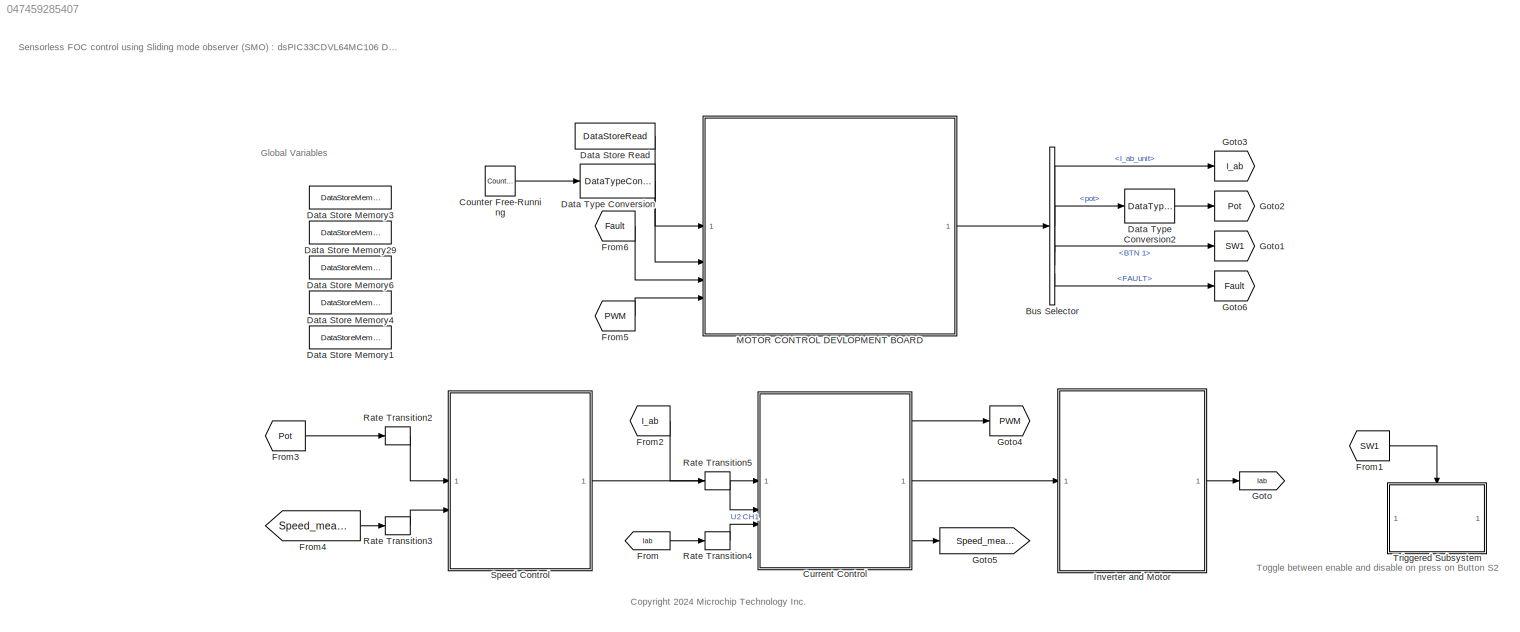
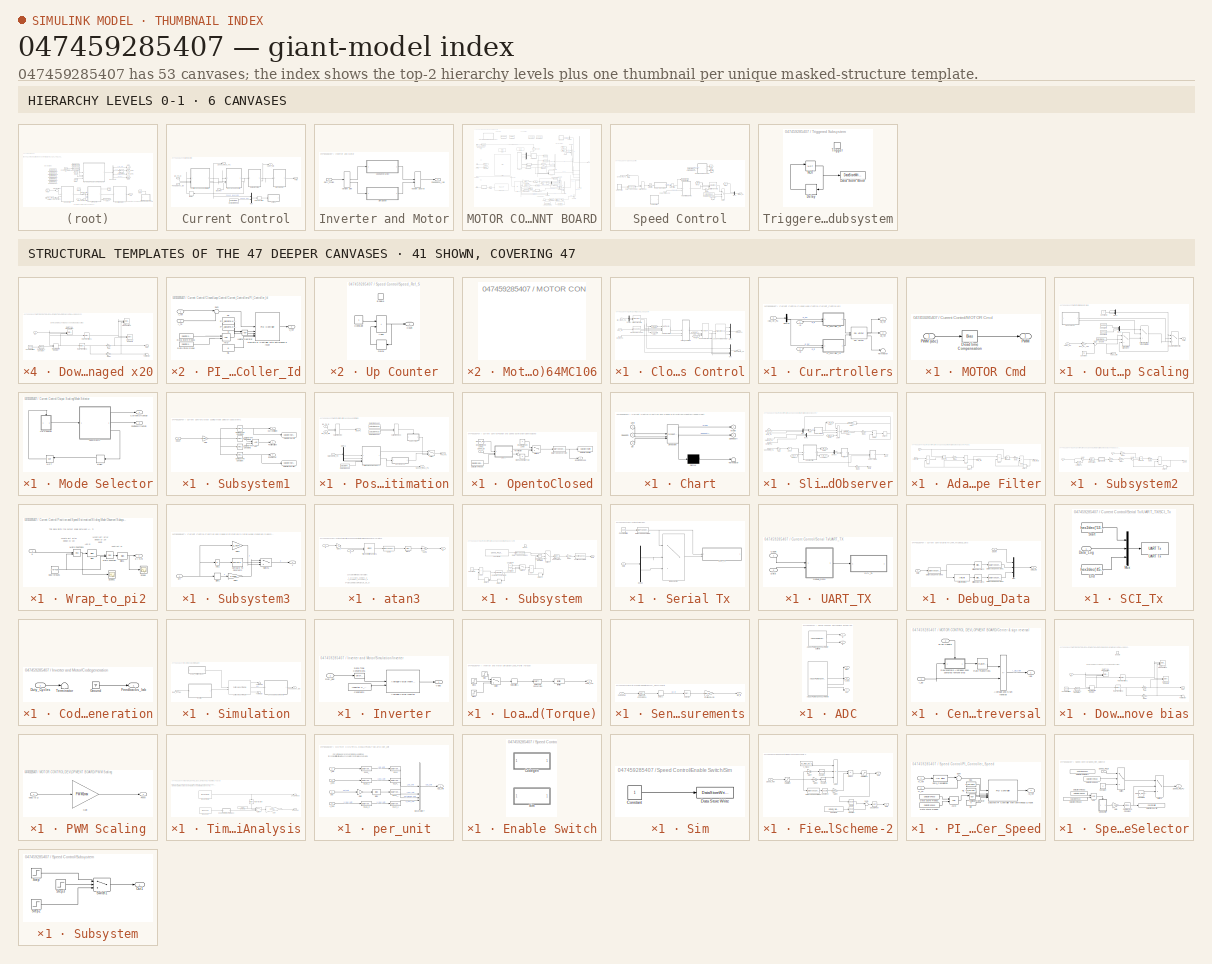
[diagram: thumbnail index - top-2 hierarchy levels (6 canvases) + 41 structural-template representatives of the remaining 47 canvases]
MODEL slx_047459285407
KIND model
CONFIG AbsTol = auto
CONFIG EnableMultiTasking = off
CONFIG FixedStep = .00005
CONFIG InitFcn = dsPIC33CDVL64MC106_SMO_data;
CONFIG MaxStep = auto
CONFIG MinStep = auto
CONFIG PostLoadFcn = dsPIC33CDVL64MC106_SMO_data;
CONFIG RelTol = 1e-3
CONFIG SampleTimeConstraint = Unconstrained
CONFIG SolverName = FixedStepDiscrete
CONFIG StartTime = 0.0
CONFIG StopTime = 15
BLOCK [BusSelector] Bus Selector
  OutputSignals = ADC_unit.I_ab_unit,ADC.pot,BTN.BTN 1,Board specific.FAULT
BLOCK [Reference] Counter Free-Running  REF=simulink/Sources/Counter
Free-Running
  SourceBlock = simulink/Sources/Counter\nFree-Running
  SourceType = Counter Free-Running
BLOCK [SubSystem] Current Control
BLOCK [SubSystem] Current Control/Closed Loop Control
BLOCK [Reference] Current Control/Closed Loop Control/Clarke Transform  REF=mcbcontrolslib/Clarke Transform
  SourceBlock = mcbcontrolslib/Clarke Transform
  SourceType = Clarke Transform
BLOCK [SubSystem] Current Control/Closed Loop Control/Current_Controllers
BLOCK [Reference] Current Control/Closed Loop Control/Current_Controllers/DQ Limiter  REF=mcbcontrolslib/DQ Limiter
  SourceBlock = mcbcontrolslib/DQ Limiter
  SourceType = DQ Limiter
BLOCK [Demux] Current Control/Closed Loop Control/Current_Controllers/Demux
  Outputs = 2
BLOCK [Inport] Current Control/Closed Loop Control/Current_Controllers/Id
BLOCK [Inport] Current Control/Closed Loop Control/Current_Controllers/Idq_ref_PU
  Port = 3
BLOCK [Inport] Current Control/Closed Loop Control/Current_Controllers/Iq
  Port = 2
BLOCK [SubSystem] Current Control/Closed Loop Control/Current_Controllers/PI_Controller_Id
  NameLocation = top
BLOCK [Logic] Current Control/Closed Loop Control/Current_Controllers/PI_Controller_Id/AND
  AllPortsSameDT = off
  IconShape = distinctive
  OutDataTypeStr = boolean
BLOCK [DataStoreRead] Current Control/Closed Loop Control/Current_Controllers/PI_Controller_Id/Data Store Read
  DataStoreName = Enable
  IndexOptions = Index vector (dialog)
  Indices = 1
  OutputSizes = 1
BLOCK [DataStoreRead] Current Control/Closed Loop Control/Current_Controllers/PI_Controller_Id/Data Store Read1
  DataStoreName = EnableFOC
  IndexOptions = Index vector (dialog)
  Indices = 1
  OutputSizes = 1
BLOCK [Reference] Current Control/Closed Loop Control/Current_Controllers/PI_Controller_Id/Discrete PI Controller with anti-windup & reset  REF=slpidlib/PID Controller
  SourceBlock = slpidlib/PID Controller
  SourceType = PID 1dof
BLOCK [Inport] Current Control/Closed Loop Control/Current_Controllers/PI_Controller_Id/I_fb
  Port = 2
BLOCK [Inport] Current Control/Closed Loop Control/Current_Controllers/PI_Controller_Id/I_ref
BLOCK [Constant] Current Control/Closed Loop Control/Current_Controllers/PI_Controller_Id/Ki
  OutDataTypeStr = dataType
  SampleTime = -1
  Value = PI_params.Ki_i*Ts/2
BLOCK [Constant] Current Control/Closed Loop Control/Current_Controllers/PI_Controller_Id/Ki1
  NameLocation = top
  OutDataTypeStr = dataType
  SampleTime = -1
  Value = 0
BLOCK [Constant] Current Control/Closed Loop Control/Current_Controllers/PI_Controller_Id/Kp
  NameLocation = top
  OutDataTypeStr = dataType2
  SampleTime = -1
  Value = PI_params.Kp_i/2
BLOCK [Logic] Current Control/Closed Loop Control/Current_Controllers/PI_Controller_Id/Logical Operator
  AllPortsSameDT = off
  IconShape = distinctive
  Operator = NOT
  OutDataTypeStr = boolean
BLOCK [Sum] Current Control/Closed Loop Control/Current_Controllers/PI_Controller_Id/Sum
  AccumDataTypeStr = Inherit: Same as first input
  Inputs = |+-
  OutDataTypeStr = Inherit: Same as first input
BLOCK [Outport] Current Control/Closed Loop Control/Current_Controllers/PI_Controller_Id/V_ref
  VectorParamsAs1DForOutWhenUnconnected = off
BLOCK [SubSystem] Current Control/Closed Loop Control/Current_Controllers/PI_Controller_Iq
  NameLocation = top
BLOCK [Logic] Current Control/Closed Loop Control/Current_Controllers/PI_Controller_Iq/AND
  AllPortsSameDT = off
  IconShape = distinctive
  OutDataTypeStr = boolean
BLOCK [DataStoreRead] Current Control/Closed Loop Control/Current_Controllers/PI_Controller_Iq/Data Store Read
  DataStoreName = Enable
  IndexOptions = Index vector (dialog)
  Indices = 1
  OutputSizes = 1
BLOCK [DataStoreRead] Current Control/Closed Loop Control/Current_Controllers/PI_Controller_Iq/Data Store Read1
  DataStoreName = EnableFOC
  IndexOptions = Index vector (dialog)
  Indices = 1
  OutputSizes = 1
BLOCK [Reference] Current Control/Closed Loop Control/Current_Controllers/PI_Controller_Iq/Discrete PI Controller with anti-windup & reset  REF=slpidlib/PID Controller
  SourceBlock = slpidlib/PID Controller
  SourceType = PID 1dof
BLOCK [Inport] Current Control/Closed Loop Control/Current_Controllers/PI_Controller_Iq/I_fb
  Port = 2
BLOCK [Inport] Current Control/Closed Loop Control/Current_Controllers/PI_Controller_Iq/I_ref
BLOCK [Constant] Current Control/Closed Loop Control/Current_Controllers/PI_Controller_Iq/Ki
  OutDataTypeStr = dataType
  SampleTime = -1
  Value = PI_params.Ki_i*Ts/2
BLOCK [Constant] Current Control/Closed Loop Control/Current_Controllers/PI_Controller_Iq/Kp
  NameLocation = top
  OutDataTypeStr = dataType2
  SampleTime = -1
  Value = PI_params.Kp_i/2
BLOCK [Constant] Current Control/Closed Loop Control/Current_Controllers/PI_Controller_Iq/Kp1
  NameLocation = top
  OutDataTypeStr = dataType
  SampleTime = -1
  Value = 0
BLOCK [Logic] Current Control/Closed Loop Control/Current_Controllers/PI_Controller_Iq/Logical Operator
  AllPortsSameDT = off
  IconShape = distinctive
  Operator = NOT
  OutDataTypeStr = boolean
BLOCK [Sum] Current Control/Closed Loop Control/Current_Controllers/PI_Controller_Iq/Sum
  AccumDataTypeStr = Inherit: Same as first input
  Inputs = |+-
  OutDataTypeStr = Inherit: Same as first input
BLOCK [Outport] Current Control/Closed Loop Control/Current_Controllers/PI_Controller_Iq/V_ref
  VectorParamsAs1DForOutWhenUnconnected = off
BLOCK [Terminator] Current Control/Closed Loop Control/Current_Controllers/Terminator
BLOCK [Outport] Current Control/Closed Loop Control/Current_Controllers/Vd_ref
  VectorParamsAs1DForOutWhenUnconnected = off
BLOCK [Outport] Current Control/Closed Loop Control/Current_Controllers/Vq_ref
  Port = 2
  VectorParamsAs1DForOutWhenUnconnected = off
BLOCK [Demux] Current Control/Closed Loop Control/Demux
  Outputs = 2
BLOCK [From] Current Control/Closed Loop Control/From
  GotoTag = sinTheta
BLOCK [From] Current Control/Closed Loop Control/From1
  GotoTag = cosTheta
BLOCK [Goto] Current Control/Closed Loop Control/Goto
  GotoTag = sinTheta
BLOCK [Goto] Current Control/Closed Loop Control/Goto1
  GotoTag = cosTheta
BLOCK [Inport] Current Control/Closed Loop Control/Iab_meas_PU
BLOCK [Inport] Current Control/Closed Loop Control/Idq_ref_PU
  Port = 3
BLOCK [Reference] Current Control/Closed Loop Control/Inverse Park Transform  REF=mcbcontrolslib/Inverse Park Transform
  SourceBlock = mcbcontrolslib/Inverse Park Transform
  SourceType = Inverse Park Transform
BLOCK [Mux] Current Control/Closed Loop Control/Mux
  DisplayOption = bar
BLOCK [Mux] Current Control/Closed Loop Control/Mux1
  DisplayOption = bar
  Inputs = 3
BLOCK [Reference] Current Control/Closed Loop Control/Park Transform  REF=mcbcontrolslib/Park Transform
  SourceBlock = mcbcontrolslib/Park Transform
  SourceType = Park Transform
BLOCK [Inport] Current Control/Closed Loop Control/Pos_PU
  Port = 2
BLOCK [Reference] Current Control/Closed Loop Control/Sine-Cosine Lookup  REF=mcbcontrolslib/Sine-Cosine Lookup
  SourceBlock = mcbcontrolslib/Sine-Cosine Lookup
  SourceType = Sine-Cosine Lookup
BLOCK [Reference] Current Control/Closed Loop Control/Space Vector Generator  REF=mcbcontrolslib/PWM Reference Generator
  SourceBlock = mcbcontrolslib/PWM Reference Generator
  SourceType = PWM Modulation
BLOCK [Outport] Current Control/Closed Loop Control/VIalphabeta_Fb
  Port = 2
BLOCK [Outport] Current Control/Closed Loop Control/Vabc in PU
  VectorParamsAs1DForOutWhenUnconnected = off
BLOCK [DataStoreRead] Current Control/Data Store Read
  DataStoreName = SpeedRef
  IndexOptions = Index vector (dialog)
  Indices = 1
  OutputSizes = 1
BLOCK [Delay] Current Control/Delay
  DelayLength = 1
  InputPortMap = u0
  NameLocation = top
BLOCK [Inport] Current Control/Feedbacks_Iab
  Port = 3
BLOCK [Inport] Current Control/Iab_PU_In
BLOCK [Inport] Current Control/Idq_Ref
  Port = 2
BLOCK [SubSystem] Current Control/MOTOR Cmd
BLOCK [Bias] Current Control/MOTOR Cmd/Dead time Compensation
  Bias = round( (inverter.deadtime/5e-5) )
  SaturateOnIntegerOverflow = off
BLOCK [Outport] Current Control/MOTOR Cmd/PWM
BLOCK [Inport] Current Control/MOTOR Cmd/PWM (abc)
BLOCK [Mux] Current Control/Mux
  DisplayOption = bar
  Inputs = 2
BLOCK [SubSystem] Current Control/Output Scaling
BLOCK [Constant] Current Control/Output Scaling/Constant
  OutDataTypeStr = dataType
  SampleTime = -1
  Value = 0.5
BLOCK [Constant] Current Control/Output Scaling/Constant2
  OutDataTypeStr = Inherit: Inherit via back propagation
  Value = 0
BLOCK [Constant] Current Control/Output Scaling/Constant3
  OutDataTypeStr = Inherit: Inherit via back propagation
  Value = 0.27415
BLOCK [Constant] Current Control/Output Scaling/Constant4
  OutDataTypeStr = Inherit: Inherit via back propagation
  Value = 0.42551
BLOCK [DataStoreRead] Current Control/Output Scaling/Enable
  DataStoreName = Enable
  IndexOptions = Index vector (dialog)
  Indices = 1
  OutputSizes = 1
BLOCK [Switch] Current Control/Output Scaling/Enable motor control
  Criteria = u2 ~= 0
  InputSameDT = off
  SaturateOnIntegerOverflow = off
  Threshold = 250
BLOCK [SubSystem] Current Control/Output Scaling/Mode Selector
BLOCK [Outport] Current Control/Output Scaling/Mode Selector/CurrentOffsetEn
BLOCK [Delay] Current Control/Output Scaling/Mode Selector/Delay
  DelayLength = 1
  InputPortMap = u0
BLOCK [Logic] Current Control/Output Scaling/Mode Selector/NOT
  AllPortsSameDT = off
  IconShape = distinctive
  Operator = NOT
  OutDataTypeStr = boolean
BLOCK [Outport] Current Control/Output Scaling/Mode Selector/PositionOffsetEn
  Port = 2
BLOCK [SubSystem] Current Control/Output Scaling/Mode Selector/Subsystem1
BLOCK [Logic] Current Control/Output Scaling/Mode Selector/Subsystem1/AND
  AllPortsSameDT = off
  IconShape = distinctive
  OutDataTypeStr = boolean
BLOCK [Reference] Current Control/Output Scaling/Mode Selector/Subsystem1/Compare To Constant  REF=simulink/Logic and Bit
Operations/Compare
To Constant
  SourceBlock = simulink/Logic and Bit\nOperations/Compare\nTo Constant
  SourceType = Compare To Constant
BLOCK [Reference] Current Control/Output Scaling/Mode Selector/Subsystem1/Compare To Constant1  REF=simulink/Logic and Bit
Operations/Compare
To Constant
  SourceBlock = simulink/Logic and Bit\nOperations/Compare\nTo Constant
  SourceType = Compare To Constant
BLOCK [Reference] Current Control/Output Scaling/Mode Selector/Subsystem1/Compare To Constant2  REF=simulink/Logic and Bit
Operations/Compare
To Constant
  SourceBlock = simulink/Logic and Bit\nOperations/Compare\nTo Constant
  SourceType = Compare To Constant
BLOCK [Reference] Current Control/Output Scaling/Mode Selector/Subsystem1/Compare To Constant3  REF=simulink/Logic and Bit
Operations/Compare
To Constant
  SourceBlock = simulink/Logic and Bit\nOperations/Compare\nTo Constant
  SourceType = Compare To Constant
BLOCK [Inport] Current Control/Output Scaling/Mode Selector/Subsystem1/Count
BLOCK [Outport] Current Control/Output Scaling/Mode Selector/Subsystem1/Current Offset
BLOCK [DataStoreWrite] Current Control/Output Scaling/Mode Selector/Subsystem1/Data Store Write
  DataStoreName = EnCurOffset
  IndexOptions = Index vector (dialog)
  Indices = 1
  OutputSizes = 1
BLOCK [DataStoreWrite] Current Control/Output Scaling/Mode Selector/Subsystem1/Data Store Write1
  DataStoreName = EnableFOC
  IndexOptions = Index vector (dialog)
  Indices = 1
  OutputSizes = 1
BLOCK [Outport] Current Control/Output Scaling/Mode Selector/Subsystem1/EnableFOC
  Port = 3
BLOCK [Gain] Current Control/Output Scaling/Mode Selector/Subsystem1/Gain
  Gain = 1/PWM_frequency
  OutDataTypeStr = dataType2
  RndMeth = Simplest
BLOCK [Outport] Current Control/Output Scaling/Mode Selector/Subsystem1/PositionOffset
  Port = 2
BLOCK [SubSystem] Current Control/Output Scaling/Mode Selector/Up Counter
BLOCK [Sum] Current Control/Output Scaling/Mode Selector/Up Counter/Add1
  IconShape = rectangular
  SaturateOnIntegerOverflow = on
BLOCK [Constant] Current Control/Output Scaling/Mode Selector/Up Counter/Constant
  OutDataTypeStr = uint32
BLOCK [Outport] Current Control/Output Scaling/Mode Selector/Up Counter/Count
  InitialOutput = 0
BLOCK [Delay] Current Control/Output Scaling/Mode Selector/Up Counter/Delay
  DelayLength = 1
  InputPortMap = u0
BLOCK [EnablePort] Current Control/Output Scaling/Mode Selector/Up Counter/Enable
  StatesWhenEnabling = reset
BLOCK [Mux] Current Control/Output Scaling/Mux1
  DisplayOption = bar
  Inputs = 3
BLOCK [Mux] Current Control/Output Scaling/Mux2
  DisplayOption = bar
  Inputs = 3
BLOCK [Gain] Current Control/Output Scaling/One_by_Two
  Gain = 0.5
  OutDataTypeStr = Inherit: Same as input
  RndMeth = Simplest
BLOCK [Outport] Current Control/Output Scaling/PWM
BLOCK [Sum] Current Control/Output Scaling/Sum
  AccumDataTypeStr = Inherit: Same as first input
  Inputs = |++
BLOCK [Switch] Current Control/Output Scaling/Switch for Current offset calibration
  Criteria = u2 ~= 0
  InputSameDT = off
  SaturateOnIntegerOverflow = off
  Threshold = 250
BLOCK [Switch] Current Control/Output Scaling/Switch for rotor alignment
  Criteria = u2 ~= 0
  InputSameDT = off
  SaturateOnIntegerOverflow = off
  Threshold = 250
BLOCK [Inport] Current Control/Output Scaling/Vabc_PU
BLOCK [Outport] Current Control/Output Scaling/Vabc_Sim
  Port = 2
BLOCK [Outport] Current Control/PWM
BLOCK [SubSystem] Current Control/Position and Speed Estimation
BLOCK [DataStoreRead] Current Control/Position and Speed Estimation/Data Store Read
  DataStoreName = SpeedRef
  IndexOptions = Index vector (dialog)
  Indices = 1
  OutputSizes = 1
BLOCK [DataStoreRead] Current Control/Position and Speed Estimation/Data Store Read1
  DataStoreName = EnableFOC
  IndexOptions = Index vector (dialog)
  Indices = 1
  OutputSizes = 1
BLOCK [DataStoreRead] Current Control/Position and Speed Estimation/Data Store Read2
  DataStoreName = Enable
  IndexOptions = Index vector (dialog)
  Indices = 1
  OutputSizes = 1
BLOCK [Demux] Current Control/Position and Speed Estimation/Demux
BLOCK [Outport] Current Control/Position and Speed Estimation/Iab_PU
  Port = 3
BLOCK [Inport] Current Control/Position and Speed Estimation/Iab_PU_In
  Port = 2
BLOCK [Inport] Current Control/Position and Speed Estimation/Iab_PU_Sim
  Port = 3
BLOCK [SubSystem] Current Control/Position and Speed Estimation/OpentoClosed
BLOCK [SubSystem] Current Control/Position and Speed Estimation/OpentoClosed/Chart
  ErrorFcn = Stateflow.Translate.translate
  PermitHierarchicalResolution = ExplicitOnly
  SFBlockType = Chart
  TreatAsAtomicUnit = on
BLOCK [Demux] Current Control/Position and Speed Estimation/OpentoClosed/Chart/ Demux 
  Outputs = 1
BLOCK [S-Function] Current Control/Position and Speed Estimation/OpentoClosed/Chart/ SFunction 
  EnableBusSupport = on
  FunctionName = sf_sfun
  PortCounts = [3 3]
  SFcnIsStateOwnerBlock = off
  SFunctionDeploymentMode = off
  Tag = Stateflow S-Function 1
BLOCK [Terminator] Current Control/Position and Speed Estimation/OpentoClosed/Chart/ Terminator 
BLOCK [Inport] Current Control/Position and Speed Estimation/OpentoClosed/Chart/En
  Port = 3
BLOCK [Inport] Current Control/Position and Speed Estimation/OpentoClosed/Chart/Limit
BLOCK [Outport] Current Control/Position and Speed Estimation/OpentoClosed/Chart/Mode
BLOCK [Outport] Current Control/Position and Speed Estimation/OpentoClosed/Chart/SpeedCtrl
  Port = 2
BLOCK [Inport] Current Control/Position and Speed Estimation/OpentoClosed/Chart/SpeedFb
  Port = 2
BLOCK [DataStoreRead] Current Control/Position and Speed Estimation/OpentoClosed/Data Store Read5
  DataStoreName = Enable
  IndexOptions = Index vector (dialog)
  Indices = 1
  OutputSizes = 1
BLOCK [DataStoreWrite] Current Control/Position and Speed Estimation/OpentoClosed/Data Store Write2
  DataStoreName = EnableClosedLoop
  IndexOptions = Index vector (dialog)
  Indices = 1
  OutputSizes = 1
BLOCK [DataTypeConversion] Current Control/Position and Speed Estimation/OpentoClosed/Data Type Conversion
  OutDataTypeStr = boolean
  RndMeth = Simplest
  SaturateOnIntegerOverflow = off
BLOCK [Outport] Current Control/Position and Speed Estimation/OpentoClosed/EnClosedLoop
BLOCK [Constant] Current Control/Position and Speed Estimation/OpentoClosed/Enable Closed Loop
  OutDataTypeStr = uint16
BLOCK [Constant] Current Control/Position and Speed Estimation/OpentoClosed/Enable Closed Loop1
  OutDataTypeStr = dataType
  Value = (Speed_Ref_openLoop/PU_System.N_base)*0.85
BLOCK [Constant] Current Control/Position and Speed Estimation/OpentoClosed/Open Loop Start-up
  OutDataTypeStr = uint16
  Value = 0
BLOCK [Inport] Current Control/Position and Speed Estimation/OpentoClosed/Speed_fb
BLOCK [Switch] Current Control/Position and Speed Estimation/OpentoClosed/Switch2
  Criteria = u2 > Threshold
  InputSameDT = off
  SaturateOnIntegerOverflow = off
  Threshold = 1
BLOCK [Terminator] Current Control/Position and Speed Estimation/OpentoClosed/Terminator
BLOCK [Outport] Current Control/Position and Speed Estimation/Pos_PU
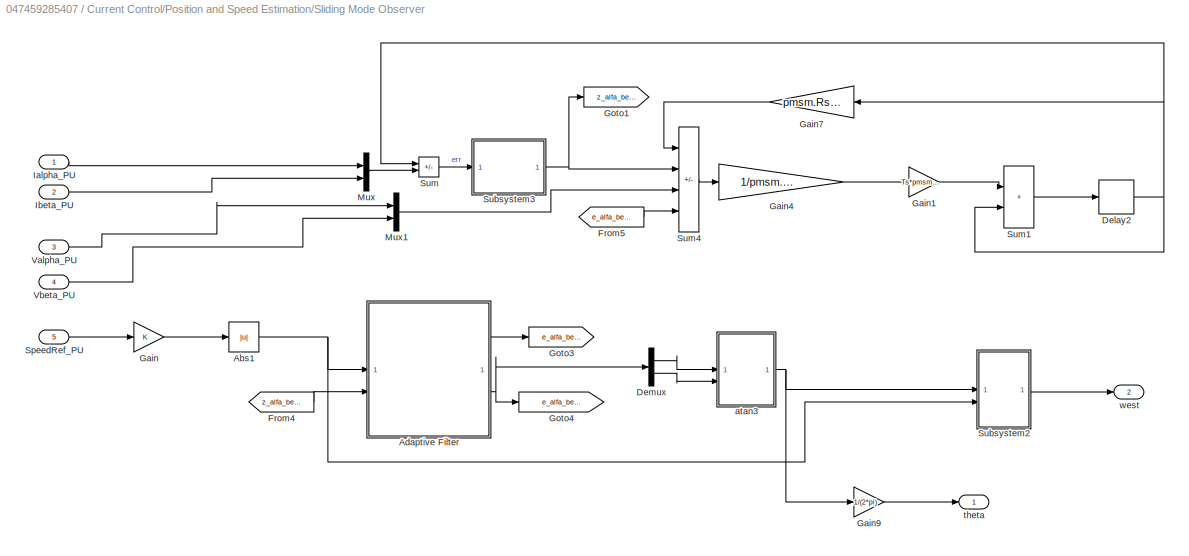
BLOCK [SubSystem] Current Control/Position and Speed Estimation/Sliding Mode Observer
BLOCK [Abs] Current Control/Position and Speed Estimation/Sliding Mode Observer/Abs1
  SaturateOnIntegerOverflow = off
BLOCK [SubSystem] Current Control/Position and Speed Estimation/Sliding Mode Observer/Adaptive Filter
BLOCK [Sum] Current Control/Position and Speed Estimation/Sliding Mode Observer/Adaptive Filter/Add
  AccumDataTypeStr = Inherit: Same as first input
  IconShape = rectangular
  OutDataTypeStr = Inherit: Same as first input
BLOCK [Sum] Current Control/Position and Speed Estimation/Sliding Mode Observer/Adaptive Filter/Add1
  AccumDataTypeStr = Inherit: Same as first input
  IconShape = rectangular
  Inputs = +-
  OutDataTypeStr = Inherit: Same as first input
BLOCK [Sum] Current Control/Position and Speed Estimation/Sliding Mode Observer/Adaptive Filter/Add2
  AccumDataTypeStr = Inherit: Same as first input
  IconShape = rectangular
  Inputs = +-
  OutDataTypeStr = Inherit: Same as first input
BLOCK [Sum] Current Control/Position and Speed Estimation/Sliding Mode Observer/Adaptive Filter/Add3
  AccumDataTypeStr = Inherit: Same as first input
  IconShape = rectangular
  OutDataTypeStr = Inherit: Same as first input
BLOCK [Delay] Current Control/Position and Speed Estimation/Sliding Mode Observer/Adaptive Filter/Delay1
  DelayLength = 1
  InputPortMap = u0
  NameLocation = top
BLOCK [Delay] Current Control/Position and Speed Estimation/Sliding Mode Observer/Adaptive Filter/Delay2
  DelayLength = 1
  InputPortMap = u0
  NameLocation = top
BLOCK [Gain] Current Control/Position and Speed Estimation/Sliding Mode Observer/Adaptive Filter/Gain1
  Gain = Ts*pmsm.w_base_elec
  OutDataTypeStr = fixdt(1,16,12)
BLOCK [Gain] Current Control/Position and Speed Estimation/Sliding Mode Observer/Adaptive Filter/Gain2
  Gain = Ts*pmsm.w_base_elec
  OutDataTypeStr = fixdt(1,16,12)
BLOCK [Product] Current Control/Position and Speed Estimation/Sliding Mode Observer/Adaptive Filter/Product1
  OutDataTypeStr = fixdt(1,16,8)
BLOCK [Product] Current Control/Position and Speed Estimation/Sliding Mode Observer/Adaptive Filter/Product2
  OutDataTypeStr = fixdt(1,16,8)
BLOCK [Outport] Current Control/Position and Speed Estimation/Sliding Mode Observer/Adaptive Filter/ealfa_bita
  NameLocation = top
  VectorParamsAs1DForOutWhenUnconnected = off
BLOCK [Outport] Current Control/Position and Speed Estimation/Sliding Mode Observer/Adaptive Filter/ealfa_bita_fil
  NameLocation = top
  Port = 2
  VectorParamsAs1DForOutWhenUnconnected = off
BLOCK [Inport] Current Control/Position and Speed Estimation/Sliding Mode Observer/Adaptive Filter/wc
BLOCK [Inport] Current Control/Position and Speed Estimation/Sliding Mode Observer/Adaptive Filter/zalfa_bita
  Port = 2
BLOCK [Delay] Current Control/Position and Speed Estimation/Sliding Mode Observer/Delay2
  DelayLength = 1
  InputPortMap = u0
BLOCK [Demux] Current Control/Position and Speed Estimation/Sliding Mode Observer/Demux
  Outputs = 2
BLOCK [From] Current Control/Position and Speed Estimation/Sliding Mode Observer/From4
  GotoTag = z_alfa_beta
BLOCK [From] Current Control/Position and Speed Estimation/Sliding Mode Observer/From5
  GotoTag = e_alfa_beta
BLOCK [Gain] Current Control/Position and Speed Estimation/Sliding Mode Observer/Gain
  OutDataTypeStr = Inherit: Same as input
BLOCK [Gain] Current Control/Position and Speed Estimation/Sliding Mode Observer/Gain1
  Gain = Ts*pmsm.w_base_elec
  OutDataTypeStr = fixdt(1,16,14)
BLOCK [Gain] Current Control/Position and Speed Estimation/Sliding Mode Observer/Gain4
  Gain = 1/pmsm.Lav_pu
  OutDataTypeStr = fixdt(1,32,16)
  RndMeth = Round
BLOCK [Gain] Current Control/Position and Speed Estimation/Sliding Mode Observer/Gain7
  Gain = pmsm.Rs_pu
  OutDataTypeStr = Inherit: Same as input
BLOCK [Gain] Current Control/Position and Speed Estimation/Sliding Mode Observer/Gain9
  Gain = 1/(2*pi)
  OutDataTypeStr = dataType
BLOCK [Goto] Current Control/Position and Speed Estimation/Sliding Mode Observer/Goto1
  GotoTag = z_alfa_beta
BLOCK [Goto] Current Control/Position and Speed Estimation/Sliding Mode Observer/Goto3
  GotoTag = e_alfa_beta
BLOCK [Goto] Current Control/Position and Speed Estimation/Sliding Mode Observer/Goto4
  GotoTag = e_alfa_bet_fil
BLOCK [Inport] Current Control/Position and Speed Estimation/Sliding Mode Observer/Ialpha_PU
  NameLocation = top
BLOCK [Inport] Current Control/Position and Speed Estimation/Sliding Mode Observer/Ibeta_PU
  NameLocation = top
  Port = 2
BLOCK [Mux] Current Control/Position and Speed Estimation/Sliding Mode Observer/Mux
  DisplayOption = bar
  Inputs = 2
BLOCK [Mux] Current Control/Position and Speed Estimation/Sliding Mode Observer/Mux1
  DisplayOption = bar
  Inputs = 2
BLOCK [Inport] Current Control/Position and Speed Estimation/Sliding Mode Observer/SpeedRef_PU
  NameLocation = top
  Port = 5
BLOCK [SubSystem] Current Control/Position and Speed Estimation/Sliding Mode Observer/Subsystem2
BLOCK [Sum] Current Control/Position and Speed Estimation/Sliding Mode Observer/Subsystem2/Add
  AccumDataTypeStr = Inherit: Same as first input
  IconShape = rectangular
  OutDataTypeStr = Inherit: Same as first input
BLOCK [DataTypeConversion] Current Control/Position and Speed Estimation/Sliding Mode Observer/Subsystem2/Data Type Conversion
  ConvertRealWorld = Stored Integer (SI)
  OutDataTypeStr = int16
  RndMeth = Floor
  SaturateOnIntegerOverflow = off
BLOCK [Delay] Current Control/Position and Speed Estimation/Sliding Mode Observer/Subsystem2/Delay2
  DelayLength = 1
  InputPortMap = u0
  NameLocation = top
BLOCK [Gain] Current Control/Position and Speed Estimation/Sliding Mode Observer/Subsystem2/Gain1
  Gain = 1/(Ts*pmsm.w_base_elec)
  OutDataTypeStr = fixdt(1,16,12)
BLOCK [Gain] Current Control/Position and Speed Estimation/Sliding Mode Observer/Subsystem2/Gain2
  Gain = 0.09
  OutDataTypeStr = fixdt(1,16,12)
BLOCK [Gain] Current Control/Position and Speed Estimation/Sliding Mode Observer/Subsystem2/Gain3
  Gain = 1/2^12
  OutDataTypeStr = fixdt(1,16,12)
BLOCK [Gain] Current Control/Position and Speed Estimation/Sliding Mode Observer/Subsystem2/Gain5
  Gain = Ts*pmsm.w_base_elec
  OutDataTypeStr = fixdt(1,16,14)
BLOCK [Product] Current Control/Position and Speed Estimation/Sliding Mode Observer/Subsystem2/Product1
  OutDataTypeStr = fixdt(1,32,22)
BLOCK [Sum] Current Control/Position and Speed Estimation/Sliding Mode Observer/Subsystem2/Sum2
  AccumDataTypeStr = fixdt(1,16,12)
  Inputs = |+-
  NameLocation = top
  OutDataTypeStr = fixdt(1,16,12)
BLOCK [Sum] Current Control/Position and Speed Estimation/Sliding Mode Observer/Subsystem2/Sum4
  AccumDataTypeStr = Inherit: Same as first input
  Inputs = |+-
  OutDataTypeStr = Inherit: Same as first input
BLOCK [UnitDelay] Current Control/Position and Speed Estimation/Sliding Mode Observer/Subsystem2/Unit Delay3
  HasFrameUpgradeWarning = on
  SampleTime = Ts
BLOCK [SubSystem] Current Control/Position and Speed Estimation/Sliding Mode Observer/Subsystem2/Wrap_to_pi2
  VariantControl = VSS_STD
BLOCK [Bias] Current Control/Position and Speed Estimation/Sliding Mode Observer/Subsystem2/Wrap_to_pi2/Bias
  Bias = pi*4096
  SaturateOnIntegerOverflow = off
BLOCK [Bias] Current Control/Position and Speed Estimation/Sliding Mode Observer/Subsystem2/Wrap_to_pi2/Bias1
  Bias = -pi*4096
  SaturateOnIntegerOverflow = off
BLOCK [Math] Current Control/Position and Speed Estimation/Sliding Mode Observer/Subsystem2/Wrap_to_pi2/Math Function
  Operator = mod
  SignedPower = on
BLOCK [Math] Current Control/Position and Speed Estimation/Sliding Mode Observer/Subsystem2/Wrap_to_pi2/Math Function1
  Operator = mod
  SignedPower = on
BLOCK [Scope] Current Control/Position and Speed Estimation/Sliding Mode Observer/Subsystem2/Wrap_to_pi2/Scope
  Floating = off
  NumInputPorts = 1
  ScopeSpecificationString = Simulink.scopes.TimeScopeBlockCfg('CurrentConfiguration', extmgr.ConfigurationSet(extmgr.Configuration('Core','General UI',true),extmgr.Configuration('Core','Source UI',true),extmgr.Configuration('Sources','WiredSimulink',true,'DataLoggingVariableName','ScopeData6'),extmgr.Configuration('Visuals','Time Domain',true,'SerializedDisplays',{struct('MinYLimReal','-490.7125','MaxYLimReal','331.5625','YL...<+1416ch>
BLOCK [Scope] Current Control/Position and Speed Estimation/Sliding Mode Observer/Subsystem2/Wrap_to_pi2/Scope1
  Floating = off
  NumInputPorts = 1
  ScopeSpecificationString = Simulink.scopes.TimeScopeBlockCfg('CurrentConfiguration', extmgr.ConfigurationSet(extmgr.Configuration('Core','General UI',true),extmgr.Configuration('Core','Source UI',true),extmgr.Configuration('Sources','WiredSimulink',true,'DataLoggingVariableName','ScopeData7'),extmgr.Configuration('Visuals','Time Domain',true,'SerializedDisplays',{struct('MinYLimReal','-3215.375','MaxYLimReal','28938.375','Y...<+1431ch>
BLOCK [Constant] Current Control/Position and Speed Estimation/Sliding Mode Observer/Subsystem2/Wrap_to_pi2/load torque1
  OutDataTypeStr = int16
  SampleTime = Ts
  Value = 2*pi*4096
BLOCK [Inport] Current Control/Position and Speed Estimation/Sliding Mode Observer/Subsystem2/Wrap_to_pi2/θ
BLOCK [Outport] Current Control/Position and Speed Estimation/Sliding Mode Observer/Subsystem2/Wrap_to_pi2/θ (-π,π)
  VectorParamsAs1DForOutWhenUnconnected = off
BLOCK [Inport] Current Control/Position and Speed Estimation/Sliding Mode Observer/Subsystem2/w
  Port = 2
BLOCK [Inport] Current Control/Position and Speed Estimation/Sliding Mode Observer/Subsystem2/θ
BLOCK [Outport] Current Control/Position and Speed Estimation/Sliding Mode Observer/Subsystem2/ω_est
  VectorParamsAs1DForOutWhenUnconnected = off
BLOCK [SubSystem] Current Control/Position and Speed Estimation/Sliding Mode Observer/Subsystem3
BLOCK [Abs] Current Control/Position and Speed Estimation/Sliding Mode Observer/Subsystem3/Abs1
  SaturateOnIntegerOverflow = off
BLOCK [Reference] Current Control/Position and Speed Estimation/Sliding Mode Observer/Subsystem3/Compare To Constant2  REF=simulink/Logic and Bit
Operations/Compare
To Constant
  SourceBlock = simulink/Logic and Bit\nOperations/Compare\nTo Constant
  SourceType = Compare To Constant
BLOCK [Gain] Current Control/Position and Speed Estimation/Sliding Mode Observer/Subsystem3/Gain1
  Gain = 11.9074
  OutDataTypeStr = fixdt(1,16,12)
BLOCK [Gain] Current Control/Position and Speed Estimation/Sliding Mode Observer/Subsystem3/Gain7
  Gain = 0.6260
  OutDataTypeStr = fixdt(1,16,12)
BLOCK [Signum] Current Control/Position and Speed Estimation/Sliding Mode Observer/Subsystem3/Sign1
BLOCK [Switch] Current Control/Position and Speed Estimation/Sliding Mode Observer/Subsystem3/Switch1
  Criteria = u2 > Threshold
  InputSameDT = off
  OutDataTypeStr = fixdt(1,16,12)
  RndMeth = Round
  SaturateOnIntegerOverflow = off
BLOCK [Inport] Current Control/Position and Speed Estimation/Sliding Mode Observer/Subsystem3/err
BLOCK [Outport] Current Control/Position and Speed Estimation/Sliding Mode Observer/Subsystem3/z
BLOCK [Sum] Current Control/Position and Speed Estimation/Sliding Mode Observer/Sum
  AccumDataTypeStr = Inherit: Same as first input
  IconShape = rectangular
  Inputs = +-
  OutDataTypeStr = Inherit: Same as first input
BLOCK [Sum] Current Control/Position and Speed Estimation/Sliding Mode Observer/Sum1
  AccumDataTypeStr = fixdt(1,16,12)
  IconShape = rectangular
  OutDataTypeStr = fixdt(1,16,12)
BLOCK [Sum] Current Control/Position and Speed Estimation/Sliding Mode Observer/Sum4
  AccumDataTypeStr = fixdt(1,16,12)
  IconShape = rectangular
  Inputs = --+-
  OutDataTypeStr = fixdt(1,16,12)
BLOCK [Inport] Current Control/Position and Speed Estimation/Sliding Mode Observer/Valpha_PU
  NameLocation = top
  Port = 3
BLOCK [Inport] Current Control/Position and Speed Estimation/Sliding Mode Observer/Vbeta_PU
  NameLocation = top
  Port = 4
BLOCK [SubSystem] Current Control/Position and Speed Estimation/Sliding Mode Observer/atan3
BLOCK [Bias] Current Control/Position and Speed Estimation/Sliding Mode Observer/atan3/Bias3
  Bias = 1.244/(2*pi)
  SaturateOnIntegerOverflow = off
BLOCK [DataTypeConversion] Current Control/Position and Speed Estimation/Sliding Mode Observer/atan3/Cast2
  ConvertRealWorld = Stored Integer (SI)
  OutDataTypeStr = fixdt(0,16,16)
  RndMeth = Floor
  SaturateOnIntegerOverflow = off
BLOCK [Gain] Current Control/Position and Speed Estimation/Sliding Mode Observer/atan3/Gain3
  Gain = -1
  OutDataTypeStr = Inherit: Same as input
BLOCK [Gain] Current Control/Position and Speed Estimation/Sliding Mode Observer/atan3/Gain5
  Gain = 2*pi
  OutDataTypeStr = fixdt(1,16,12)
BLOCK [Trigonometry] Current Control/Position and Speed Estimation/Sliding Mode Observer/atan3/Trigonometric Function1
  AngleUnit = revolution
  ApproximationMethod = Lookup
  Operator = atan2
  TableDataTypeStr = fixdt(1,16,16)
BLOCK [Inport] Current Control/Position and Speed Estimation/Sliding Mode Observer/atan3/α
  NameLocation = top
BLOCK [Inport] Current Control/Position and Speed Estimation/Sliding Mode Observer/atan3/β
  NameLocation = top
  Port = 2
BLOCK [Outport] Current Control/Position and Speed Estimation/Sliding Mode Observer/atan3/θ
  VectorParamsAs1DForOutWhenUnconnected = off
BLOCK [Outport] Current Control/Position and Speed Estimation/Sliding Mode Observer/theta
  NameLocation = top
BLOCK [Outport] Current Control/Position and Speed Estimation/Sliding Mode Observer/west
  NameLocation = top
  Port = 2
BLOCK [Outport] Current Control/Position and Speed Estimation/Speed_meas_PU
  Port = 2
BLOCK [SubSystem] Current Control/Position and Speed Estimation/Subsystem
BLOCK [Sum] Current Control/Position and Speed Estimation/Subsystem/Add2
  IconShape = rectangular
  OutDataTypeStr = Inherit: Same as first input
  SaturateOnIntegerOverflow = on
BLOCK [Sum] Current Control/Position and Speed Estimation/Subsystem/Add4
  IconShape = rectangular
  OutDataTypeStr = Inherit: Same as first input
  SaturateOnIntegerOverflow = on
BLOCK [Reference] Current Control/Position and Speed Estimation/Subsystem/Compare To Constant2  REF=simulink/Logic and Bit
Operations/Compare
To Constant
  SourceBlock = simulink/Logic and Bit\nOperations/Compare\nTo Constant
  SourceType = Compare To Constant
BLOCK [Constant] Current Control/Position and Speed Estimation/Subsystem/Constant1
  OutDataTypeStr = uint16
BLOCK [Constant] Current Control/Position and Speed Estimation/Subsystem/Constant4
  OutDataTypeStr = uint16
  Value = 10
BLOCK [Constant] Current Control/Position and Speed Estimation/Subsystem/Constant7
  OutDataTypeStr = uint16
  Value = 0
BLOCK [Constant] Current Control/Position and Speed Estimation/Subsystem/Constant8
  OutDataTypeStr = fixdt(0,16,14)
  Value = Speed_Ref_openLoop/PU_System.N_base
BLOCK [DataTypeConversion] Current Control/Position and Speed Estimation/Subsystem/Data Type Conversion1
  ConvertRealWorld = Stored Integer (SI)
  OutDataTypeStr = uint16
  RndMeth = Floor
  SaturateOnIntegerOverflow = off
BLOCK [DataTypeConversion] Current Control/Position and Speed Estimation/Subsystem/Data Type Conversion3
  ConvertRealWorld = Stored Integer (SI)
  OutDataTypeStr = fixdt(1,16,14)
  RndMeth = Floor
  SaturateOnIntegerOverflow = off
BLOCK [Delay] Current Control/Position and Speed Estimation/Subsystem/Delay1
  DelayLength = 1
  ExternalReset = Rising
  InputPortMap = u0,r5
BLOCK [Delay] Current Control/Position and Speed Estimation/Subsystem/Delay5
  InitialCondition = 5
  InputPortMap = u0
BLOCK [Delay] Current Control/Position and Speed Estimation/Subsystem/Delay6
  DelayLength = 1
  InitialCondition = 5
  InputPortMap = u0
BLOCK [Gain] Current Control/Position and Speed Estimation/Subsystem/Gain1
  Gain = PU_System.N_base*(1/60)*pmsm.p*Ts
  OutDataTypeStr = fixdt(1,16,14)
BLOCK [Reference] Current Control/Position and Speed Estimation/Subsystem/Position Generator1  REF=mcbcontrolslib/Position Generator
  SourceBlock = mcbcontrolslib/Position Generator
  SourceType = Position Generator
BLOCK [RelationalOperator] Current Control/Position and Speed Estimation/Subsystem/Relational Operator1
  InputSameDT = off
  Operator = <=
  OutDataTypeStr = boolean
  RndMeth = Simplest
BLOCK [ResetPort] Current Control/Position and Speed Estimation/Subsystem/Reset
  DisableCoverage = on
BLOCK [Switch] Current Control/Position and Speed Estimation/Subsystem/Switch3
  Criteria = u2 > Threshold
  InputSameDT = off
  SaturateOnIntegerOverflow = off
BLOCK [Switch] Current Control/Position and Speed Estimation/Subsystem/Switch4
  Criteria = u2 > Threshold
  InputSameDT = off
  SaturateOnIntegerOverflow = off
BLOCK [Outport] Current Control/Position and Speed Estimation/Subsystem/theta
BLOCK [Switch] Current Control/Position and Speed Estimation/Switch
  Criteria = u2 > Threshold
  InputSameDT = off
  SaturateOnIntegerOverflow = off
BLOCK [Inport] Current Control/Position and Speed Estimation/VIalphabeta_Fb
BLOCK [VariantSource] Current Control/Position and Speed Estimation/Variant Source
BLOCK [VariantSource] Current Control/Position and Speed Estimation/Variant Source3
BLOCK [RateTransition] Current Control/Rate Transition
  Deterministic = off
  Integrity = off
  OutPortSampleTime = Ts*100
BLOCK [SubSystem] Current Control/Serial Tx
BLOCK [Reference] Current Control/Serial Tx/Counter Limited  REF=simulink/Sources/Counter
Limited
  SourceBlock = simulink/Sources/Counter\nLimited
  SourceType = Counter Limited
BLOCK [Inport] Current Control/Serial Tx/Data
BLOCK [DataTypeConversion] Current Control/Serial Tx/Data Type Conversion
  OutDataTypeStr = uint8
  RndMeth = Simplest
  SaturateOnIntegerOverflow = off
BLOCK [Demux] Current Control/Serial Tx/Demux
  Outputs = 2
BLOCK [MultiPortSwitch] Current Control/Serial Tx/Index Vector
  DataPortOrder = Zero-based contiguous
  DiagnosticForDefault = None
  InputSameDT = off
  Inputs = 2
  OutDataTypeStr = Inherit: Same as first data input
  RndMeth = Simplest
  SaturateOnIntegerOverflow = off
  zeroidx = on
BLOCK [SubSystem] Current Control/Serial Tx/UART_TX
BLOCK [Inport] Current Control/Serial Tx/UART_TX/Count
BLOCK [Inport] Current Control/Serial Tx/UART_TX/Data
  Port = 2
BLOCK [SubSystem] Current Control/Serial Tx/UART_TX/Debug_Data
BLOCK [Reference] Current Control/Serial Tx/UART_TX/Debug_Data/Bitwise Operator2  REF=simulink/Logic and Bit
Operations/Bitwise
Operator
  SourceBlock = simulink/Logic and Bit\nOperations/Bitwise\nOperator
  SourceType = Bitwise Operator
BLOCK [Reference] Current Control/Serial Tx/UART_TX/Debug_Data/Bitwise Operator3  REF=simulink/Logic and Bit
Operations/Bitwise
Operator
  SourceBlock = simulink/Logic and Bit\nOperations/Bitwise\nOperator
  SourceType = Bitwise Operator
BLOCK [Inport] Current Control/Serial Tx/UART_TX/Debug_Data/Count
BLOCK [Inport] Current Control/Serial Tx/UART_TX/Debug_Data/Data
  Port = 2
BLOCK [DataTypeConversion] Current Control/Serial Tx/UART_TX/Debug_Data/Data Type Conversion1
  OutDataTypeStr = uint8
  RndMeth = Simplest
  SaturateOnIntegerOverflow = off
BLOCK [DataTypeConversion] Current Control/Serial Tx/UART_TX/Debug_Data/Data Type Conversion2
  OutDataTypeStr = uint8
  RndMeth = Simplest
  SaturateOnIntegerOverflow = off
BLOCK [DataTypeConversion] Current Control/Serial Tx/UART_TX/Debug_Data/Data Type Conversion3
  ConvertRealWorld = Stored Integer (SI)
  OutDataTypeStr = uint16
  RndMeth = Simplest
  SaturateOnIntegerOverflow = off
BLOCK [Outport] Current Control/Serial Tx/UART_TX/Debug_Data/Data_log
BLOCK [Mux] Current Control/Serial Tx/UART_TX/Debug_Data/Mux
  DisplayOption = bar
  Inputs = 3
BLOCK [ArithShift] Current Control/Serial Tx/UART_TX/Debug_Data/Shift Arithmetic2
  BitShiftDirection = Right
  BitShiftNumber = 8
  InputPortMap = u0
BLOCK [SubSystem] Current Control/Serial Tx/UART_TX/SCI_Tx
BLOCK [Inport] Current Control/Serial Tx/UART_TX/SCI_Tx/Data_Log
BLOCK [Constant] Current Control/Serial Tx/UART_TX/SCI_Tx/End
  OutDataTypeStr = uint8
  Value = hex2dec('45')
BLOCK [Mux] Current Control/Serial Tx/UART_TX/SCI_Tx/Mux
  DisplayOption = bar
  Inputs = 3
BLOCK [Constant] Current Control/Serial Tx/UART_TX/SCI_Tx/Start
  OutDataTypeStr = uint8
  Value = hex2dec('53')
BLOCK [Reference] Current Control/Serial Tx/UART_TX/SCI_Tx/UART Tx  REF=MCHP_Blockset/BUS UART/UART Tx
  SourceBlock = MCHP_Blockset/BUS UART/UART Tx
  SourceProductName = MPLAB Device Blocks for Simulink
  SourceType = UART Tx Output Driver
BLOCK [Outport] Current Control/Speed_meas_PU
  Port = 3
BLOCK [Outport] Current Control/Vabc_Sim
  Port = 2
BLOCK [DataStoreMemory] Data Store Memory1
  DataStoreName = EnCurOffset
  OutDataTypeStr = boolean
  ShowAdditionalParam = off
BLOCK [DataStoreMemory] Data Store Memory29
  DataStoreName = EnableFOC
  OutDataTypeStr = boolean
  ShowAdditionalParam = off
BLOCK [DataStoreMemory] Data Store Memory3
  DataStoreName = Enable
  OutDataTypeStr = boolean
  ShowAdditionalParam = off
BLOCK [DataStoreMemory] Data Store Memory4
  DataStoreName = SpeedRef
  OutDataTypeStr = dataType
  ShowAdditionalParam = off
BLOCK [DataStoreMemory] Data Store Memory6
  DataStoreName = EnableClosedLoop
  OutDataTypeStr = boolean
  ShowAdditionalParam = off
BLOCK [DataStoreRead] Data Store Read
  DataStoreName = EnCurOffset
  IndexOptions = Index vector (dialog)
  Indices = 1
  OutputSizes = 1
BLOCK [DataTypeConversion] Data Type Conversion
  OutDataTypeStr = boolean
  RndMeth = Floor
  SaturateOnIntegerOverflow = off
BLOCK [DataTypeConversion] Data Type Conversion2
  OutDataTypeStr = dataType
  RndMeth = Simplest
  SaturateOnIntegerOverflow = off
BLOCK [From] From
  GotoTag = Iab
BLOCK [From] From1
  GotoTag = SW1
BLOCK [From] From2
  GotoTag = I_ab
BLOCK [From] From3
  GotoTag = Pot
BLOCK [From] From4
  GotoTag = Speed_measured
BLOCK [From] From5
  GotoTag = PWM
BLOCK [From] From6
  GotoTag = Fault
BLOCK [Goto] Goto
  GotoTag = Iab
BLOCK [Goto] Goto1
  GotoTag = SW1
BLOCK [Goto] Goto2
  GotoTag = Pot
BLOCK [Goto] Goto3
  GotoTag = I_ab
BLOCK [Goto] Goto4
  GotoTag = PWM
BLOCK [Goto] Goto5
  GotoTag = Speed_measured
BLOCK [Goto] Goto6
  GotoTag = Fault
BLOCK [SubSystem] Inverter and Motor
  RTWSystemCode = Reusable function
BLOCK [SubSystem] Inverter and Motor/Codegeneration
BLOCK [Inport] Inverter and Motor/Codegeneration/Duty_Cycles
BLOCK [Outport] Inverter and Motor/Codegeneration/Feedbacks_Iab
  VectorParamsAs1DForOutWhenUnconnected = off
BLOCK [Ground] Inverter and Motor/Codegeneration/Ground
BLOCK [Terminator] Inverter and Motor/Codegeneration/Terminator
BLOCK [Inport] Inverter and Motor/Duty_Cycles
BLOCK [Outport] Inverter and Motor/Feedbacks_Iab
  VectorParamsAs1DForOutWhenUnconnected = off
BLOCK [SubSystem] Inverter and Motor/Simulation
BLOCK [Inport] Inverter and Motor/Simulation/Duty_Cycles
BLOCK [Outport] Inverter and Motor/Simulation/Feedbacks_Iab
  VectorParamsAs1DForOutWhenUnconnected = off
BLOCK [SubSystem] Inverter and Motor/Simulation/Inverter
BLOCK [Reference] Inverter and Motor/Simulation/Inverter/Average-Value Inverter  REF=mcbplantlib/Average-Value Inverter
  SourceBlock = mcbplantlib/Average-Value Inverter
  SourceType = Average Value Inverter
BLOCK [Constant] Inverter and Motor/Simulation/Inverter/Constant2
  OutDataTypeStr = single
  SampleTime = -1
  Value = inverter.V_dc
BLOCK [DataTypeConversion] Inverter and Motor/Simulation/Inverter/Data Type Conversion1
  OutDataTypeStr = single
  RndMeth = Simplest
  SaturateOnIntegerOverflow = off
BLOCK [Inport] Inverter and Motor/Simulation/Inverter/Duty_abc
BLOCK [Outport] Inverter and Motor/Simulation/Inverter/Vabc
  VectorParamsAs1DForOutWhenUnconnected = off
BLOCK [SubSystem] Inverter and Motor/Simulation/Load_Profile (Torque)
BLOCK [DataTypeConversion] Inverter and Motor/Simulation/Load_Profile (Torque)/Data Type Conversion
  OutDataTypeStr = single
  RndMeth = Floor
  SaturateOnIntegerOverflow = off
BLOCK [Reference] Inverter and Motor/Simulation/Load_Profile (Torque)/IIR Filter  REF=mcbcontrolslib/IIR Filter
  SourceBlock = mcbcontrolslib/IIR Filter
  SourceType = IIR Filter
BLOCK [Outport] Inverter and Motor/Simulation/Load_Profile (Torque)/Load_Trq
  VectorParamsAs1DForOutWhenUnconnected = off
BLOCK [RateLimiter] Inverter and Motor/Simulation/Load_Profile (Torque)/Rate Limiter1
  FallingSlewLimit = -0.2
  RisingSlewLimit = 0.5
  SampleTimeMode = inherited
BLOCK [Step] Inverter and Motor/Simulation/Load_Profile (Torque)/Step
  After = 0.18* pmsm.T_rated
  Before = 0.0* pmsm.T_rated
  Time = 5
BLOCK [Step] Inverter and Motor/Simulation/Load_Profile (Torque)/Step1
  After = 0.18* pmsm.T_rated
  Before = 0.5* pmsm.T_rated
  Time = 8
BLOCK [Step] Inverter and Motor/Simulation/Load_Profile (Torque)/Step2
  After = 0
  Before = 1
  Time = 8
BLOCK [Switch] Inverter and Motor/Simulation/Load_Profile (Torque)/Switch
  Criteria = u2 > Threshold
  InputSameDT = off
  SaturateOnIntegerOverflow = off
BLOCK [SubSystem] Inverter and Motor/Simulation/Sensor_Measurements
BLOCK [DataTypeConversion] Inverter and Motor/Simulation/Sensor_Measurements/Data Type Conversion4
  OutDataTypeStr = single
  RndMeth = Simplest
  SaturateOnIntegerOverflow = off
BLOCK [Delay] Inverter and Motor/Simulation/Sensor_Measurements/Delay1
  DelayLength = PI_params.delay_Currents
  InputPortMap = u0
BLOCK [Outport] Inverter and Motor/Simulation/Sensor_Measurements/Iab_fb
  VectorParamsAs1DForOutWhenUnconnected = off
BLOCK [Gain] Inverter and Motor/Simulation/Sensor_Measurements/Inverting OpAmp
  Gain = 1/PU_System.I_base
  OutDataTypeStr = dataType
  RndMeth = Simplest
BLOCK [Inport] Inverter and Motor/Simulation/Sensor_Measurements/PhaseCurr
BLOCK [Selector] Inverter and Motor/Simulation/Sensor_Measurements/Selector
  IndexOptions = Index vector (dialog)
  Indices = [1 2]
  InputPortWidth = 3
  OutputSizes = 1
BLOCK [Reference] Inverter and Motor/Simulation/Surface Mount PMSM  REF=autolibpmsmexterior/Surface Mount PMSM
  LibrarySourceBlock = mcblib/Electrical Systems/Motors/Surface Mount PMSM
  SourceBlock = autolibpmsmexterior/Surface Mount PMSM
  SourceType = Surface Mount PMSM
BLOCK [Terminator] Inverter and Motor/Simulation/Terminator
BLOCK [Terminator] Inverter and Motor/Simulation/Terminator1
BLOCK [VariantSink] Inverter and Motor/Variant Sink
BLOCK [VariantSource] Inverter and Motor/Variant Source
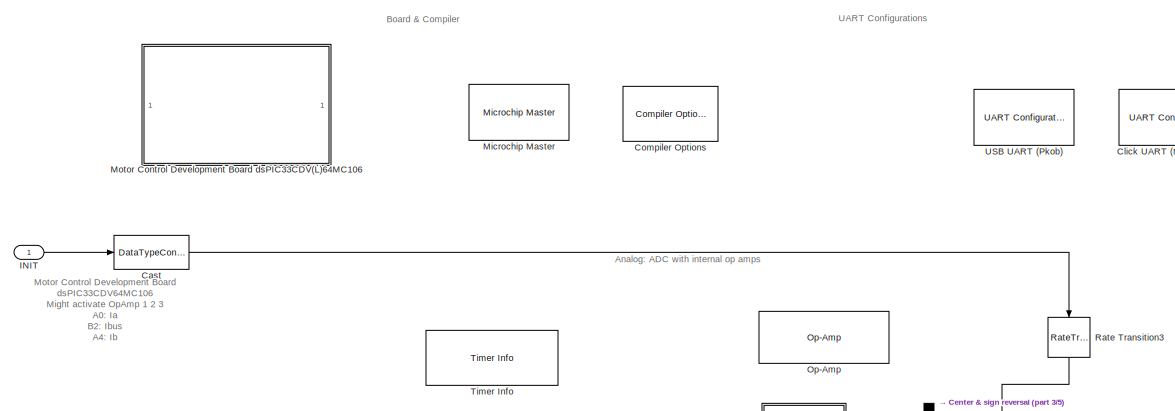
[diagram: MOTOR CONTROL DEVLOPMENT BOARD - part 1/5, top left region]
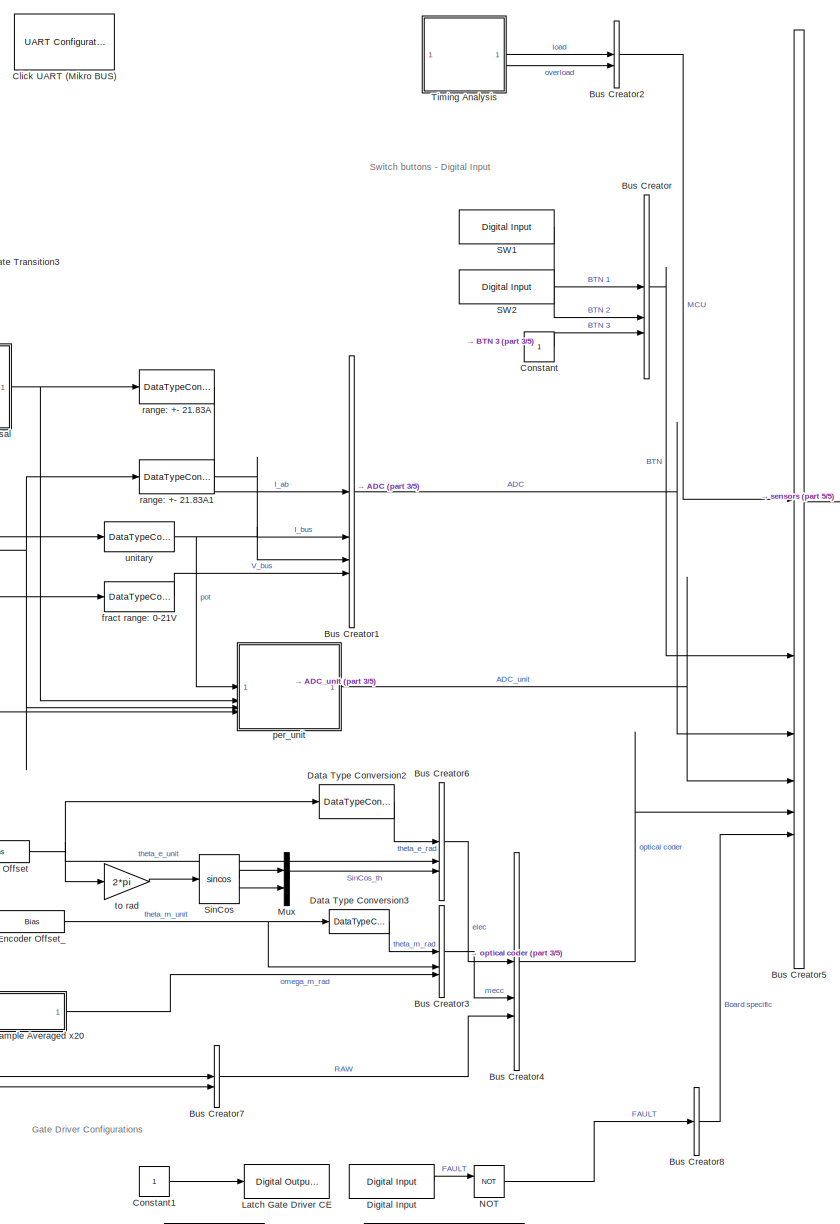
[diagram: MOTOR CONTROL DEVLOPMENT BOARD - part 2/5, right side, full height]
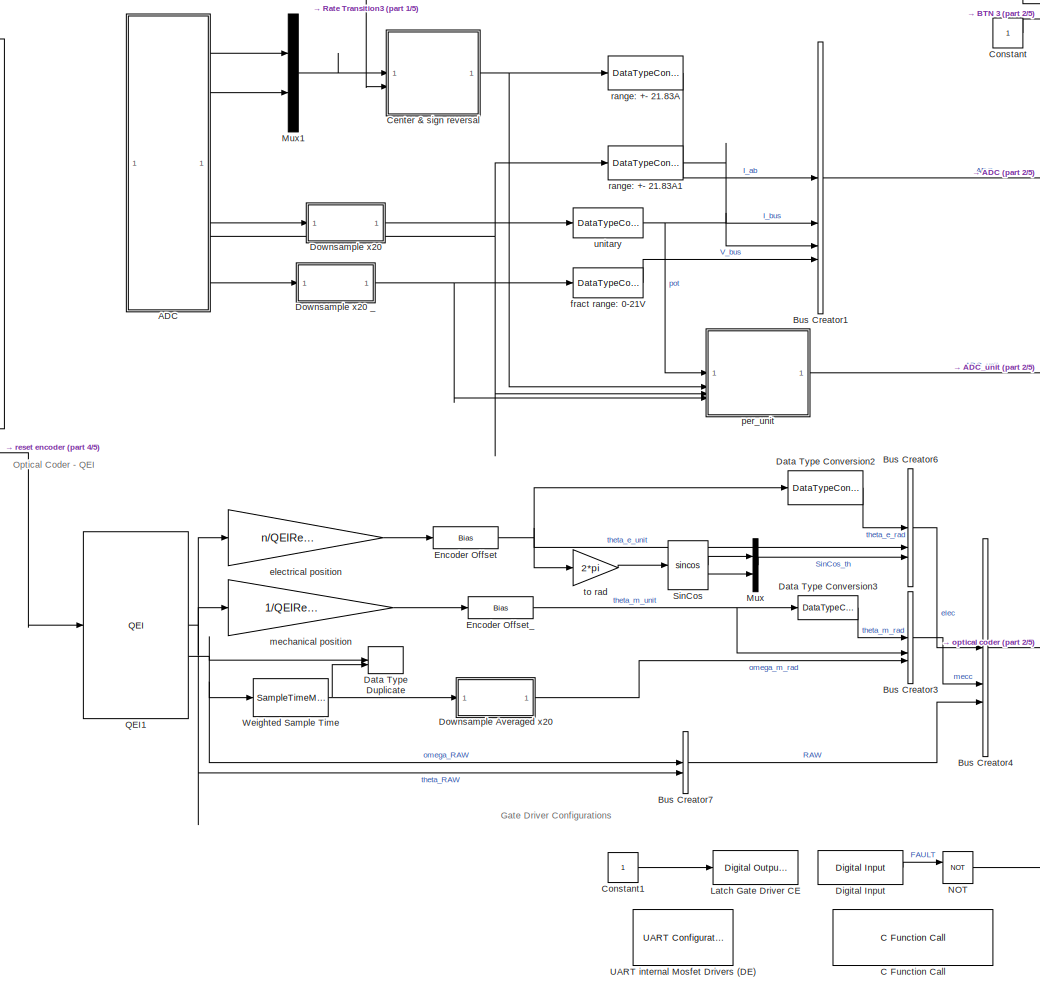
[diagram: MOTOR CONTROL DEVLOPMENT BOARD - part 3/5, central region]
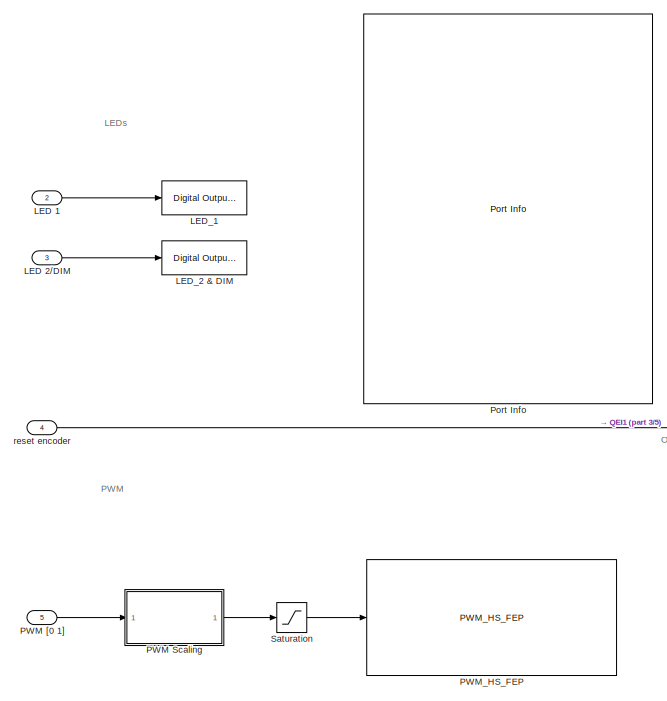
[diagram: MOTOR CONTROL DEVLOPMENT BOARD - part 4/5, middle left region]
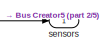
[diagram: MOTOR CONTROL DEVLOPMENT BOARD - part 5/5, middle right region]
BLOCK [SubSystem] MOTOR CONTROL DEVLOPMENT BOARD
  AttributesFormatString = %<TargetedChip>\n%<boardVariants>
BLOCK [SubSystem] MOTOR CONTROL DEVLOPMENT BOARD/ADC
BLOCK [Reference] MOTOR CONTROL DEVLOPMENT BOARD/ADC/ADC dsPIC High Speed SAR Motor Currents  REF=MCHP_Blockset/Analog IO/ADC dsPIC
High Speed SAR
  SourceBlock = MCHP_Blockset/Analog IO/ADC dsPIC\nHigh Speed SAR
  SourceProductName = MPLAB Device Blocks for Simulink
  SourceType = ADC SAR for dsPIC EP GS family
  UserDataPersistent = on
BLOCK [Reference] MOTOR CONTROL DEVLOPMENT BOARD/ADC/ADC dsPIC High Speed SAR others  REF=MCHP_Blockset/Analog IO/ADC dsPIC
High Speed SAR
  SourceBlock = MCHP_Blockset/Analog IO/ADC dsPIC\nHigh Speed SAR
  SourceProductName = MPLAB Device Blocks for Simulink
  SourceType = ADC SAR for dsPIC EP GS family
  UserDataPersistent = on
BLOCK [Outport] MOTOR CONTROL DEVLOPMENT BOARD/ADC/IBus
  Port = 3
  VectorParamsAs1DForOutWhenUnconnected = off
BLOCK [Outport] MOTOR CONTROL DEVLOPMENT BOARD/ADC/Ia
  VectorParamsAs1DForOutWhenUnconnected = off
BLOCK [Outport] MOTOR CONTROL DEVLOPMENT BOARD/ADC/Ib
  Port = 2
  VectorParamsAs1DForOutWhenUnconnected = off
BLOCK [Outport] MOTOR CONTROL DEVLOPMENT BOARD/ADC/V_BUS
  Port = 5
  VectorParamsAs1DForOutWhenUnconnected = off
BLOCK [Outport] MOTOR CONTROL DEVLOPMENT BOARD/ADC/pot
  Port = 4
  VectorParamsAs1DForOutWhenUnconnected = off
BLOCK [BusCreator] MOTOR CONTROL DEVLOPMENT BOARD/Bus Creator
  DisplayOption = bar
  InheritFromInputs = on
  Inputs = 3
BLOCK [BusCreator] MOTOR CONTROL DEVLOPMENT BOARD/Bus Creator1
  DisplayOption = bar
  InheritFromInputs = on
  Inputs = 4
BLOCK [BusCreator] MOTOR CONTROL DEVLOPMENT BOARD/Bus Creator2
  DisplayOption = bar
  InheritFromInputs = on
  Inputs = 2
BLOCK [BusCreator] MOTOR CONTROL DEVLOPMENT BOARD/Bus Creator3
  DisplayOption = bar
  InheritFromInputs = on
  Inputs = 3
BLOCK [BusCreator] MOTOR CONTROL DEVLOPMENT BOARD/Bus Creator4
  DisplayOption = bar
  InheritFromInputs = on
  Inputs = 3
BLOCK [BusCreator] MOTOR CONTROL DEVLOPMENT BOARD/Bus Creator5
  DisplayOption = bar
  InheritFromInputs = on
  Inputs = 6
BLOCK [BusCreator] MOTOR CONTROL DEVLOPMENT BOARD/Bus Creator6
  DisplayOption = bar
  InheritFromInputs = on
  Inputs = 3
BLOCK [BusCreator] MOTOR CONTROL DEVLOPMENT BOARD/Bus Creator7
  DisplayOption = bar
  InheritFromInputs = on
  Inputs = 2
BLOCK [BusCreator] MOTOR CONTROL DEVLOPMENT BOARD/Bus Creator8
  DisplayOption = bar
  InheritFromInputs = on
  Inputs = 1
BLOCK [Reference] MOTOR CONTROL DEVLOPMENT BOARD/C Function Call  REF=MCHP_Blockset/User Functions/C Function Call
  SourceBlock = MCHP_Blockset/User Functions/C Function Call
  SourceProductName = MPLAB Device Blocks for Simulink
  SourceType = C Function Call
  UserDataPersistent = on
BLOCK [DataTypeConversion] MOTOR CONTROL DEVLOPMENT BOARD/Cast
  OutDataTypeStr = boolean
  RndMeth = Floor
  SaturateOnIntegerOverflow = off
BLOCK [SubSystem] MOTOR CONTROL DEVLOPMENT BOARD/Center & sign reversal
BLOCK [Sum] MOTOR CONTROL DEVLOPMENT BOARD/Center & sign reversal/Average and Sign reverse
  AccumDataTypeStr = Inherit: Same as first input
  IconShape = rectangular
  Inputs = +-
  OutDataTypeStr = Inherit: Same as first input
  SaturateOnIntegerOverflow = on
BLOCK [Inport] MOTOR CONTROL DEVLOPMENT BOARD/Center & sign reversal/Bias Update
  Port = 2
BLOCK [SubSystem] MOTOR CONTROL DEVLOPMENT BOARD/Center & sign reversal/Downsample Averaged 2000 samples remove bias
BLOCK [Reference] MOTOR CONTROL DEVLOPMENT BOARD/Center & sign reversal/Downsample Averaged 2000 samples remove bias/Compare To Constant  REF=simulink/Logic and Bit
Operations/Compare
To Constant
  SourceBlock = simulink/Logic and Bit\nOperations/Compare\nTo Constant
  SourceType = Compare To Constant
BLOCK [Reference] MOTOR CONTROL DEVLOPMENT BOARD/Center & sign reversal/Downsample Averaged 2000 samples remove bias/Counter Limited  REF=simulink/Sources/Counter
Limited
  SourceBlock = simulink/Sources/Counter\nLimited
  SourceType = Counter Limited
BLOCK [DataTypeDuplicate] MOTOR CONTROL DEVLOPMENT BOARD/Center & sign reversal/Downsample Averaged 2000 samples remove bias/Data Type Duplicate
BLOCK [Reference] MOTOR CONTROL DEVLOPMENT BOARD/Center & sign reversal/Downsample Averaged 2000 samples remove bias/Data Type Propagation  REF=simulink/Signal
Attributes/Data Type
Propagation
  SourceBlock = simulink/Signal\nAttributes/Data Type\nPropagation
  SourceType = Data Type Propagation
BLOCK [Reference] MOTOR CONTROL DEVLOPMENT BOARD/Center & sign reversal/Downsample Averaged 2000 samples remove bias/Data Type Propagation1  REF=simulink/Signal
Attributes/Data Type
Propagation
  SourceBlock = simulink/Signal\nAttributes/Data Type\nPropagation
  SourceType = Data Type Propagation
BLOCK [DiscreteIntegrator] MOTOR CONTROL DEVLOPMENT BOARD/Center & sign reversal/Downsample Averaged 2000 samples remove bias/Discrete-Time Integrator
  ExternalReset = sampled level
  ICPrevOutput = DiscIntNeverNeededParam
  ICPrevScaledInput = DiscIntNeverNeededParam
  InitialConditionSetting = Auto
  IntegratorMethod = Accumulation: Backward Euler
  OutDataTypeStr = Inherit: Inherit via back propagation
  SampleTime = -1
  gainval = 1
BLOCK [EnablePort] MOTOR CONTROL DEVLOPMENT BOARD/Center & sign reversal/Downsample Averaged 2000 samples remove bias/Enable
BLOCK [Gain] MOTOR CONTROL DEVLOPMENT BOARD/Center & sign reversal/Downsample Averaged 2000 samples remove bias/Gain
  Gain = 1/DownSample
  OutDataTypeStr = Inherit: Inherit via back propagation
  RndMeth = Round
BLOCK [Gain] MOTOR CONTROL DEVLOPMENT BOARD/Center & sign reversal/Downsample Averaged 2000 samples remove bias/Gain1
  Gain = 1/DownSample
  OutDataTypeStr = Inherit: Inherit via back propagation
BLOCK [Inport] MOTOR CONTROL DEVLOPMENT BOARD/Center & sign reversal/Downsample Averaged 2000 samples remove bias/In1
BLOCK [Outport] MOTOR CONTROL DEVLOPMENT BOARD/Center & sign reversal/Downsample Averaged 2000 samples remove bias/Out1
  VectorParamsAs1DForOutWhenUnconnected = off
BLOCK [RateTransition] MOTOR CONTROL DEVLOPMENT BOARD/Center & sign reversal/Downsample Averaged 2000 samples remove bias/Rate Transition1
  OutPortSampleTime = DownSample
  OutPortSampleTimeMultiple = DownSample
  OutPortSampleTimeOpt = Multiple of input port sample time
BLOCK [RateTransition] MOTOR CONTROL DEVLOPMENT BOARD/Center & sign reversal/Downsample Averaged 2000 samples remove bias/Rate Transition3
  OutPortSampleTime = DownSample
  OutPortSampleTimeMultiple = DownSample
  OutPortSampleTimeOpt = Multiple of input port sample time
BLOCK [Terminator] MOTOR CONTROL DEVLOPMENT BOARD/Center & sign reversal/Downsample Averaged 2000 samples remove bias/Terminator
BLOCK [Inport] MOTOR CONTROL DEVLOPMENT BOARD/Center & sign reversal/I_ab
BLOCK [Outport] MOTOR CONTROL DEVLOPMENT BOARD/Center & sign reversal/Iab
BLOCK [RateTransition] MOTOR CONTROL DEVLOPMENT BOARD/Center & sign reversal/Rate Transition1
  Deterministic = off
BLOCK [Reference] MOTOR CONTROL DEVLOPMENT BOARD/Click UART (Mikro BUS)  REF=MCHP_Blockset/BUS UART/UART Configuration
  SourceBlock = MCHP_Blockset/BUS UART/UART Configuration
  SourceProductName = MPLAB Device Blocks for Simulink
  SourceType = Configuration for UART peripheral
BLOCK [Reference] MOTOR CONTROL DEVLOPMENT BOARD/Compiler Options  REF=MCHP_Blockset/System Configuration/Compiler Options
  Priority = 1
  SourceBlock = MCHP_Blockset/System Configuration/Compiler Options
  SourceProductName = MPLAB Device Blocks for Simulink
BLOCK [Constant] MOTOR CONTROL DEVLOPMENT BOARD/Constant
  OutDataTypeStr = boolean
  SampleTime = -1
BLOCK [Constant] MOTOR CONTROL DEVLOPMENT BOARD/Constant1
  OutDataTypeStr = boolean
BLOCK [DataTypeConversion] MOTOR CONTROL DEVLOPMENT BOARD/Data Type Conversion2
  ConvertRealWorld = Stored Integer (SI)
  OutDataTypeStr = fixdt(1,16,(2*pi)/2^16,0)
  RndMeth = Floor
  SaturateOnIntegerOverflow = off
BLOCK [DataTypeConversion] MOTOR CONTROL DEVLOPMENT BOARD/Data Type Conversion3
  ConvertRealWorld = Stored Integer (SI)
  OutDataTypeStr = fixdt(1,16,(2*pi)/2^16,0)
  RndMeth = Floor
  SaturateOnIntegerOverflow = off
BLOCK [DataTypeDuplicate] MOTOR CONTROL DEVLOPMENT BOARD/Data Type Duplicate
BLOCK [Reference] MOTOR CONTROL DEVLOPMENT BOARD/Digital Input  REF=MCHP_Blockset/Digital IO/Digital Input
  SourceBlock = MCHP_Blockset/Digital IO/Digital Input
  SourceProductName = MPLAB Device Blocks for Simulink
  SourceType = Input driver for Digital Input Pins
BLOCK [SubSystem] MOTOR CONTROL DEVLOPMENT BOARD/Downsample Averaged x20
BLOCK [Reference] MOTOR CONTROL DEVLOPMENT BOARD/Downsample Averaged x20/Compare To Constant  REF=simulink/Logic and Bit
Operations/Compare
To Constant
  SourceBlock = simulink/Logic and Bit\nOperations/Compare\nTo Constant
  SourceType = Compare To Constant
BLOCK [Reference] MOTOR CONTROL DEVLOPMENT BOARD/Downsample Averaged x20/Counter Limited  REF=simulink/Sources/Counter
Limited
  SourceBlock = simulink/Sources/Counter\nLimited
  SourceType = Counter Limited
BLOCK [DataTypeDuplicate] MOTOR CONTROL DEVLOPMENT BOARD/Downsample Averaged x20/Data Type Duplicate
BLOCK [Reference] MOTOR CONTROL DEVLOPMENT BOARD/Downsample Averaged x20/Data Type Propagation  REF=simulink/Signal
Attributes/Data Type
Propagation
  SourceBlock = simulink/Signal\nAttributes/Data Type\nPropagation
  SourceType = Data Type Propagation
BLOCK [Reference] MOTOR CONTROL DEVLOPMENT BOARD/Downsample Averaged x20/Data Type Propagation1  REF=simulink/Signal
Attributes/Data Type
Propagation
  SourceBlock = simulink/Signal\nAttributes/Data Type\nPropagation
  SourceType = Data Type Propagation
BLOCK [DiscreteIntegrator] MOTOR CONTROL DEVLOPMENT BOARD/Downsample Averaged x20/Discrete-Time Integrator
  ExternalReset = sampled level
  ICPrevOutput = DiscIntNeverNeededParam
  ICPrevScaledInput = DiscIntNeverNeededParam
  InitialConditionSetting = Auto
  IntegratorMethod = Accumulation: Backward Euler
  OutDataTypeStr = Inherit: Inherit via back propagation
  SampleTime = -1
  gainval = 1
BLOCK [Gain] MOTOR CONTROL DEVLOPMENT BOARD/Downsample Averaged x20/Gain
  Gain = 1/DownSample
  OutDataTypeStr = Inherit: Inherit via back propagation
  RndMeth = Round
BLOCK [Gain] MOTOR CONTROL DEVLOPMENT BOARD/Downsample Averaged x20/Gain1
  Gain = 1/DownSample
  OutDataTypeStr = Inherit: Inherit via back propagation
BLOCK [Inport] MOTOR CONTROL DEVLOPMENT BOARD/Downsample Averaged x20/In1
BLOCK [Outport] MOTOR CONTROL DEVLOPMENT BOARD/Downsample Averaged x20/Out1
  VectorParamsAs1DForOutWhenUnconnected = off
BLOCK [RateTransition] MOTOR CONTROL DEVLOPMENT BOARD/Downsample Averaged x20/Rate Transition1
  OutPortSampleTime = DownSample
  OutPortSampleTimeMultiple = DownSample
  OutPortSampleTimeOpt = Multiple of input port sample time
BLOCK [RateTransition] MOTOR CONTROL DEVLOPMENT BOARD/Downsample Averaged x20/Rate Transition3
  OutPortSampleTime = DownSample
  OutPortSampleTimeMultiple = DownSample
  OutPortSampleTimeOpt = Multiple of input port sample time
BLOCK [Terminator] MOTOR CONTROL DEVLOPMENT BOARD/Downsample Averaged x20/Terminator
BLOCK [SubSystem] MOTOR CONTROL DEVLOPMENT BOARD/Downsample x20
BLOCK [SubSystem] MOTOR CONTROL DEVLOPMENT BOARD/Downsample x20 _
BLOCK [Reference] MOTOR CONTROL DEVLOPMENT BOARD/Downsample x20 _/Compare To Constant  REF=simulink/Logic and Bit
Operations/Compare
To Constant
  SourceBlock = simulink/Logic and Bit\nOperations/Compare\nTo Constant
  SourceType = Compare To Constant
BLOCK [Reference] MOTOR CONTROL DEVLOPMENT BOARD/Downsample x20 _/Counter Limited  REF=simulink/Sources/Counter
Limited
  SourceBlock = simulink/Sources/Counter\nLimited
  SourceType = Counter Limited
BLOCK [DataTypeDuplicate] MOTOR CONTROL DEVLOPMENT BOARD/Downsample x20 _/Data Type Duplicate
BLOCK [Reference] MOTOR CONTROL DEVLOPMENT BOARD/Downsample x20 _/Data Type Propagation  REF=simulink/Signal
Attributes/Data Type
Propagation
  SourceBlock = simulink/Signal\nAttributes/Data Type\nPropagation
  SourceType = Data Type Propagation
BLOCK [Reference] MOTOR CONTROL DEVLOPMENT BOARD/Downsample x20 _/Data Type Propagation1  REF=simulink/Signal
Attributes/Data Type
Propagation
  SourceBlock = simulink/Signal\nAttributes/Data Type\nPropagation
  SourceType = Data Type Propagation
BLOCK [DiscreteIntegrator] MOTOR CONTROL DEVLOPMENT BOARD/Downsample x20 _/Discrete-Time Integrator
  ExternalReset = sampled level
  ICPrevOutput = DiscIntNeverNeededParam
  ICPrevScaledInput = DiscIntNeverNeededParam
  InitialConditionSetting = Auto
  IntegratorMethod = Accumulation: Backward Euler
  OutDataTypeStr = Inherit: Inherit via back propagation
  SampleTime = -1
  gainval = 1
BLOCK [Gain] MOTOR CONTROL DEVLOPMENT BOARD/Downsample x20 _/Gain
  Gain = 1/DownSample
  OutDataTypeStr = Inherit: Inherit via back propagation
  RndMeth = Round
BLOCK [Gain] MOTOR CONTROL DEVLOPMENT BOARD/Downsample x20 _/Gain1
  Gain = 1/DownSample
  OutDataTypeStr = Inherit: Inherit via back propagation
BLOCK [Inport] MOTOR CONTROL DEVLOPMENT BOARD/Downsample x20 _/In1
BLOCK [Outport] MOTOR CONTROL DEVLOPMENT BOARD/Downsample x20 _/Out1
  VectorParamsAs1DForOutWhenUnconnected = off
BLOCK [RateTransition] MOTOR CONTROL DEVLOPMENT BOARD/Downsample x20 _/Rate Transition1
  OutPortSampleTime = DownSample
  OutPortSampleTimeMultiple = DownSample
  OutPortSampleTimeOpt = Multiple of input port sample time
BLOCK [RateTransition] MOTOR CONTROL DEVLOPMENT BOARD/Downsample x20 _/Rate Transition3
  OutPortSampleTime = DownSample
  OutPortSampleTimeMultiple = DownSample
  OutPortSampleTimeOpt = Multiple of input port sample time
BLOCK [Terminator] MOTOR CONTROL DEVLOPMENT BOARD/Downsample x20 _/Terminator
BLOCK [Reference] MOTOR CONTROL DEVLOPMENT BOARD/Downsample x20/Compare To Constant  REF=simulink/Logic and Bit
Operations/Compare
To Constant
  SourceBlock = simulink/Logic and Bit\nOperations/Compare\nTo Constant
  SourceType = Compare To Constant
BLOCK [Reference] MOTOR CONTROL DEVLOPMENT BOARD/Downsample x20/Counter Limited  REF=simulink/Sources/Counter
Limited
  SourceBlock = simulink/Sources/Counter\nLimited
  SourceType = Counter Limited
BLOCK [DataTypeDuplicate] MOTOR CONTROL DEVLOPMENT BOARD/Downsample x20/Data Type Duplicate
BLOCK [Reference] MOTOR CONTROL DEVLOPMENT BOARD/Downsample x20/Data Type Propagation  REF=simulink/Signal
Attributes/Data Type
Propagation
  SourceBlock = simulink/Signal\nAttributes/Data Type\nPropagation
  SourceType = Data Type Propagation
BLOCK [Reference] MOTOR CONTROL DEVLOPMENT BOARD/Downsample x20/Data Type Propagation1  REF=simulink/Signal
Attributes/Data Type
Propagation
  SourceBlock = simulink/Signal\nAttributes/Data Type\nPropagation
  SourceType = Data Type Propagation
BLOCK [DiscreteIntegrator] MOTOR CONTROL DEVLOPMENT BOARD/Downsample x20/Discrete-Time Integrator
  ExternalReset = sampled level
  ICPrevOutput = DiscIntNeverNeededParam
  ICPrevScaledInput = DiscIntNeverNeededParam
  InitialConditionSetting = Auto
  IntegratorMethod = Accumulation: Backward Euler
  OutDataTypeStr = Inherit: Inherit via back propagation
  SampleTime = -1
  gainval = 1
BLOCK [Gain] MOTOR CONTROL DEVLOPMENT BOARD/Downsample x20/Gain
  Gain = 1/DownSample
  OutDataTypeStr = Inherit: Inherit via back propagation
  RndMeth = Round
BLOCK [Gain] MOTOR CONTROL DEVLOPMENT BOARD/Downsample x20/Gain1
  Gain = 1/DownSample
  OutDataTypeStr = Inherit: Inherit via back propagation
BLOCK [Inport] MOTOR CONTROL DEVLOPMENT BOARD/Downsample x20/In1
BLOCK [Outport] MOTOR CONTROL DEVLOPMENT BOARD/Downsample x20/Out1
  VectorParamsAs1DForOutWhenUnconnected = off
BLOCK [RateTransition] MOTOR CONTROL DEVLOPMENT BOARD/Downsample x20/Rate Transition1
  OutPortSampleTime = DownSample
  OutPortSampleTimeMultiple = DownSample
  OutPortSampleTimeOpt = Multiple of input port sample time
BLOCK [RateTransition] MOTOR CONTROL DEVLOPMENT BOARD/Downsample x20/Rate Transition3
  OutPortSampleTime = DownSample
  OutPortSampleTimeMultiple = DownSample
  OutPortSampleTimeOpt = Multiple of input port sample time
BLOCK [Terminator] MOTOR CONTROL DEVLOPMENT BOARD/Downsample x20/Terminator
BLOCK [Bias] MOTOR CONTROL DEVLOPMENT BOARD/Encoder Offset
  Bias = mod(1,round((n*QEIOffset)/(2*pi)))
  SaturateOnIntegerOverflow = off
BLOCK [Bias] MOTOR CONTROL DEVLOPMENT BOARD/Encoder Offset_
  Bias = mod(1,round(QEIOffset/(2*pi)))
  SaturateOnIntegerOverflow = off
BLOCK [Inport] MOTOR CONTROL DEVLOPMENT BOARD/INIT
BLOCK [Inport] MOTOR CONTROL DEVLOPMENT BOARD/LED 1
  Port = 2
BLOCK [Inport] MOTOR CONTROL DEVLOPMENT BOARD/LED 2//DIM
  Port = 3
BLOCK [Reference] MOTOR CONTROL DEVLOPMENT BOARD/LED_1  REF=MCHP_Blockset/Digital IO/Digital Output
Write
  SourceBlock = MCHP_Blockset/Digital IO/Digital Output\nWrite
  SourceProductName = MPLAB Device Blocks for Simulink
  SourceType = Output driver for Digital Output Pins
BLOCK [Reference] MOTOR CONTROL DEVLOPMENT BOARD/LED_2 & DIM  REF=MCHP_Blockset/Digital IO/Digital Output
Write
  SourceBlock = MCHP_Blockset/Digital IO/Digital Output\nWrite
  SourceProductName = MPLAB Device Blocks for Simulink
  SourceType = Output driver for Digital Output Pins
BLOCK [Reference] MOTOR CONTROL DEVLOPMENT BOARD/Latch Gate Driver CE  REF=MCHP_Blockset/Digital IO/Digital Output
Write
  SourceBlock = MCHP_Blockset/Digital IO/Digital Output\nWrite
  SourceProductName = MPLAB Device Blocks for Simulink
  SourceType = Output driver for Digital Output Pins
BLOCK [Reference] MOTOR CONTROL DEVLOPMENT BOARD/Microchip Master  REF=MCHP_Blockset/System Configuration/Microchip Master
  Priority = 1
  SourceBlock = MCHP_Blockset/System Configuration/Microchip Master
  SourceProductName = MPLAB Device Blocks for Simulink
BLOCK [SubSystem] MOTOR CONTROL DEVLOPMENT BOARD/Motor Control Development Board dsPIC33CDV(L)64MC106
  OpenFcn = web('https://www.microchip.com/en-us/development-tool/ev14e50a','-browser'); % CDV board\npause(1);\nweb('https://www.microchip.com/en-us/development-tool/ev04r09a','-browser'); % CDVL board
BLOCK [Mux] MOTOR CONTROL DEVLOPMENT BOARD/Mux
  DisplayOption = bar
  Inputs = 2
BLOCK [Mux] MOTOR CONTROL DEVLOPMENT BOARD/Mux1
  DisplayOption = bar
  Inputs = 2
BLOCK [Logic] MOTOR CONTROL DEVLOPMENT BOARD/NOT
  AllPortsSameDT = off
  IconShape = distinctive
  Operator = NOT
  OutDataTypeStr = boolean
BLOCK [Reference] MOTOR CONTROL DEVLOPMENT BOARD/Op-Amp  REF=MCHP_Blockset/Analog IO/Op-Amp
  Priority = -2000
  SourceBlock = MCHP_Blockset/Analog IO/Op-Amp
  SourceProductName = MPLAB Device Blocks for Simulink
  SourceType = Configure on chip Op AMP
  UserDataPersistent = on
BLOCK [SubSystem] MOTOR CONTROL DEVLOPMENT BOARD/PWM Scaling
BLOCK [Gain] MOTOR CONTROL DEVLOPMENT BOARD/PWM Scaling/Gain
  Gain = PWM1max
  OutDataTypeStr = uint16
BLOCK [Outport] MOTOR CONTROL DEVLOPMENT BOARD/PWM Scaling/PWM
  VectorParamsAs1DForOutWhenUnconnected = off
BLOCK [Inport] MOTOR CONTROL DEVLOPMENT BOARD/PWM Scaling/vabc [0 1]
BLOCK [Inport] MOTOR CONTROL DEVLOPMENT BOARD/PWM [0 1]
  Port = 5
  SignalType = real
  Unit = 1
  VarSizeSig = No
BLOCK [Reference] MOTOR CONTROL DEVLOPMENT BOARD/PWM_HS_FEP  REF=MCHP_Blockset/PWM IO/PWM_HS_FEP
  Priority = -2000
  SourceBlock = MCHP_Blockset/PWM IO/PWM_HS_FEP
  SourceProductName = MPLAB Device Blocks for Simulink
  SourceType = PWM High-Speed Fine-Edge-Placement
  UserDataPersistent = on
BLOCK [Reference] MOTOR CONTROL DEVLOPMENT BOARD/Port Info  REF=MCHP_Blockset/System Info/Port Info
  SourceBlock = MCHP_Blockset/System Info/Port Info
  SourceProductName = MPLAB Device Blocks for Simulink
BLOCK [Reference] MOTOR CONTROL DEVLOPMENT BOARD/QEI1  REF=MCHP_Blockset/QEI/QEI
  SourceBlock = MCHP_Blockset/QEI/QEI
  SourceProductName = MPLAB Device Blocks for Simulink
  SourceType = Output Driver for Quadrature Encoder Interface (QEI) peripheral
  UserDataPersistent = on
BLOCK [RateTransition] MOTOR CONTROL DEVLOPMENT BOARD/Rate Transition3
  Deterministic = off
  NameLocation = left
BLOCK [Reference] MOTOR CONTROL DEVLOPMENT BOARD/SW1  REF=MCHP_Blockset/Digital IO/Digital Input
  SourceBlock = MCHP_Blockset/Digital IO/Digital Input
  SourceProductName = MPLAB Device Blocks for Simulink
  SourceType = Input driver for Digital Input Pins
BLOCK [Reference] MOTOR CONTROL DEVLOPMENT BOARD/SW2  REF=MCHP_Blockset/Digital IO/Digital Input
  SourceBlock = MCHP_Blockset/Digital IO/Digital Input
  SourceProductName = MPLAB Device Blocks for Simulink
  SourceType = Input driver for Digital Input Pins
BLOCK [Saturate] MOTOR CONTROL DEVLOPMENT BOARD/Saturation
  LinearizeAsGain = off
  LowerLimit = PWM1max*0.03
  OutDataTypeStr = uint16
  UpperLimit = PWM1max*0.97
BLOCK [Trigonometry] MOTOR CONTROL DEVLOPMENT BOARD/SinCos
  ApproximationMethod = CORDIC
  Operator = sincos
BLOCK [Reference] MOTOR CONTROL DEVLOPMENT BOARD/Timer Info  REF=MCHP_Blockset/System Info/Timer Info
  SourceBlock = MCHP_Blockset/System Info/Timer Info
  SourceProductName = MPLAB Device Blocks for Simulink
BLOCK [SubSystem] MOTOR CONTROL DEVLOPMENT BOARD/Timing Analysis
BLOCK [Outport] MOTOR CONTROL DEVLOPMENT BOARD/Timing Analysis/CPU Load
  SampleTime = .0005*200
  Unit = %
BLOCK [Outport] MOTOR CONTROL DEVLOPMENT BOARD/Timing Analysis/CPU Overload
  Port = 2
BLOCK [SubSystem] MOTOR CONTROL DEVLOPMENT BOARD/Timing Analysis/Downsample Averaged2
BLOCK [Reference] MOTOR CONTROL DEVLOPMENT BOARD/Timing Analysis/Downsample Averaged2/Compare To Constant  REF=simulink/Logic and Bit
Operations/Compare
To Constant
  SourceBlock = simulink/Logic and Bit\nOperations/Compare\nTo Constant
  SourceType = Compare To Constant
BLOCK [Reference] MOTOR CONTROL DEVLOPMENT BOARD/Timing Analysis/Downsample Averaged2/Counter Limited  REF=simulink/Sources/Counter
Limited
  SourceBlock = simulink/Sources/Counter\nLimited
  SourceType = Counter Limited
BLOCK [DataTypeDuplicate] MOTOR CONTROL DEVLOPMENT BOARD/Timing Analysis/Downsample Averaged2/Data Type Duplicate
BLOCK [Reference] MOTOR CONTROL DEVLOPMENT BOARD/Timing Analysis/Downsample Averaged2/Data Type Propagation  REF=simulink/Signal
Attributes/Data Type
Propagation
  SourceBlock = simulink/Signal\nAttributes/Data Type\nPropagation
  SourceType = Data Type Propagation
BLOCK [Reference] MOTOR CONTROL DEVLOPMENT BOARD/Timing Analysis/Downsample Averaged2/Data Type Propagation1  REF=simulink/Signal
Attributes/Data Type
Propagation
  SourceBlock = simulink/Signal\nAttributes/Data Type\nPropagation
  SourceType = Data Type Propagation
BLOCK [DiscreteIntegrator] MOTOR CONTROL DEVLOPMENT BOARD/Timing Analysis/Downsample Averaged2/Discrete-Time Integrator
  ExternalReset = sampled level
  ICPrevOutput = DiscIntNeverNeededParam
  ICPrevScaledInput = DiscIntNeverNeededParam
  InitialConditionSetting = Auto
  IntegratorMethod = Accumulation: Backward Euler
  OutDataTypeStr = Inherit: Inherit via back propagation
  SampleTime = -1
  gainval = 1
BLOCK [Gain] MOTOR CONTROL DEVLOPMENT BOARD/Timing Analysis/Downsample Averaged2/Gain
  Gain = 1/DownSample
  OutDataTypeStr = Inherit: Inherit via back propagation
BLOCK [Gain] MOTOR CONTROL DEVLOPMENT BOARD/Timing Analysis/Downsample Averaged2/Gain1
  Gain = 1/DownSample
  OutDataTypeStr = Inherit: Inherit via back propagation
BLOCK [Inport] MOTOR CONTROL DEVLOPMENT BOARD/Timing Analysis/Downsample Averaged2/In1
BLOCK [Outport] MOTOR CONTROL DEVLOPMENT BOARD/Timing Analysis/Downsample Averaged2/Out1
  VectorParamsAs1DForOutWhenUnconnected = off
BLOCK [RateTransition] MOTOR CONTROL DEVLOPMENT BOARD/Timing Analysis/Downsample Averaged2/Rate Transition1
  Deterministic = off
  OutPortSampleTime = [InputSampleTime * DownSample]
BLOCK [RateTransition] MOTOR CONTROL DEVLOPMENT BOARD/Timing Analysis/Downsample Averaged2/Rate Transition3
  OutPortSampleTime = [InputSampleTime * DownSample]
BLOCK [Terminator] MOTOR CONTROL DEVLOPMENT BOARD/Timing Analysis/Downsample Averaged2/Terminator
BLOCK [Gain] MOTOR CONTROL DEVLOPMENT BOARD/Timing Analysis/Gain
  Gain = 10e-9/.0005 * 100
  OutDataTypeStr = fixdt(0,16)
  OutMax = 100
  OutMin = 0
  RndMeth = Simplest
  SaturateOnIntegerOverflow = on
BLOCK [Reference] MOTOR CONTROL DEVLOPMENT BOARD/Timing Analysis/MCU Load  REF=MCHP_Blockset/Profiling/MCU Load
  SourceBlock = MCHP_Blockset/Profiling/MCU Load
  SourceProductName = MPLAB Device Blocks for Simulink
  SourceType = MCU Load (Profile execution time)
BLOCK [Reference] MOTOR CONTROL DEVLOPMENT BOARD/Timing Analysis/MCU Overload  REF=MCHP_Blockset/Profiling/MCU Overload
  SourceBlock = MCHP_Blockset/Profiling/MCU Overload
  SourceProductName = MPLAB Device Blocks for Simulink
  SourceType = MCU Over-Load (Profile execution time)
BLOCK [Constant] MOTOR CONTROL DEVLOPMENT BOARD/Timing Analysis/Overload
  OutDataTypeStr = Inherit: Inherit via back propagation
  Value = 65535
BLOCK [RateTransition] MOTOR CONTROL DEVLOPMENT BOARD/Timing Analysis/Rate Transition
  Deterministic = off
  NameLocation = left
  OutPortSampleTime = .0005*200
BLOCK [Switch] MOTOR CONTROL DEVLOPMENT BOARD/Timing Analysis/Switch
  Criteria = u2 ~= 0
  InputSameDT = off
  SaturateOnIntegerOverflow = off
BLOCK [Reference] MOTOR CONTROL DEVLOPMENT BOARD/UART internal Mosfet Drivers (DE)  REF=MCHP_Blockset/BUS UART/UART Configuration
  SourceBlock = MCHP_Blockset/BUS UART/UART Configuration
  SourceProductName = MPLAB Device Blocks for Simulink
  SourceType = Configuration for UART peripheral
BLOCK [Reference] MOTOR CONTROL DEVLOPMENT BOARD/USB UART (Pkob)  REF=MCHP_Blockset/BUS UART/UART Configuration
  SourceBlock = MCHP_Blockset/BUS UART/UART Configuration
  SourceProductName = MPLAB Device Blocks for Simulink
  SourceType = Configuration for UART peripheral
BLOCK [SampleTimeMath] MOTOR CONTROL DEVLOPMENT BOARD/Weighted Sample Time
  OutDataTypeStr = Inherit: Inherit via back propagation
  TsampMathOp = /
  weightValue = QEIResolution / (2*pi)
BLOCK [Gain] MOTOR CONTROL DEVLOPMENT BOARD/electrical position
  Gain = n/QEIResolution
  OutDataTypeStr = fixdt(0,16,16)
BLOCK [DataTypeConversion] MOTOR CONTROL DEVLOPMENT BOARD/fract range: 0-21V
  ConvertRealWorld = Stored Integer (SI)
  OutDataTypeStr = fixdt(0,16,36.3/65536,0)
  RndMeth = Floor
  SaturateOnIntegerOverflow = off
BLOCK [Gain] MOTOR CONTROL DEVLOPMENT BOARD/mechanical position
  Gain = 1/QEIResolution
  OutDataTypeStr = fixdt(0,16,16)
BLOCK [SubSystem] MOTOR CONTROL DEVLOPMENT BOARD/per_unit
BLOCK [Outport] MOTOR CONTROL DEVLOPMENT BOARD/per_unit/ADC_unit
BLOCK [Bias] MOTOR CONTROL DEVLOPMENT BOARD/per_unit/Bias
  Bias = -1
  SaturateOnIntegerOverflow = off
BLOCK [BusCreator] MOTOR CONTROL DEVLOPMENT BOARD/per_unit/Bus Creator7
  DisplayOption = bar
  InheritFromInputs = on
  Inputs = 4
BLOCK [Gain] MOTOR CONTROL DEVLOPMENT BOARD/per_unit/Gain
  Gain = 2
  LockScale = on
  OutDataTypeStr = fixdt(1,16,15)
BLOCK [Inport] MOTOR CONTROL DEVLOPMENT BOARD/per_unit/I_ab
  Port = 2
BLOCK [Inport] MOTOR CONTROL DEVLOPMENT BOARD/per_unit/I_bus
  Port = 3
BLOCK [Inport] MOTOR CONTROL DEVLOPMENT BOARD/per_unit/V_bus
  Port = 4
BLOCK [Inport] MOTOR CONTROL DEVLOPMENT BOARD/per_unit/pot
BLOCK [DataTypeConversion] MOTOR CONTROL DEVLOPMENT BOARD/per_unit/q1.14
  LockScale = on
  OutDataTypeStr = fixdt(1,16,14)
  RndMeth = Floor
  SaturateOnIntegerOverflow = off
BLOCK [DataTypeConversion] MOTOR CONTROL DEVLOPMENT BOARD/per_unit/q1.14_
  LockScale = on
  OutDataTypeStr = fixdt(1,16,14)
  RndMeth = Floor
  SaturateOnIntegerOverflow = off
BLOCK [DataTypeConversion] MOTOR CONTROL DEVLOPMENT BOARD/per_unit/q1.14_1
  LockScale = on
  OutDataTypeStr = fixdt(1,16,14)
  RndMeth = Floor
  SaturateOnIntegerOverflow = off
BLOCK [DataTypeConversion] MOTOR CONTROL DEVLOPMENT BOARD/per_unit/q1.14__
  LockScale = on
  OutDataTypeStr = fixdt(1,16,14)
  RndMeth = Floor
  SaturateOnIntegerOverflow = off
BLOCK [DataTypeConversion] MOTOR CONTROL DEVLOPMENT BOARD/per_unit/q1.15_
  ConvertRealWorld = Stored Integer (SI)
  LockScale = on
  OutDataTypeStr = fixdt(1,16,15)
  RndMeth = Floor
  SaturateOnIntegerOverflow = off
BLOCK [DataTypeConversion] MOTOR CONTROL DEVLOPMENT BOARD/per_unit/q1.15_1
  ConvertRealWorld = Stored Integer (SI)
  LockScale = on
  OutDataTypeStr = fixdt(1,16,15)
  RndMeth = Floor
  SaturateOnIntegerOverflow = off
BLOCK [DataTypeConversion] MOTOR CONTROL DEVLOPMENT BOARD/per_unit/q1.15_3
  ConvertRealWorld = Stored Integer (SI)
  LockScale = on
  OutDataTypeStr = fixdt(1,16,15)
  RndMeth = Floor
  SaturateOnIntegerOverflow = off
BLOCK [DataTypeConversion] MOTOR CONTROL DEVLOPMENT BOARD/range: +- 21.83A
  ConvertRealWorld = Stored Integer (SI)
  OutDataTypeStr = fixdt(1,16,21.83/32768,0)
  RndMeth = Floor
  SaturateOnIntegerOverflow = off
BLOCK [DataTypeConversion] MOTOR CONTROL DEVLOPMENT BOARD/range: +- 21.83A1
  ConvertRealWorld = Stored Integer (SI)
  OutDataTypeStr = fixdt(1,16,21.83/32768,0)
  RndMeth = Floor
  SaturateOnIntegerOverflow = off
BLOCK [Inport] MOTOR CONTROL DEVLOPMENT BOARD/reset encoder
  Port = 4
BLOCK [Outport] MOTOR CONTROL DEVLOPMENT BOARD/sensors
BLOCK [Gain] MOTOR CONTROL DEVLOPMENT BOARD/to rad
  Gain = 2*pi
  OutDataTypeStr = fixdt(0,16,13)
BLOCK [DataTypeConversion] MOTOR CONTROL DEVLOPMENT BOARD/unitary
  ConvertRealWorld = Stored Integer (SI)
  OutDataTypeStr = fixdt(0,16,16)
  RndMeth = Floor
  SaturateOnIntegerOverflow = off
BLOCK [RateTransition] Rate Transition2
  Deterministic = off
BLOCK [RateTransition] Rate Transition3
  Deterministic = off
BLOCK [RateTransition] Rate Transition4
  Deterministic = off
BLOCK [RateTransition] Rate Transition5
  Deterministic = off
BLOCK [SubSystem] Speed Control
  RTWSystemCode = Reusable function
  SystemSampleTime = Ts_speed
  TreatAsAtomicUnit = on
BLOCK [DataStoreRead] Speed Control/Data Store Read
  DataStoreName = EnableClosedLoop
  IndexOptions = Index vector (dialog)
  Indices = 1
  OutputSizes = 1
BLOCK [DataStoreRead] Speed Control/Data Store Read3
  DataStoreName = SpeedRef
  IndexOptions = Index vector (dialog)
  Indices = 1
  OutputSizes = 1
BLOCK [DataStoreWrite] Speed Control/Data Store Write
  DataStoreName = SpeedRef
  IndexOptions = Index vector (dialog)
  Indices = 1
  OutputSizes = 1
BLOCK [DataTypeConversion] Speed Control/Data Type Conversion
  RndMeth = Floor
  SaturateOnIntegerOverflow = off
BLOCK [SubSystem] Speed Control/Enable Switch
  Variant = on
  VariantControlMode = sim codegen switching
BLOCK [SubSystem] Speed Control/Enable Switch/Codegen
  VariantControl = (codegen)
BLOCK [SubSystem] Speed Control/Enable Switch/Sim
  VariantControl = (sim)
BLOCK [Constant] Speed Control/Enable Switch/Sim/Constant
  OutDataTypeStr = Inherit: Inherit via back propagation
BLOCK [DataStoreWrite] Speed Control/Enable Switch/Sim/Data Store Write
  DataStoreName = Enable
  IndexOptions = Index vector (dialog)
  Indices = 1
  OutputSizes = 1
BLOCK [SubSystem] Speed Control/Field Weakening Scheme-2
BLOCK [Sum] Speed Control/Field Weakening Scheme-2/Add2
  AccumDataTypeStr = Inherit: Same as first input
  IconShape = rectangular
  Inputs = +--
  OutDataTypeStr = Inherit: Same as first input
BLOCK [Constant] Speed Control/Field Weakening Scheme-2/Constant1
  OutDataTypeStr = dataType
  Value = pmsm.I_rated/i_base
BLOCK [DataTypeConversion] Speed Control/Field Weakening Scheme-2/Data Type Conversion1
  OutDataTypeStr = dataType2
  RndMeth = Floor
  SaturateOnIntegerOverflow = off
BLOCK [Product] Speed Control/Field Weakening Scheme-2/Divide3
  Inputs = */
  OutDataTypeStr = Inherit: Same as first input
BLOCK [Gain] Speed Control/Field Weakening Scheme-2/Gain7
  Gain = pmsm.FluxPM_PU
  OutDataTypeStr = Inherit: Same as input
BLOCK [Gain] Speed Control/Field Weakening Scheme-2/Gain8
  Gain = (pmsm.I_rated/i_base)*pmsm.Lav_pu
  OutDataTypeStr = Inherit: Same as input
BLOCK [Gain] Speed Control/Field Weakening Scheme-2/Gain9
  Gain = 2*pmsm.Lav_pu*pmsm.FluxPM_PU
  OutDataTypeStr = Inherit: Same as input
BLOCK [Outport] Speed Control/Field Weakening Scheme-2/Out1
BLOCK [Outport] Speed Control/Field Weakening Scheme-2/Out2
  Port = 2
BLOCK [Saturate] Speed Control/Field Weakening Scheme-2/Saturation
  LowerLimit = 0.9
  UpperLimit = 2
BLOCK [Saturate] Speed Control/Field Weakening Scheme-2/Saturation1
  LowerLimit = -pmsm.I_rated/i_base
  UpperLimit = 0
BLOCK [Inport] Speed Control/Field Weakening Scheme-2/Speed_Ref
BLOCK [Math] Speed Control/Field Weakening Scheme-2/Square
  Operator = square
BLOCK [Sqrt] Speed Control/Field Weakening Scheme-2/Square Root
BLOCK [Math] Speed Control/Field Weakening Scheme-2/Square1
  Operator = square
BLOCK [Math] Speed Control/Field Weakening Scheme-2/Square10
  Operator = square
BLOCK [Math] Speed Control/Field Weakening Scheme-2/Square8
  Operator = square
BLOCK [Math] Speed Control/Field Weakening Scheme-2/Square9
  Operator = square
BLOCK [Sum] Speed Control/Field Weakening Scheme-2/Sum1
  AccumDataTypeStr = Inherit: Same as first input
  Inputs = |-+
  OutDataTypeStr = Inherit: Same as first input
BLOCK [Constant] Speed Control/Field Weakening Scheme-2/v_max3
  OutDataTypeStr = dataType
  SampleTime = Ts_speed
  Value = Vs_max_pu^2
BLOCK [From] Speed Control/From
  GotoTag = id_ref
BLOCK [From] Speed Control/From1
  GotoTag = iq_limit
BLOCK [Gain] Speed Control/Gain
  Gain = 1.21
  OutDataTypeStr = Inherit: Same as input
BLOCK [Gain] Speed Control/Gain4
  Gain = -1
  OutDataTypeStr = Inherit: Same as input
BLOCK [Goto] Speed Control/Goto
  GotoTag = id_ref
BLOCK [Goto] Speed Control/Goto1
  GotoTag = iq_limit
BLOCK [Outport] Speed Control/IdqRef_PU
  VectorParamsAs1DForOutWhenUnconnected = off
BLOCK [Constant] Speed Control/Iq_ref
  OutDataTypeStr = dataType
  SampleTime = Ts_speed
  Value = Iq_Ref_openLoop/PU_System.I_base
BLOCK [Mux] Speed Control/Mux1
  DisplayOption = bar
  Inputs = 2
BLOCK [SubSystem] Speed Control/PI_Controller_Speed
BLOCK [Logic] Speed Control/PI_Controller_Speed/AND
  AllPortsSameDT = off
  IconShape = distinctive
  OutDataTypeStr = boolean
BLOCK [DataStoreRead] Speed Control/PI_Controller_Speed/Data Store Read1
  DataStoreName = EnableClosedLoop
  IndexOptions = Index vector (dialog)
  Indices = 1
  OutputSizes = 1
BLOCK [DataStoreRead] Speed Control/PI_Controller_Speed/Data Store Read2
  DataStoreName = Enable
  IndexOptions = Index vector (dialog)
  Indices = 1
  OutputSizes = 1
BLOCK [Reference] Speed Control/PI_Controller_Speed/Discrete PI Controller with anti-windup & reset  REF=slpidlib/PID Controller
  SourceBlock = slpidlib/PID Controller
  SourceType = PID 1dof
BLOCK [Outport] Speed Control/PI_Controller_Speed/Iq_ref
  VectorParamsAs1DForOutWhenUnconnected = off
BLOCK [Constant] Speed Control/PI_Controller_Speed/Ki1
  NameLocation = top
  OutDataTypeStr = dataType
  SampleTime = -1
  Value = (PI_params.Ki_speed*Ts_speed)/2
BLOCK [Constant] Speed Control/PI_Controller_Speed/Ki2
  NameLocation = top
  OutDataTypeStr = dataType
  SampleTime = -1
  Value = 0
BLOCK [Constant] Speed Control/PI_Controller_Speed/Kp1
  NameLocation = top
  OutDataTypeStr = dataType
  SampleTime = -1
  Value = PI_params.Kp_speed
BLOCK [Logic] Speed Control/PI_Controller_Speed/Logical Operator
  AllPortsSameDT = off
  IconShape = distinctive
  Operator = NOT
  OutDataTypeStr = boolean
BLOCK [Inport] Speed Control/PI_Controller_Speed/N_fb
  Port = 2
BLOCK [Inport] Speed Control/PI_Controller_Speed/N_ref
BLOCK [Sum] Speed Control/PI_Controller_Speed/Sum
  Inputs = |+-
  OutDataTypeStr = Inherit: Same as first input
BLOCK [Reference] Speed Control/PI_Controller_Speed/Zero_Cancellation  REF=mcbcontrolslib/IIR Filter
  SourceBlock = mcbcontrolslib/IIR Filter
  SourceType = IIR Filter
BLOCK [RateLimiter] Speed Control/Rate Limiter1
  FallingSlewLimit = -0.2
  RisingSlewLimit = 0.5
  SampleTimeMode = inherited
BLOCK [Saturate] Speed Control/Saturation
  LowerLimit = Speed_Ref_openLoop/pmsm.N_base
  UpperLimit = (pmsm.N_max/pmsm.N_base)*1.5
BLOCK [Reference] Speed Control/Saturation Dynamic  REF=simulink/Discontinuities/Saturation
Dynamic
  SourceBlock = simulink/Discontinuities/Saturation\nDynamic
  SourceType = Saturation Dynamic
BLOCK [Inport] Speed Control/Speed_Meas_PU
  Port = 2
BLOCK [Inport] Speed Control/Speed_Ref_PU
BLOCK [SubSystem] Speed Control/Speed_Ref_Selector
BLOCK [Reference] Speed Control/Speed_Ref_Selector/Compare To Constant  REF=simulink/Logic and Bit
Operations/Compare
To Constant
  SourceBlock = simulink/Logic and Bit\nOperations/Compare\nTo Constant
  SourceType = Compare To Constant
BLOCK [Constant] Speed Control/Speed_Ref_Selector/Constant
  OutDataTypeStr = dataType
  SampleTime = Ts_speed
  Value = 0
BLOCK [Constant] Speed Control/Speed_Ref_Selector/Constant1
  OutDataTypeStr = dataType
  SampleTime = Ts_speed
  Value = Speed_Ref_openLoop/PU_System.N_base
BLOCK [DataStoreMemory] Speed Control/Speed_Ref_Selector/Data Store Memory
  DataStoreName = Enable_Speed_ClosedLoop
  ShowAdditionalParam = off
  WriteAfterWriteMsg = warning
BLOCK [DataStoreRead] Speed Control/Speed_Ref_Selector/Data Store Read1
  DataStoreName = Enable
  IndexOptions = Index vector (dialog)
  Indices = 1
  OutputSizes = 1
BLOCK [DataStoreRead] Speed Control/Speed_Ref_Selector/Data Store Read2
  DataStoreName = EnableClosedLoop
  IndexOptions = Index vector (dialog)
  Indices = 1
  OutputSizes = 1
BLOCK [DataStoreRead] Speed Control/Speed_Ref_Selector/Data Store Read3
  DataStoreName = Enable_Speed_ClosedLoop
  IndexOptions = Index vector (dialog)
  Indices = 1
  OutputSizes = 1
BLOCK [DataStoreWrite] Speed Control/Speed_Ref_Selector/Data Store Write
  DataStoreName = Enable_Speed_ClosedLoop
  IndexOptions = Index vector (dialog)
  Indices = 1
  OutputSizes = 1
BLOCK [Gain] Speed Control/Speed_Ref_Selector/Gain
  Gain = Ts_speed
  OutDataTypeStr = dataType2
  RndMeth = Simplest
BLOCK [Inport] Speed Control/Speed_Ref_Selector/Speed_Ref_In
BLOCK [Outport] Speed Control/Speed_Ref_Selector/Speed_Ref_PU
BLOCK [Switch] Speed Control/Speed_Ref_Selector/Switch
  Criteria = u2 > Threshold
  InputSameDT = off
  SaturateOnIntegerOverflow = off
  Threshold = 0.5
BLOCK [Switch] Speed Control/Speed_Ref_Selector/Switch1
  Criteria = u2 > Threshold
  InputSameDT = off
  SaturateOnIntegerOverflow = off
  Threshold = 0.5
BLOCK [SubSystem] Speed Control/Speed_Ref_Selector/Up Counter
BLOCK [Sum] Speed Control/Speed_Ref_Selector/Up Counter/Add1
  IconShape = rectangular
  SaturateOnIntegerOverflow = on
BLOCK [Constant] Speed Control/Speed_Ref_Selector/Up Counter/Constant
  OutDataTypeStr = uint32
BLOCK [Outport] Speed Control/Speed_Ref_Selector/Up Counter/Count
  InitialOutput = 0
BLOCK [Delay] Speed Control/Speed_Ref_Selector/Up Counter/Delay
  DelayLength = 1
  InputPortMap = u0
BLOCK [EnablePort] Speed Control/Speed_Ref_Selector/Up Counter/Enable
  StatesWhenEnabling = reset
BLOCK [Logic] Speed Control/Speed_Ref_Selector/XOR
  AllPortsSameDT = off
  IconShape = distinctive
  Operator = XOR
  OutDataTypeStr = boolean
BLOCK [SubSystem] Speed Control/Subsystem
BLOCK [Outport] Speed Control/Subsystem/Out1
BLOCK [Step] Speed Control/Subsystem/Step
  Before = Speed_Ref_openLoop/PU_System.N_base
  Time = 5.5
BLOCK [Step] Speed Control/Subsystem/Step2
  After = 1.2
  Before = 1
  Time = 8
BLOCK [Step] Speed Control/Subsystem/Step3
  After = 0
  Before = 1
  Time = 12
BLOCK [Switch] Speed Control/Subsystem/Switch1
  Criteria = u2 > Threshold
  InputSameDT = off
  SaturateOnIntegerOverflow = off
BLOCK [Switch] Speed Control/Switch
  Criteria = u2 > Threshold
  InputSameDT = off
  SaturateOnIntegerOverflow = off
BLOCK [VariantSource] Speed Control/Variant Source1
BLOCK [SubSystem] Triggered Subsystem
  TreatAsAtomicUnit = on
BLOCK [DataStoreWrite] Triggered Subsystem/Data Store Write
  DataStoreName = Enable
  IndexOptions = Index vector (dialog)
  Indices = 1
  OutputSizes = 1
BLOCK [Delay] Triggered Subsystem/Delay
  DelayLength = 1
  InitialCondition = 0
  InputPortMap = u0
BLOCK [Logic] Triggered Subsystem/NOT
  AllPortsSameDT = off
  IconShape = distinctive
  Operator = NOT
  OutDataTypeStr = boolean
BLOCK [TriggerPort] Triggered Subsystem/Trigger
  StatesWhenEnabling = held
  TriggerType = falling
  VariantControl = Variant
ANNOTATION (root): <copyright redacted>
ANNOTATION (root): Sensorless FOC control using Sliding mode observer (SMO) : dsPIC33CDVL64MC106 Development Board
ANNOTATION (root): Global Variables
ANNOTATION (root): Toggle between enable and disable on press on Button S2
ANNOTATION Current Control/Position and Speed Estimation/Sliding Mode Observer/Subsystem2/Wrap_to_pi2: Add pi
ANNOTATION Current Control/Position and Speed Estimation/Sliding Mode Observer/Subsystem2/Wrap_to_pi2: Subtract pi
ANNOTATION Current Control/Position and Speed Estimation/Sliding Mode Observer/Subsystem2/Wrap_to_pi2: This block limits the output angle between +/- π.
ANNOTATION Current Control/Position and Speed Estimation/Sliding Mode Observer/Subsystem2/Wrap_to_pi2: What's left after division by 2pi
ANNOTATION Current Control/Position and Speed Estimation/Sliding Mode Observer/Subsystem2/Wrap_to_pi2: What's left after division by 2pi again
ANNOTATION Current Control/Position and Speed Estimation/Sliding Mode Observer/atan3: Consistent with Microchip notation: x_α = cos(θ) * x_d - sin(θ) * x_q x_β = sin(θ) * x_d + cos(θ) * x_q θ = atan2(sin(θ)/cos(θ)) = atan2(-x_α/x_β) provided x_d = 0, which is true in case of E_d
ANNOTATION MOTOR CONTROL DEVLOPMENT BOARD: Analog: ADC with internal op amps
ANNOTATION MOTOR CONTROL DEVLOPMENT BOARD: Board & Compiler
ANNOTATION MOTOR CONTROL DEVLOPMENT BOARD: Gate Driver Configurations
ANNOTATION MOTOR CONTROL DEVLOPMENT BOARD: LEDs
ANNOTATION MOTOR CONTROL DEVLOPMENT BOARD: Motor Control Development Board dsPIC33CDV64MC106 Might activate OpAmp 1 2 3 A0: Ia B2: Ibus A4: Ib C3: Pot C0: DC Bus D10 C7: Pkob UART C10 C11 click Rx Tx C12; Internal UART to Mosfet Driver C13: internal OE Latch Gate driver D1: internal Fault C4 C9 C8: Hall A B C 8Mhz clock on CLKI
ANNOTATION MOTOR CONTROL DEVLOPMENT BOARD: Optical Coder - QEI
ANNOTATION MOTOR CONTROL DEVLOPMENT BOARD: PWM
ANNOTATION MOTOR CONTROL DEVLOPMENT BOARD: Switch buttons - Digital Input
ANNOTATION MOTOR CONTROL DEVLOPMENT BOARD: UART Configurations
ANNOTATION MOTOR CONTROL DEVLOPMENT BOARD/Center & sign reversal/Downsample Averaged 2000 samples remove bias: DownSample & Average by changing data scaling
ANNOTATION MOTOR CONTROL DEVLOPMENT BOARD/Downsample Averaged x20: DownSample & Average by changing data scaling
ANNOTATION MOTOR CONTROL DEVLOPMENT BOARD/Downsample x20: DownSample & Average by changing data scaling
ANNOTATION MOTOR CONTROL DEVLOPMENT BOARD/Downsample x20 _: DownSample & Average by changing data scaling
ANNOTATION MOTOR CONTROL DEVLOPMENT BOARD/Timing Analysis: CPU overload is 0 if no overload took place between two MCU Overload block execution. Otherwise, bits field output code for TID(s) responsible for at least one overload.
ANNOTATION MOTOR CONTROL DEVLOPMENT BOARD/Timing Analysis/Downsample Averaged2: DownSample & Average by changing data scaling
ANNOTATION MOTOR CONTROL DEVLOPMENT BOARD/per_unit: Per unit value are converted to Q1.14 datatype for compatibility with MathWorks Motor Control Blockset (MCB)
LINE Bus Selector:1 -> Goto3:1
LINE Bus Selector:2 -> Data Type Conversion2:1
LINE Bus Selector:3 -> Goto1:1
LINE Bus Selector:4 -> Goto6:1
LINE Counter Free-Running:1 -> Data Type Conversion:1
NET Current Control/Closed Loop Control/Clarke Transform:1 -> Current Control/Closed Loop Control/Mux:1, Current Control/Closed Loop Control/Park Transform:1
NET Current Control/Closed Loop Control/Clarke Transform:2 -> Current Control/Closed Loop Control/Mux:2, Current Control/Closed Loop Control/Park Transform:2
LINE Current Control/Closed Loop Control/Current_Controllers/DQ Limiter:1 -> Current Control/Closed Loop Control/Current_Controllers/Vd_ref:1
LINE Current Control/Closed Loop Control/Current_Controllers/DQ Limiter:2 -> Current Control/Closed Loop Control/Current_Controllers/Vq_ref:1
LINE Current Control/Closed Loop Control/Current_Controllers/DQ Limiter:3 -> Current Control/Closed Loop Control/Current_Controllers/Terminator:1
LINE Current Control/Closed Loop Control/Current_Controllers/Demux:1 -> Current Control/Closed Loop Control/Current_Controllers/PI_Controller_Id:1
LINE Current Control/Closed Loop Control/Current_Controllers/Demux:2 -> Current Control/Closed Loop Control/Current_Controllers/PI_Controller_Iq:1
LINE Current Control/Closed Loop Control/Current_Controllers/Id:1 -> Current Control/Closed Loop Control/Current_Controllers/PI_Controller_Id:2
LINE Current Control/Closed Loop Control/Current_Controllers/Idq_ref_PU:1 -> Current Control/Closed Loop Control/Current_Controllers/Demux:1
LINE Current Control/Closed Loop Control/Current_Controllers/Iq:1 -> Current Control/Closed Loop Control/Current_Controllers/PI_Controller_Iq:2
LINE Current Control/Closed Loop Control/Current_Controllers/PI_Controller_Id/AND:1 -> Current Control/Closed Loop Control/Current_Controllers/PI_Controller_Id/Logical Operator:1
LINE Current Control/Closed Loop Control/Current_Controllers/PI_Controller_Id/Data Store Read1:1 -> Current Control/Closed Loop Control/Current_Controllers/PI_Controller_Id/AND:1
LINE Current Control/Closed Loop Control/Current_Controllers/PI_Controller_Id/Data Store Read:1 -> Current Control/Closed Loop Control/Current_Controllers/PI_Controller_Id/AND:2
LINE Current Control/Closed Loop Control/Current_Controllers/PI_Controller_Id/Discrete PI Controller with anti-windup & reset:1 -> Current Control/Closed Loop Control/Current_Controllers/PI_Controller_Id/V_ref:1
LINE Current Control/Closed Loop Control/Current_Controllers/PI_Controller_Id/I_fb:1 -> Current Control/Closed Loop Control/Current_Controllers/PI_Controller_Id/Sum:2
LINE Current Control/Closed Loop Control/Current_Controllers/PI_Controller_Id/I_ref:1 -> Current Control/Closed Loop Control/Current_Controllers/PI_Controller_Id/Sum:1
LINE Current Control/Closed Loop Control/Current_Controllers/PI_Controller_Id/Ki1:1 -> Current Control/Closed Loop Control/Current_Controllers/PI_Controller_Id/Discrete PI Controller with anti-windup & reset:5
LINE Current Control/Closed Loop Control/Current_Controllers/PI_Controller_Id/Ki:1 -> Current Control/Closed Loop Control/Current_Controllers/PI_Controller_Id/Discrete PI Controller with anti-windup & reset:3
LINE Current Control/Closed Loop Control/Current_Controllers/PI_Controller_Id/Kp:1 -> Current Control/Closed Loop Control/Current_Controllers/PI_Controller_Id/Discrete PI Controller with anti-windup & reset:2
LINE Current Control/Closed Loop Control/Current_Controllers/PI_Controller_Id/Logical Operator:1 -> Current Control/Closed Loop Control/Current_Controllers/PI_Controller_Id/Discrete PI Controller with anti-windup & reset:4
LINE Current Control/Closed Loop Control/Current_Controllers/PI_Controller_Id/Sum:1 -> Current Control/Closed Loop Control/Current_Controllers/PI_Controller_Id/Discrete PI Controller with anti-windup & reset:1
LINE Current Control/Closed Loop Control/Current_Controllers/PI_Controller_Id:1 -> Current Control/Closed Loop Control/Current_Controllers/DQ Limiter:1
LINE Current Control/Closed Loop Control/Current_Controllers/PI_Controller_Iq/AND:1 -> Current Control/Closed Loop Control/Current_Controllers/PI_Controller_Iq/Logical Operator:1
LINE Current Control/Closed Loop Control/Current_Controllers/PI_Controller_Iq/Data Store Read1:1 -> Current Control/Closed Loop Control/Current_Controllers/PI_Controller_Iq/AND:1
LINE Current Control/Closed Loop Control/Current_Controllers/PI_Controller_Iq/Data Store Read:1 -> Current Control/Closed Loop Control/Current_Controllers/PI_Controller_Iq/AND:2
LINE Current Control/Closed Loop Control/Current_Controllers/PI_Controller_Iq/Discrete PI Controller with anti-windup & reset:1 -> Current Control/Closed Loop Control/Current_Controllers/PI_Controller_Iq/V_ref:1
LINE Current Control/Closed Loop Control/Current_Controllers/PI_Controller_Iq/I_fb:1 -> Current Control/Closed Loop Control/Current_Controllers/PI_Controller_Iq/Sum:2
LINE Current Control/Closed Loop Control/Current_Controllers/PI_Controller_Iq/I_ref:1 -> Current Control/Closed Loop Control/Current_Controllers/PI_Controller_Iq/Sum:1
LINE Current Control/Closed Loop Control/Current_Controllers/PI_Controller_Iq/Ki:1 -> Current Control/Closed Loop Control/Current_Controllers/PI_Controller_Iq/Discrete PI Controller with anti-windup & reset:3
LINE Current Control/Closed Loop Control/Current_Controllers/PI_Controller_Iq/Kp1:1 -> Current Control/Closed Loop Control/Current_Controllers/PI_Controller_Iq/Discrete PI Controller with anti-windup & reset:5
LINE Current Control/Closed Loop Control/Current_Controllers/PI_Controller_Iq/Kp:1 -> Current Control/Closed Loop Control/Current_Controllers/PI_Controller_Iq/Discrete PI Controller with anti-windup & reset:2
LINE Current Control/Closed Loop Control/Current_Controllers/PI_Controller_Iq/Logical Operator:1 -> Current Control/Closed Loop Control/Current_Controllers/PI_Controller_Iq/Discrete PI Controller with anti-windup & reset:4
LINE Current Control/Closed Loop Control/Current_Controllers/PI_Controller_Iq/Sum:1 -> Current Control/Closed Loop Control/Current_Controllers/PI_Controller_Iq/Discrete PI Controller with anti-windup & reset:1
LINE Current Control/Closed Loop Control/Current_Controllers/PI_Controller_Iq:1 -> Current Control/Closed Loop Control/Current_Controllers/DQ Limiter:2
LINE Current Control/Closed Loop Control/Current_Controllers:1 -> Current Control/Closed Loop Control/Inverse Park Transform:1
LINE Current Control/Closed Loop Control/Current_Controllers:2 -> Current Control/Closed Loop Control/Inverse Park Transform:2
LINE Current Control/Closed Loop Control/Demux:1 -> Current Control/Closed Loop Control/Clarke Transform:1
LINE Current Control/Closed Loop Control/Demux:2 -> Current Control/Closed Loop Control/Clarke Transform:2
LINE Current Control/Closed Loop Control/From1:1 -> Current Control/Closed Loop Control/Inverse Park Transform:4
LINE Current Control/Closed Loop Control/From:1 -> Current Control/Closed Loop Control/Inverse Park Transform:3
LINE Current Control/Closed Loop Control/Iab_meas_PU:1 -> Current Control/Closed Loop Control/Demux:1
LINE Current Control/Closed Loop Control/Idq_ref_PU:1 -> Current Control/Closed Loop Control/Current_Controllers:3
NET Current Control/Closed Loop Control/Inverse Park Transform:1 -> Current Control/Closed Loop Control/Mux:3, Current Control/Closed Loop Control/Space Vector Generator:1
NET Current Control/Closed Loop Control/Inverse Park Transform:2 -> Current Control/Closed Loop Control/Mux:4, Current Control/Closed Loop Control/Space Vector Generator:2
LINE Current Control/Closed Loop Control/Mux1:1 -> Current Control/Closed Loop Control/Vabc in PU:1
LINE Current Control/Closed Loop Control/Mux:1 -> Current Control/Closed Loop Control/VIalphabeta_Fb:1
LINE Current Control/Closed Loop Control/Park Transform:1 -> Current Control/Closed Loop Control/Current_Controllers:1
LINE Current Control/Closed Loop Control/Park Transform:2 -> Current Control/Closed Loop Control/Current_Controllers:2
LINE Current Control/Closed Loop Control/Pos_PU:1 -> Current Control/Closed Loop Control/Sine-Cosine Lookup:1
NET Current Control/Closed Loop Control/Sine-Cosine Lookup:1 -> Current Control/Closed Loop Control/Goto:1, Current Control/Closed Loop Control/Park Transform:3
NET Current Control/Closed Loop Control/Sine-Cosine Lookup:2 -> Current Control/Closed Loop Control/Goto1:1, Current Control/Closed Loop Control/Park Transform:4
LINE Current Control/Closed Loop Control/Space Vector Generator:1 -> Current Control/Closed Loop Control/Mux1:1
LINE Current Control/Closed Loop Control/Space Vector Generator:2 -> Current Control/Closed Loop Control/Mux1:2
LINE Current Control/Closed Loop Control/Space Vector Generator:3 -> Current Control/Closed Loop Control/Mux1:3
LINE Current Control/Closed Loop Control:1 -> Current Control/Output Scaling:1
LINE Current Control/Closed Loop Control:2 -> Current Control/Delay:1
LINE Current Control/Data Store Read:1 -> Current Control/Mux:2
LINE Current Control/Delay:1 -> Current Control/Position and Speed Estimation:1
LINE Current Control/Feedbacks_Iab:1 -> Current Control/Position and Speed Estimation:3
LINE Current Control/Iab_PU_In:1 -> Current Control/Position and Speed Estimation:2
LINE Current Control/Idq_Ref:1 -> Current Control/Closed Loop Control:3
LINE Current Control/MOTOR Cmd/Dead time Compensation:1 -> Current Control/MOTOR Cmd/PWM:1
LINE Current Control/MOTOR Cmd/PWM (abc):1 -> Current Control/MOTOR Cmd/Dead time Compensation:1
LINE Current Control/MOTOR Cmd:1 -> Current Control/PWM:1
LINE Current Control/Mux:1 -> Current Control/Rate Transition:1
NET Current Control/Output Scaling/Constant2:1 -> Current Control/Output Scaling/Mux1:1, Current Control/Output Scaling/Mux1:2, Current Control/Output Scaling/Mux1:3
NET Current Control/Output Scaling/Constant3:1 -> Current Control/Output Scaling/Mux2:2, Current Control/Output Scaling/Mux2:3
LINE Current Control/Output Scaling/Constant4:1 -> Current Control/Output Scaling/Mux2:1
LINE Current Control/Output Scaling/Constant:1 -> Current Control/Output Scaling/Sum:2
LINE Current Control/Output Scaling/Enable motor control:1 -> Current Control/Output Scaling/PWM:1
LINE Current Control/Output Scaling/Enable:1 -> Current Control/Output Scaling/Switch for rotor alignment:2
LINE Current Control/Output Scaling/Mode Selector/Delay:1 -> Current Control/Output Scaling/Mode Selector/NOT:1
LINE Current Control/Output Scaling/Mode Selector/NOT:1 -> Current Control/Output Scaling/Mode Selector/Up Counter:enable
LINE Current Control/Output Scaling/Mode Selector/Subsystem1/AND:1 -> Current Control/Output Scaling/Mode Selector/Subsystem1/PositionOffset:1
NET Current Control/Output Scaling/Mode Selector/Subsystem1/Compare To Constant1:1 -> Current Control/Output Scaling/Mode Selector/Subsystem1/Current Offset:1, Current Control/Output Scaling/Mode Selector/Subsystem1/Data Store Write:1
LINE Current Control/Output Scaling/Mode Selector/Subsystem1/Compare To Constant2:1 -> Current Control/Output Scaling/Mode Selector/Subsystem1/AND:2
LINE Current Control/Output Scaling/Mode Selector/Subsystem1/Compare To Constant3:1 -> Current Control/Output Scaling/Mode Selector/Subsystem1/AND:1
NET Current Control/Output Scaling/Mode Selector/Subsystem1/Compare To Constant:1 -> Current Control/Output Scaling/Mode Selector/Subsystem1/Data Store Write1:1, Current Control/Output Scaling/Mode Selector/Subsystem1/EnableFOC:1
LINE Current Control/Output Scaling/Mode Selector/Subsystem1/Count:1 -> Current Control/Output Scaling/Mode Selector/Subsystem1/Gain:1
NET Current Control/Output Scaling/Mode Selector/Subsystem1/Gain:1 -> Current Control/Output Scaling/Mode Selector/Subsystem1/Compare To Constant1:1, Current Control/Output Scaling/Mode Selector/Subsystem1/Compare To Constant2:1, Current Control/Output Scaling/Mode Selector/Subsystem1/Compare To Constant3:1, Current Control/Output Scaling/Mode Selector/Subsystem1/Compare To Constant:1
LINE Current Control/Output Scaling/Mode Selector/Subsystem1:1 -> Current Control/Output Scaling/Mode Selector/CurrentOffsetEn:1
LINE Current Control/Output Scaling/Mode Selector/Subsystem1:2 -> Current Control/Output Scaling/Mode Selector/PositionOffsetEn:1
LINE Current Control/Output Scaling/Mode Selector/Subsystem1:3 -> Current Control/Output Scaling/Mode Selector/Delay:1
NET Current Control/Output Scaling/Mode Selector/Up Counter/Add1:1 -> Current Control/Output Scaling/Mode Selector/Up Counter/Count:1, Current Control/Output Scaling/Mode Selector/Up Counter/Delay:1
LINE Current Control/Output Scaling/Mode Selector/Up Counter/Constant:1 -> Current Control/Output Scaling/Mode Selector/Up Counter/Add1:1
LINE Current Control/Output Scaling/Mode Selector/Up Counter/Delay:1 -> Current Control/Output Scaling/Mode Selector/Up Counter/Add1:2
LINE Current Control/Output Scaling/Mode Selector/Up Counter:1 -> Current Control/Output Scaling/Mode Selector/Subsystem1:1
LINE Current Control/Output Scaling/Mode Selector:1 -> Current Control/Output Scaling/Enable motor control:2
LINE Current Control/Output Scaling/Mode Selector:2 -> Current Control/Output Scaling/Switch for Current offset calibration:2
NET Current Control/Output Scaling/Mux1:1 -> Current Control/Output Scaling/Enable motor control:1, Current Control/Output Scaling/Switch for rotor alignment:3
LINE Current Control/Output Scaling/Mux2:1 -> Current Control/Output Scaling/Switch for Current offset calibration:1
LINE Current Control/Output Scaling/One_by_Two:1 -> Current Control/Output Scaling/Sum:1
NET Current Control/Output Scaling/Sum:1 -> Current Control/Output Scaling/Switch for rotor alignment:1, Current Control/Output Scaling/Vabc_Sim:1
LINE Current Control/Output Scaling/Switch for Current offset calibration:1 -> Current Control/Output Scaling/Enable motor control:3
LINE Current Control/Output Scaling/Switch for rotor alignment:1 -> Current Control/Output Scaling/Switch for Current offset calibration:3
LINE Current Control/Output Scaling/Vabc_PU:1 -> Current Control/Output Scaling/One_by_Two:1
LINE Current Control/Output Scaling:1 -> Current Control/MOTOR Cmd:1
LINE Current Control/Output Scaling:2 -> Current Control/Vabc_Sim:1
LINE Current Control/Position and Speed Estimation/Data Store Read1:1 -> Current Control/Position and Speed Estimation/Variant Source3:2
LINE Current Control/Position and Speed Estimation/Data Store Read2:1 -> Current Control/Position and Speed Estimation/Variant Source3:1
LINE Current Control/Position and Speed Estimation/Data Store Read:1 -> Current Control/Position and Speed Estimation/Sliding Mode Observer:5
LINE Current Control/Position and Speed Estimation/Demux:1 -> Current Control/Position and Speed Estimation/Sliding Mode Observer:1
LINE Current Control/Position and Speed Estimation/Demux:2 -> Current Control/Position and Speed Estimation/Sliding Mode Observer:2
LINE Current Control/Position and Speed Estimation/Demux:3 -> Current Control/Position and Speed Estimation/Sliding Mode Observer:3
LINE Current Control/Position and Speed Estimation/Demux:4 -> Current Control/Position and Speed Estimation/Sliding Mode Observer:4
LINE Current Control/Position and Speed Estimation/Iab_PU_In:1 -> Current Control/Position and Speed Estimation/Variant Source:1
LINE Current Control/Position and Speed Estimation/Iab_PU_Sim:1 -> Current Control/Position and Speed Estimation/Variant Source:2
LINE Current Control/Position and Speed Estimation/OpentoClosed/Chart:1 -> Current Control/Position and Speed Estimation/OpentoClosed/Switch2:2
LINE Current Control/Position and Speed Estimation/OpentoClosed/Chart:2 -> Current Control/Position and Speed Estimation/OpentoClosed/Terminator:1
LINE Current Control/Position and Speed Estimation/OpentoClosed/Data Store Read5:1 -> Current Control/Position and Speed Estimation/OpentoClosed/Chart:3
NET Current Control/Position and Speed Estimation/OpentoClosed/Data Type Conversion:1 -> Current Control/Position and Speed Estimation/OpentoClosed/Data Store Write2:1, Current Control/Position and Speed Estimation/OpentoClosed/EnClosedLoop:1
LINE Current Control/Position and Speed Estimation/OpentoClosed/Enable Closed Loop1:1 -> Current Control/Position and Speed Estimation/OpentoClosed/Chart:1
LINE Current Control/Position and Speed Estimation/OpentoClosed/Enable Closed Loop:1 -> Current Control/Position and Speed Estimation/OpentoClosed/Switch2:1
LINE Current Control/Position and Speed Estimation/OpentoClosed/Open Loop Start-up:1 -> Current Control/Position and Speed Estimation/OpentoClosed/Switch2:3
LINE Current Control/Position and Speed Estimation/OpentoClosed/Speed_fb:1 -> Current Control/Position and Speed Estimation/OpentoClosed/Chart:2
LINE Current Control/Position and Speed Estimation/OpentoClosed/Switch2:1 -> Current Control/Position and Speed Estimation/OpentoClosed/Data Type Conversion:1
LINE Current Control/Position and Speed Estimation/OpentoClosed:1 -> Current Control/Position and Speed Estimation/Switch:2
NET Current Control/Position and Speed Estimation/Sliding Mode Observer/Abs1:1 -> Current Control/Position and Speed Estimation/Sliding Mode Observer/Adaptive Filter:1, Current Control/Position and Speed Estimation/Sliding Mode Observer/Subsystem2:2
LINE Current Control/Position and Speed Estimation/Sliding Mode Observer/Adaptive Filter/Add1:1 -> Current Control/Position and Speed Estimation/Sliding Mode Observer/Adaptive Filter/Product1:2
LINE Current Control/Position and Speed Estimation/Sliding Mode Observer/Adaptive Filter/Add2:1 -> Current Control/Position and Speed Estimation/Sliding Mode Observer/Adaptive Filter/Product2:2
NET Current Control/Position and Speed Estimation/Sliding Mode Observer/Adaptive Filter/Add3:1 -> Current Control/Position and Speed Estimation/Sliding Mode Observer/Adaptive Filter/Delay2:1, Current Control/Position and Speed Estimation/Sliding Mode Observer/Adaptive Filter/ealfa_bita_fil:1
NET Current Control/Position and Speed Estimation/Sliding Mode Observer/Adaptive Filter/Add:1 -> Current Control/Position and Speed Estimation/Sliding Mode Observer/Adaptive Filter/Add2:1, Current Control/Position and Speed Estimation/Sliding Mode Observer/Adaptive Filter/Delay1:1, Current Control/Position and Speed Estimation/Sliding Mode Observer/Adaptive Filter/ealfa_bita:1
NET Current Control/Position and Speed Estimation/Sliding Mode Observer/Adaptive Filter/Delay1:1 -> Current Control/Position and Speed Estimation/Sliding Mode Observer/Adaptive Filter/Add1:2, Current Control/Position and Speed Estimation/Sliding Mode Observer/Adaptive Filter/Add:2
NET Current Control/Position and Speed Estimation/Sliding Mode Observer/Adaptive Filter/Delay2:1 -> Current Control/Position and Speed Estimation/Sliding Mode Observer/Adaptive Filter/Add2:2, Current Control/Position and Speed Estimation/Sliding Mode Observer/Adaptive Filter/Add3:2
LINE Current Control/Position and Speed Estimation/Sliding Mode Observer/Adaptive Filter/Gain1:1 -> Current Control/Position and Speed Estimation/Sliding Mode Observer/Adaptive Filter/Add3:1
LINE Current Control/Position and Speed Estimation/Sliding Mode Observer/Adaptive Filter/Gain2:1 -> Current Control/Position and Speed Estimation/Sliding Mode Observer/Adaptive Filter/Add:1
LINE Current Control/Position and Speed Estimation/Sliding Mode Observer/Adaptive Filter/Product1:1 -> Current Control/Position and Speed Estimation/Sliding Mode Observer/Adaptive Filter/Gain2:1
LINE Current Control/Position and Speed Estimation/Sliding Mode Observer/Adaptive Filter/Product2:1 -> Current Control/Position and Speed Estimation/Sliding Mode Observer/Adaptive Filter/Gain1:1
NET Current Control/Position and Speed Estimation/Sliding Mode Observer/Adaptive Filter/wc:1 -> Current Control/Position and Speed Estimation/Sliding Mode Observer/Adaptive Filter/Product1:1, Current Control/Position and Speed Estimation/Sliding Mode Observer/Adaptive Filter/Product2:1
LINE Current Control/Position and Speed Estimation/Sliding Mode Observer/Adaptive Filter/zalfa_bita:1 -> Current Control/Position and Speed Estimation/Sliding Mode Observer/Adaptive Filter/Add1:1
LINE Current Control/Position and Speed Estimation/Sliding Mode Observer/Adaptive Filter:1 -> Current Control/Position and Speed Estimation/Sliding Mode Observer/Goto3:1
NET Current Control/Position and Speed Estimation/Sliding Mode Observer/Adaptive Filter:2 -> Current Control/Position and Speed Estimation/Sliding Mode Observer/Demux:1, Current Control/Position and Speed Estimation/Sliding Mode Observer/Goto4:1
NET Current Control/Position and Speed Estimation/Sliding Mode Observer/Delay2:1 -> Current Control/Position and Speed Estimation/Sliding Mode Observer/Gain7:1, Current Control/Position and Speed Estimation/Sliding Mode Observer/Sum1:2, Current Control/Position and Speed Estimation/Sliding Mode Observer/Sum:1
LINE Current Control/Position and Speed Estimation/Sliding Mode Observer/Demux:1 -> Current Control/Position and Speed Estimation/Sliding Mode Observer/atan3:1
LINE Current Control/Position and Speed Estimation/Sliding Mode Observer/Demux:2 -> Current Control/Position and Speed Estimation/Sliding Mode Observer/atan3:2
LINE Current Control/Position and Speed Estimation/Sliding Mode Observer/From4:1 -> Current Control/Position and Speed Estimation/Sliding Mode Observer/Adaptive Filter:2
LINE Current Control/Position and Speed Estimation/Sliding Mode Observer/From5:1 -> Current Control/Position and Speed Estimation/Sliding Mode Observer/Sum4:4
LINE Current Control/Position and Speed Estimation/Sliding Mode Observer/Gain1:1 -> Current Control/Position and Speed Estimation/Sliding Mode Observer/Sum1:1
LINE Current Control/Position and Speed Estimation/Sliding Mode Observer/Gain4:1 -> Current Control/Position and Speed Estimation/Sliding Mode Observer/Gain1:1
LINE Current Control/Position and Speed Estimation/Sliding Mode Observer/Gain7:1 -> Current Control/Position and Speed Estimation/Sliding Mode Observer/Sum4:1
LINE Current Control/Position and Speed Estimation/Sliding Mode Observer/Gain9:1 -> Current Control/Position and Speed Estimation/Sliding Mode Observer/theta:1
LINE Current Control/Position and Speed Estimation/Sliding Mode Observer/Gain:1 -> Current Control/Position and Speed Estimation/Sliding Mode Observer/Abs1:1
LINE Current Control/Position and Speed Estimation/Sliding Mode Observer/Ialpha_PU:1 -> Current Control/Position and Speed Estimation/Sliding Mode Observer/Mux:1
LINE Current Control/Position and Speed Estimation/Sliding Mode Observer/Ibeta_PU:1 -> Current Control/Position and Speed Estimation/Sliding Mode Observer/Mux:2
LINE Current Control/Position and Speed Estimation/Sliding Mode Observer/Mux1:1 -> Current Control/Position and Speed Estimation/Sliding Mode Observer/Sum4:3
LINE Current Control/Position and Speed Estimation/Sliding Mode Observer/Mux:1 -> Current Control/Position and Speed Estimation/Sliding Mode Observer/Sum:2
LINE Current Control/Position and Speed Estimation/Sliding Mode Observer/SpeedRef_PU:1 -> Current Control/Position and Speed Estimation/Sliding Mode Observer/Gain:1
NET Current Control/Position and Speed Estimation/Sliding Mode Observer/Subsystem2/Add:1 -> Current Control/Position and Speed Estimation/Sliding Mode Observer/Subsystem2/Delay2:1, Current Control/Position and Speed Estimation/Sliding Mode Observer/Subsystem2/ω_est:1
LINE Current Control/Position and Speed Estimation/Sliding Mode Observer/Subsystem2/Data Type Conversion:1 -> Current Control/Position and Speed Estimation/Sliding Mode Observer/Subsystem2/Wrap_to_pi2:1
NET Current Control/Position and Speed Estimation/Sliding Mode Observer/Subsystem2/Delay2:1 -> Current Control/Position and Speed Estimation/Sliding Mode Observer/Subsystem2/Add:2, Current Control/Position and Speed Estimation/Sliding Mode Observer/Subsystem2/Sum4:2
LINE Current Control/Position and Speed Estimation/Sliding Mode Observer/Subsystem2/Gain1:1 -> Current Control/Position and Speed Estimation/Sliding Mode Observer/Subsystem2/Sum4:1
LINE Current Control/Position and Speed Estimation/Sliding Mode Observer/Subsystem2/Gain2:1 -> Current Control/Position and Speed Estimation/Sliding Mode Observer/Subsystem2/Product1:1
LINE Current Control/Position and Speed Estimation/Sliding Mode Observer/Subsystem2/Gain3:1 -> Current Control/Position and Speed Estimation/Sliding Mode Observer/Subsystem2/Gain1:1
LINE Current Control/Position and Speed Estimation/Sliding Mode Observer/Subsystem2/Gain5:1 -> Current Control/Position and Speed Estimation/Sliding Mode Observer/Subsystem2/Add:1
LINE Current Control/Position and Speed Estimation/Sliding Mode Observer/Subsystem2/Product1:1 -> Current Control/Position and Speed Estimation/Sliding Mode Observer/Subsystem2/Gain5:1
LINE Current Control/Position and Speed Estimation/Sliding Mode Observer/Subsystem2/Sum2:1 -> Current Control/Position and Speed Estimation/Sliding Mode Observer/Subsystem2/Data Type Conversion:1
LINE Current Control/Position and Speed Estimation/Sliding Mode Observer/Subsystem2/Sum4:1 -> Current Control/Position and Speed Estimation/Sliding Mode Observer/Subsystem2/Product1:2
LINE Current Control/Position and Speed Estimation/Sliding Mode Observer/Subsystem2/Unit Delay3:1 -> Current Control/Position and Speed Estimation/Sliding Mode Observer/Subsystem2/Sum2:2
NET Current Control/Position and Speed Estimation/Sliding Mode Observer/Subsystem2/Wrap_to_pi2/Bias1:1 -> Current Control/Position and Speed Estimation/Sliding Mode Observer/Subsystem2/Wrap_to_pi2/Scope:1, Current Control/Position and Speed Estimation/Sliding Mode Observer/Subsystem2/Wrap_to_pi2/θ (-π,π):1
LINE Current Control/Position and Speed Estimation/Sliding Mode Observer/Subsystem2/Wrap_to_pi2/Bias:1 -> Current Control/Position and Speed Estimation/Sliding Mode Observer/Subsystem2/Wrap_to_pi2/Math Function:1
NET Current Control/Position and Speed Estimation/Sliding Mode Observer/Subsystem2/Wrap_to_pi2/Math Function1:1 -> Current Control/Position and Speed Estimation/Sliding Mode Observer/Subsystem2/Wrap_to_pi2/Bias:1, Current Control/Position and Speed Estimation/Sliding Mode Observer/Subsystem2/Wrap_to_pi2/Scope1:1
LINE Current Control/Position and Speed Estimation/Sliding Mode Observer/Subsystem2/Wrap_to_pi2/Math Function:1 -> Current Control/Position and Speed Estimation/Sliding Mode Observer/Subsystem2/Wrap_to_pi2/Bias1:1
NET Current Control/Position and Speed Estimation/Sliding Mode Observer/Subsystem2/Wrap_to_pi2/load torque1:1 -> Current Control/Position and Speed Estimation/Sliding Mode Observer/Subsystem2/Wrap_to_pi2/Math Function1:2, Current Control/Position and Speed Estimation/Sliding Mode Observer/Subsystem2/Wrap_to_pi2/Math Function:2
LINE Current Control/Position and Speed Estimation/Sliding Mode Observer/Subsystem2/Wrap_to_pi2/θ:1 -> Current Control/Position and Speed Estimation/Sliding Mode Observer/Subsystem2/Wrap_to_pi2/Math Function1:1
LINE Current Control/Position and Speed Estimation/Sliding Mode Observer/Subsystem2/Wrap_to_pi2:1 -> Current Control/Position and Speed Estimation/Sliding Mode Observer/Subsystem2/Gain3:1
LINE Current Control/Position and Speed Estimation/Sliding Mode Observer/Subsystem2/w:1 -> Current Control/Position and Speed Estimation/Sliding Mode Observer/Subsystem2/Gain2:1
NET Current Control/Position and Speed Estimation/Sliding Mode Observer/Subsystem2/θ:1 -> Current Control/Position and Speed Estimation/Sliding Mode Observer/Subsystem2/Sum2:1, Current Control/Position and Speed Estimation/Sliding Mode Observer/Subsystem2/Unit Delay3:1
LINE Current Control/Position and Speed Estimation/Sliding Mode Observer/Subsystem2:1 -> Current Control/Position and Speed Estimation/Sliding Mode Observer/west:1
LINE Current Control/Position and Speed Estimation/Sliding Mode Observer/Subsystem3/Abs1:1 -> Current Control/Position and Speed Estimation/Sliding Mode Observer/Subsystem3/Compare To Constant2:1
LINE Current Control/Position and Speed Estimation/Sliding Mode Observer/Subsystem3/Compare To Constant2:1 -> Current Control/Position and Speed Estimation/Sliding Mode Observer/Subsystem3/Switch1:2
LINE Current Control/Position and Speed Estimation/Sliding Mode Observer/Subsystem3/Gain1:1 -> Current Control/Position and Speed Estimation/Sliding Mode Observer/Subsystem3/Switch1:3
LINE Current Control/Position and Speed Estimation/Sliding Mode Observer/Subsystem3/Gain7:1 -> Current Control/Position and Speed Estimation/Sliding Mode Observer/Subsystem3/Switch1:1
LINE Current Control/Position and Speed Estimation/Sliding Mode Observer/Subsystem3/Sign1:1 -> Current Control/Position and Speed Estimation/Sliding Mode Observer/Subsystem3/Gain7:1
LINE Current Control/Position and Speed Estimation/Sliding Mode Observer/Subsystem3/Switch1:1 -> Current Control/Position and Speed Estimation/Sliding Mode Observer/Subsystem3/z:1
NET Current Control/Position and Speed Estimation/Sliding Mode Observer/Subsystem3/err:1 -> Current Control/Position and Speed Estimation/Sliding Mode Observer/Subsystem3/Abs1:1, Current Control/Position and Speed Estimation/Sliding Mode Observer/Subsystem3/Gain1:1, Current Control/Position and Speed Estimation/Sliding Mode Observer/Subsystem3/Sign1:1
NET Current Control/Position and Speed Estimation/Sliding Mode Observer/Subsystem3:1 -> Current Control/Position and Speed Estimation/Sliding Mode Observer/Goto1:1, Current Control/Position and Speed Estimation/Sliding Mode Observer/Sum4:2
LINE Current Control/Position and Speed Estimation/Sliding Mode Observer/Sum1:1 -> Current Control/Position and Speed Estimation/Sliding Mode Observer/Delay2:1
LINE Current Control/Position and Speed Estimation/Sliding Mode Observer/Sum4:1 -> Current Control/Position and Speed Estimation/Sliding Mode Observer/Gain4:1
LINE Current Control/Position and Speed Estimation/Sliding Mode Observer/Sum:1 -> Current Control/Position and Speed Estimation/Sliding Mode Observer/Subsystem3:1
LINE Current Control/Position and Speed Estimation/Sliding Mode Observer/Valpha_PU:1 -> Current Control/Position and Speed Estimation/Sliding Mode Observer/Mux1:1
LINE Current Control/Position and Speed Estimation/Sliding Mode Observer/Vbeta_PU:1 -> Current Control/Position and Speed Estimation/Sliding Mode Observer/Mux1:2
LINE Current Control/Position and Speed Estimation/Sliding Mode Observer/atan3/Bias3:1 -> Current Control/Position and Speed Estimation/Sliding Mode Observer/atan3/Gain5:1
LINE Current Control/Position and Speed Estimation/Sliding Mode Observer/atan3/Cast2:1 -> Current Control/Position and Speed Estimation/Sliding Mode Observer/atan3/Bias3:1
LINE Current Control/Position and Speed Estimation/Sliding Mode Observer/atan3/Gain3:1 -> Current Control/Position and Speed Estimation/Sliding Mode Observer/atan3/Trigonometric Function1:1
LINE Current Control/Position and Speed Estimation/Sliding Mode Observer/atan3/Gain5:1 -> Current Control/Position and Speed Estimation/Sliding Mode Observer/atan3/θ:1
LINE Current Control/Position and Speed Estimation/Sliding Mode Observer/atan3/Trigonometric Function1:1 -> Current Control/Position and Speed Estimation/Sliding Mode Observer/atan3/Cast2:1
LINE Current Control/Position and Speed Estimation/Sliding Mode Observer/atan3/α:1 -> Current Control/Position and Speed Estimation/Sliding Mode Observer/atan3/Gain3:1
LINE Current Control/Position and Speed Estimation/Sliding Mode Observer/atan3/β:1 -> Current Control/Position and Speed Estimation/Sliding Mode Observer/atan3/Trigonometric Function1:2
NET Current Control/Position and Speed Estimation/Sliding Mode Observer/atan3:1 -> Current Control/Position and Speed Estimation/Sliding Mode Observer/Gain9:1, Current Control/Position and Speed Estimation/Sliding Mode Observer/Subsystem2:1
LINE Current Control/Position and Speed Estimation/Sliding Mode Observer:1 -> Current Control/Position and Speed Estimation/Switch:1
NET Current Control/Position and Speed Estimation/Sliding Mode Observer:2 -> Current Control/Position and Speed Estimation/OpentoClosed:1, Current Control/Position and Speed Estimation/Speed_meas_PU:1
NET Current Control/Position and Speed Estimation/Subsystem/Add2:1 -> Current Control/Position and Speed Estimation/Subsystem/Compare To Constant2:1, Current Control/Position and Speed Estimation/Subsystem/Delay1:1
NET Current Control/Position and Speed Estimation/Subsystem/Add4:1 -> Current Control/Position and Speed Estimation/Subsystem/Delay6:1, Current Control/Position and Speed Estimation/Subsystem/Relational Operator1:2, Current Control/Position and Speed Estimation/Subsystem/Switch4:3
NET Current Control/Position and Speed Estimation/Subsystem/Compare To Constant2:1 -> Current Control/Position and Speed Estimation/Subsystem/Delay5:1, Current Control/Position and Speed Estimation/Subsystem/Switch3:2
LINE Current Control/Position and Speed Estimation/Subsystem/Constant1:1 -> Current Control/Position and Speed Estimation/Subsystem/Add2:1
LINE Current Control/Position and Speed Estimation/Subsystem/Constant4:1 -> Current Control/Position and Speed Estimation/Subsystem/Switch3:1
LINE Current Control/Position and Speed Estimation/Subsystem/Constant7:1 -> Current Control/Position and Speed Estimation/Subsystem/Switch3:3
LINE Current Control/Position and Speed Estimation/Subsystem/Constant8:1 -> Current Control/Position and Speed Estimation/Subsystem/Data Type Conversion1:1
NET Current Control/Position and Speed Estimation/Subsystem/Data Type Conversion1:1 -> Current Control/Position and Speed Estimation/Subsystem/Relational Operator1:1, Current Control/Position and Speed Estimation/Subsystem/Switch4:1
LINE Current Control/Position and Speed Estimation/Subsystem/Data Type Conversion3:1 -> Current Control/Position and Speed Estimation/Subsystem/Gain1:1
LINE Current Control/Position and Speed Estimation/Subsystem/Delay1:1 -> Current Control/Position and Speed Estimation/Subsystem/Add2:2
LINE Current Control/Position and Speed Estimation/Subsystem/Delay5:1 -> Current Control/Position and Speed Estimation/Subsystem/Delay1:2
LINE Current Control/Position and Speed Estimation/Subsystem/Delay6:1 -> Current Control/Position and Speed Estimation/Subsystem/Add4:2
LINE Current Control/Position and Speed Estimation/Subsystem/Gain1:1 -> Current Control/Position and Speed Estimation/Subsystem/Position Generator1:1
LINE Current Control/Position and Speed Estimation/Subsystem/Position Generator1:1 -> Current Control/Position and Speed Estimation/Subsystem/theta:1
LINE Current Control/Position and Speed Estimation/Subsystem/Relational Operator1:1 -> Current Control/Position and Speed Estimation/Subsystem/Switch4:2
LINE Current Control/Position and Speed Estimation/Subsystem/Switch3:1 -> Current Control/Position and Speed Estimation/Subsystem/Add4:1
LINE Current Control/Position and Speed Estimation/Subsystem/Switch4:1 -> Current Control/Position and Speed Estimation/Subsystem/Data Type Conversion3:1
LINE Current Control/Position and Speed Estimation/Subsystem:1 -> Current Control/Position and Speed Estimation/Switch:3
LINE Current Control/Position and Speed Estimation/Switch:1 -> Current Control/Position and Speed Estimation/Pos_PU:1
LINE Current Control/Position and Speed Estimation/VIalphabeta_Fb:1 -> Current Control/Position and Speed Estimation/Demux:1
LINE Current Control/Position and Speed Estimation/Variant Source3:1 -> Current Control/Position and Speed Estimation/Subsystem:Reset
LINE Current Control/Position and Speed Estimation/Variant Source:1 -> Current Control/Position and Speed Estimation/Iab_PU:1
LINE Current Control/Position and Speed Estimation:1 -> Current Control/Closed Loop Control:2
NET Current Control/Position and Speed Estimation:2 -> Current Control/Mux:1, Current Control/Speed_meas_PU:1
LINE Current Control/Position and Speed Estimation:3 -> Current Control/Closed Loop Control:1
LINE Current Control/Rate Transition:1 -> Current Control/Serial Tx:1
LINE Current Control/Serial Tx/Counter Limited:1 -> Current Control/Serial Tx/Data Type Conversion:1
NET Current Control/Serial Tx/Data Type Conversion:1 -> Current Control/Serial Tx/Index Vector:1, Current Control/Serial Tx/UART_TX:1
LINE Current Control/Serial Tx/Data:1 -> Current Control/Serial Tx/Demux:1
LINE Current Control/Serial Tx/Demux:1 -> Current Control/Serial Tx/Index Vector:2
LINE Current Control/Serial Tx/Demux:2 -> Current Control/Serial Tx/Index Vector:3
LINE Current Control/Serial Tx/Index Vector:1 -> Current Control/Serial Tx/UART_TX:2
LINE Current Control/Serial Tx/UART_TX/Count:1 -> Current Control/Serial Tx/UART_TX/Debug_Data:1
LINE Current Control/Serial Tx/UART_TX/Data:1 -> Current Control/Serial Tx/UART_TX/Debug_Data:2
LINE Current Control/Serial Tx/UART_TX/Debug_Data/Bitwise Operator2:1 -> Current Control/Serial Tx/UART_TX/Debug_Data/Data Type Conversion1:1
LINE Current Control/Serial Tx/UART_TX/Debug_Data/Bitwise Operator3:1 -> Current Control/Serial Tx/UART_TX/Debug_Data/Data Type Conversion2:1
LINE Current Control/Serial Tx/UART_TX/Debug_Data/Count:1 -> Current Control/Serial Tx/UART_TX/Debug_Data/Mux:1
LINE Current Control/Serial Tx/UART_TX/Debug_Data/Data Type Conversion1:1 -> Current Control/Serial Tx/UART_TX/Debug_Data/Mux:2
LINE Current Control/Serial Tx/UART_TX/Debug_Data/Data Type Conversion2:1 -> Current Control/Serial Tx/UART_TX/Debug_Data/Mux:3
NET Current Control/Serial Tx/UART_TX/Debug_Data/Data Type Conversion3:1 -> Current Control/Serial Tx/UART_TX/Debug_Data/Bitwise Operator2:1, Current Control/Serial Tx/UART_TX/Debug_Data/Shift Arithmetic2:1
LINE Current Control/Serial Tx/UART_TX/Debug_Data/Data:1 -> Current Control/Serial Tx/UART_TX/Debug_Data/Data Type Conversion3:1
LINE Current Control/Serial Tx/UART_TX/Debug_Data/Mux:1 -> Current Control/Serial Tx/UART_TX/Debug_Data/Data_log:1
LINE Current Control/Serial Tx/UART_TX/Debug_Data/Shift Arithmetic2:1 -> Current Control/Serial Tx/UART_TX/Debug_Data/Bitwise Operator3:1
LINE Current Control/Serial Tx/UART_TX/Debug_Data:1 -> Current Control/Serial Tx/UART_TX/SCI_Tx:1
LINE Current Control/Serial Tx/UART_TX/SCI_Tx/Data_Log:1 -> Current Control/Serial Tx/UART_TX/SCI_Tx/Mux:2
LINE Current Control/Serial Tx/UART_TX/SCI_Tx/End:1 -> Current Control/Serial Tx/UART_TX/SCI_Tx/Mux:3
LINE Current Control/Serial Tx/UART_TX/SCI_Tx/Mux:1 -> Current Control/Serial Tx/UART_TX/SCI_Tx/UART Tx:1
LINE Current Control/Serial Tx/UART_TX/SCI_Tx/Start:1 -> Current Control/Serial Tx/UART_TX/SCI_Tx/Mux:1
LINE Current Control:1 -> Goto4:1
LINE Current Control:2 -> Inverter and Motor:1
LINE Current Control:3 -> Goto5:1
LINE Data Store Read:1 -> MOTOR CONTROL DEVLOPMENT BOARD:1
LINE Data Type Conversion2:1 -> Goto2:1
LINE Data Type Conversion:1 -> MOTOR CONTROL DEVLOPMENT BOARD:2
LINE From1:1 -> Triggered Subsystem:trigger
LINE From2:1 -> Current Control:1
LINE From3:1 -> Rate Transition2:1
LINE From4:1 -> Rate Transition3:1
LINE From5:1 -> MOTOR CONTROL DEVLOPMENT BOARD:5
LINE From6:1 -> MOTOR CONTROL DEVLOPMENT BOARD:3
LINE From:1 -> Rate Transition4:1
LINE Inverter and Motor/Codegeneration/Duty_Cycles:1 -> Inverter and Motor/Codegeneration/Terminator:1
LINE Inverter and Motor/Codegeneration/Ground:1 -> Inverter and Motor/Codegeneration/Feedbacks_Iab:1
LINE Inverter and Motor/Codegeneration:1 -> Inverter and Motor/Variant Source:1
LINE Inverter and Motor/Duty_Cycles:1 -> Inverter and Motor/Variant Sink:1
LINE Inverter and Motor/Simulation/Duty_Cycles:1 -> Inverter and Motor/Simulation/Inverter:1
LINE Inverter and Motor/Simulation/Inverter/Average-Value Inverter:1 -> Inverter and Motor/Simulation/Inverter/Vabc:1
LINE Inverter and Motor/Simulation/Inverter/Constant2:1 -> Inverter and Motor/Simulation/Inverter/Average-Value Inverter:2
LINE Inverter and Motor/Simulation/Inverter/Data Type Conversion1:1 -> Inverter and Motor/Simulation/Inverter/Average-Value Inverter:1
LINE Inverter and Motor/Simulation/Inverter/Duty_abc:1 -> Inverter and Motor/Simulation/Inverter/Data Type Conversion1:1
LINE Inverter and Motor/Simulation/Inverter:1 -> Inverter and Motor/Simulation/Surface Mount PMSM:2
LINE Inverter and Motor/Simulation/Load_Profile (Torque)/Data Type Conversion:1 -> Inverter and Motor/Simulation/Load_Profile (Torque)/IIR Filter:1
LINE Inverter and Motor/Simulation/Load_Profile (Torque)/IIR Filter:1 -> Inverter and Motor/Simulation/Load_Profile (Torque)/Load_Trq:1
LINE Inverter and Motor/Simulation/Load_Profile (Torque)/Rate Limiter1:1 -> Inverter and Motor/Simulation/Load_Profile (Torque)/Data Type Conversion:1
LINE Inverter and Motor/Simulation/Load_Profile (Torque)/Step1:1 -> Inverter and Motor/Simulation/Load_Profile (Torque)/Switch:3
LINE Inverter and Motor/Simulation/Load_Profile (Torque)/Step2:1 -> Inverter and Motor/Simulation/Load_Profile (Torque)/Switch:2
LINE Inverter and Motor/Simulation/Load_Profile (Torque)/Step:1 -> Inverter and Motor/Simulation/Load_Profile (Torque)/Switch:1
LINE Inverter and Motor/Simulation/Load_Profile (Torque)/Switch:1 -> Inverter and Motor/Simulation/Load_Profile (Torque)/Rate Limiter1:1
LINE Inverter and Motor/Simulation/Load_Profile (Torque):1 -> Inverter and Motor/Simulation/Surface Mount PMSM:1
LINE Inverter and Motor/Simulation/Sensor_Measurements/Data Type Conversion4:1 -> Inverter and Motor/Simulation/Sensor_Measurements/Delay1:1
LINE Inverter and Motor/Simulation/Sensor_Measurements/Delay1:1 -> Inverter and Motor/Simulation/Sensor_Measurements/Selector:1
LINE Inverter and Motor/Simulation/Sensor_Measurements/Inverting OpAmp:1 -> Inverter and Motor/Simulation/Sensor_Measurements/Iab_fb:1
LINE Inverter and Motor/Simulation/Sensor_Measurements/PhaseCurr:1 -> Inverter and Motor/Simulation/Sensor_Measurements/Data Type Conversion4:1
LINE Inverter and Motor/Simulation/Sensor_Measurements/Selector:1 -> Inverter and Motor/Simulation/Sensor_Measurements/Inverting OpAmp:1
LINE Inverter and Motor/Simulation/Sensor_Measurements:1 -> Inverter and Motor/Simulation/Feedbacks_Iab:1
LINE Inverter and Motor/Simulation/Surface Mount PMSM:1 -> Inverter and Motor/Simulation/Terminator1:1
LINE Inverter and Motor/Simulation/Surface Mount PMSM:2 -> Inverter and Motor/Simulation/Sensor_Measurements:1
LINE Inverter and Motor/Simulation/Surface Mount PMSM:3 -> Inverter and Motor/Simulation/Terminator:1
LINE Inverter and Motor/Simulation:1 -> Inverter and Motor/Variant Source:2
LINE Inverter and Motor/Variant Sink:1 -> Inverter and Motor/Codegeneration:1
LINE Inverter and Motor/Variant Sink:2 -> Inverter and Motor/Simulation:1
LINE Inverter and Motor/Variant Source:1 -> Inverter and Motor/Feedbacks_Iab:1
LINE Inverter and Motor:1 -> Goto:1
LINE MOTOR CONTROL DEVLOPMENT BOARD/ADC/ADC dsPIC High Speed SAR Motor Currents:1 -> MOTOR CONTROL DEVLOPMENT BOARD/ADC/Ia:1
LINE MOTOR CONTROL DEVLOPMENT BOARD/ADC/ADC dsPIC High Speed SAR Motor Currents:2 -> MOTOR CONTROL DEVLOPMENT BOARD/ADC/Ib:1
LINE MOTOR CONTROL DEVLOPMENT BOARD/ADC/ADC dsPIC High Speed SAR others:1 -> MOTOR CONTROL DEVLOPMENT BOARD/ADC/IBus:1
LINE MOTOR CONTROL DEVLOPMENT BOARD/ADC/ADC dsPIC High Speed SAR others:2 -> MOTOR CONTROL DEVLOPMENT BOARD/ADC/V_BUS:1
LINE MOTOR CONTROL DEVLOPMENT BOARD/ADC/ADC dsPIC High Speed SAR others:3 -> MOTOR CONTROL DEVLOPMENT BOARD/ADC/pot:1
LINE MOTOR CONTROL DEVLOPMENT BOARD/ADC:1 -> MOTOR CONTROL DEVLOPMENT BOARD/Mux1:1
LINE MOTOR CONTROL DEVLOPMENT BOARD/ADC:2 -> MOTOR CONTROL DEVLOPMENT BOARD/Mux1:2
NET MOTOR CONTROL DEVLOPMENT BOARD/ADC:3 -> MOTOR CONTROL DEVLOPMENT BOARD/per_unit:3, MOTOR CONTROL DEVLOPMENT BOARD/range: +- 21.83A1:1
LINE MOTOR CONTROL DEVLOPMENT BOARD/ADC:4 -> MOTOR CONTROL DEVLOPMENT BOARD/Downsample x20:1
LINE MOTOR CONTROL DEVLOPMENT BOARD/ADC:5 -> MOTOR CONTROL DEVLOPMENT BOARD/Downsample x20 _:1
LINE MOTOR CONTROL DEVLOPMENT BOARD/Bus Creator1:1 -> MOTOR CONTROL DEVLOPMENT BOARD/Bus Creator5:3
LINE MOTOR CONTROL DEVLOPMENT BOARD/Bus Creator2:1 -> MOTOR CONTROL DEVLOPMENT BOARD/Bus Creator5:1
LINE MOTOR CONTROL DEVLOPMENT BOARD/Bus Creator3:1 -> MOTOR CONTROL DEVLOPMENT BOARD/Bus Creator4:2
LINE MOTOR CONTROL DEVLOPMENT BOARD/Bus Creator4:1 -> MOTOR CONTROL DEVLOPMENT BOARD/Bus Creator5:5
LINE MOTOR CONTROL DEVLOPMENT BOARD/Bus Creator5:1 -> MOTOR CONTROL DEVLOPMENT BOARD/sensors:1
LINE MOTOR CONTROL DEVLOPMENT BOARD/Bus Creator6:1 -> MOTOR CONTROL DEVLOPMENT BOARD/Bus Creator4:1
LINE MOTOR CONTROL DEVLOPMENT BOARD/Bus Creator7:1 -> MOTOR CONTROL DEVLOPMENT BOARD/Bus Creator4:3
LINE MOTOR CONTROL DEVLOPMENT BOARD/Bus Creator8:1 -> MOTOR CONTROL DEVLOPMENT BOARD/Bus Creator5:6
LINE MOTOR CONTROL DEVLOPMENT BOARD/Bus Creator:1 -> MOTOR CONTROL DEVLOPMENT BOARD/Bus Creator5:2
LINE MOTOR CONTROL DEVLOPMENT BOARD/Cast:1 -> MOTOR CONTROL DEVLOPMENT BOARD/Rate Transition3:1
LINE MOTOR CONTROL DEVLOPMENT BOARD/Center & sign reversal/Average and Sign reverse:1 -> MOTOR CONTROL DEVLOPMENT BOARD/Center & sign reversal/Iab:1
LINE MOTOR CONTROL DEVLOPMENT BOARD/Center & sign reversal/Bias Update:1 -> MOTOR CONTROL DEVLOPMENT BOARD/Center & sign reversal/Downsample Averaged 2000 samples remove bias:enable
LINE MOTOR CONTROL DEVLOPMENT BOARD/Center & sign reversal/Downsample Averaged 2000 samples remove bias/Compare To Constant:1 -> MOTOR CONTROL DEVLOPMENT BOARD/Center & sign reversal/Downsample Averaged 2000 samples remove bias/Discrete-Time Integrator:2
LINE MOTOR CONTROL DEVLOPMENT BOARD/Center & sign reversal/Downsample Averaged 2000 samples remove bias/Counter Limited:1 -> MOTOR CONTROL DEVLOPMENT BOARD/Center & sign reversal/Downsample Averaged 2000 samples remove bias/Compare To Constant:1
NET MOTOR CONTROL DEVLOPMENT BOARD/Center & sign reversal/Downsample Averaged 2000 samples remove bias/Discrete-Time Integrator:1 -> MOTOR CONTROL DEVLOPMENT BOARD/Center & sign reversal/Downsample Averaged 2000 samples remove bias/Data Type Propagation:3, MOTOR CONTROL DEVLOPMENT BOARD/Center & sign reversal/Downsample Averaged 2000 samples remove bias/Rate Transition3:1
NET MOTOR CONTROL DEVLOPMENT BOARD/Center & sign reversal/Downsample Averaged 2000 samples remove bias/Gain1:1 -> MOTOR CONTROL DEVLOPMENT BOARD/Center & sign reversal/Downsample Averaged 2000 samples remove bias/Data Type Propagation1:3, MOTOR CONTROL DEVLOPMENT BOARD/Center & sign reversal/Downsample Averaged 2000 samples remove bias/Terminator:1
NET MOTOR CONTROL DEVLOPMENT BOARD/Center & sign reversal/Downsample Averaged 2000 samples remove bias/Gain:1 -> MOTOR CONTROL DEVLOPMENT BOARD/Center & sign reversal/Downsample Averaged 2000 samples remove bias/Data Type Duplicate:2, MOTOR CONTROL DEVLOPMENT BOARD/Center & sign reversal/Downsample Averaged 2000 samples remove bias/Out1:1
NET MOTOR CONTROL DEVLOPMENT BOARD/Center & sign reversal/Downsample Averaged 2000 samples remove bias/In1:1 -> MOTOR CONTROL DEVLOPMENT BOARD/Center & sign reversal/Downsample Averaged 2000 samples remove bias/Data Type Propagation:1, MOTOR CONTROL DEVLOPMENT BOARD/Center & sign reversal/Downsample Averaged 2000 samples remove bias/Data Type Propagation:2, MOTOR CONTROL DEVLOPMENT BOARD/Center & sign reversal/Downsample Averaged 2000 samples remove bias/Discrete-Time Integrator:1, MOTOR CONTROL DEVLOPMENT BOARD/Center & sign reversal/Downsample Averaged 2000 samples remove bias/Rate Transition1:1
NET MOTOR CONTROL DEVLOPMENT BOARD/Center & sign reversal/Downsample Averaged 2000 samples remove bias/Rate Transition1:1 -> MOTOR CONTROL DEVLOPMENT BOARD/Center & sign reversal/Downsample Averaged 2000 samples remove bias/Data Type Duplicate:1, MOTOR CONTROL DEVLOPMENT BOARD/Center & sign reversal/Downsample Averaged 2000 samples remove bias/Data Type Propagation1:1, MOTOR CONTROL DEVLOPMENT BOARD/Center & sign reversal/Downsample Averaged 2000 samples remove bias/Data Type Propagation1:2
NET MOTOR CONTROL DEVLOPMENT BOARD/Center & sign reversal/Downsample Averaged 2000 samples remove bias/Rate Transition3:1 -> MOTOR CONTROL DEVLOPMENT BOARD/Center & sign reversal/Downsample Averaged 2000 samples remove bias/Gain1:1, MOTOR CONTROL DEVLOPMENT BOARD/Center & sign reversal/Downsample Averaged 2000 samples remove bias/Gain:1
LINE MOTOR CONTROL DEVLOPMENT BOARD/Center & sign reversal/Downsample Averaged 2000 samples remove bias:1 -> MOTOR CONTROL DEVLOPMENT BOARD/Center & sign reversal/Rate Transition1:1
NET MOTOR CONTROL DEVLOPMENT BOARD/Center & sign reversal/I_ab:1 -> MOTOR CONTROL DEVLOPMENT BOARD/Center & sign reversal/Average and Sign reverse:2, MOTOR CONTROL DEVLOPMENT BOARD/Center & sign reversal/Downsample Averaged 2000 samples remove bias:1
LINE MOTOR CONTROL DEVLOPMENT BOARD/Center & sign reversal/Rate Transition1:1 -> MOTOR CONTROL DEVLOPMENT BOARD/Center & sign reversal/Average and Sign reverse:1
NET MOTOR CONTROL DEVLOPMENT BOARD/Center & sign reversal:1 -> MOTOR CONTROL DEVLOPMENT BOARD/per_unit:2, MOTOR CONTROL DEVLOPMENT BOARD/range: +- 21.83A:1
LINE MOTOR CONTROL DEVLOPMENT BOARD/Constant1:1 -> MOTOR CONTROL DEVLOPMENT BOARD/Latch Gate Driver CE:1
LINE MOTOR CONTROL DEVLOPMENT BOARD/Constant:1 -> MOTOR CONTROL DEVLOPMENT BOARD/Bus Creator:3
LINE MOTOR CONTROL DEVLOPMENT BOARD/Data Type Conversion2:1 -> MOTOR CONTROL DEVLOPMENT BOARD/Bus Creator6:1
LINE MOTOR CONTROL DEVLOPMENT BOARD/Data Type Conversion3:1 -> MOTOR CONTROL DEVLOPMENT BOARD/Bus Creator3:1
LINE MOTOR CONTROL DEVLOPMENT BOARD/Digital Input:1 -> MOTOR CONTROL DEVLOPMENT BOARD/NOT:1
LINE MOTOR CONTROL DEVLOPMENT BOARD/Downsample Averaged x20/Compare To Constant:1 -> MOTOR CONTROL DEVLOPMENT BOARD/Downsample Averaged x20/Discrete-Time Integrator:2
LINE MOTOR CONTROL DEVLOPMENT BOARD/Downsample Averaged x20/Counter Limited:1 -> MOTOR CONTROL DEVLOPMENT BOARD/Downsample Averaged x20/Compare To Constant:1
NET MOTOR CONTROL DEVLOPMENT BOARD/Downsample Averaged x20/Discrete-Time Integrator:1 -> MOTOR CONTROL DEVLOPMENT BOARD/Downsample Averaged x20/Data Type Propagation:3, MOTOR CONTROL DEVLOPMENT BOARD/Downsample Averaged x20/Rate Transition3:1
NET MOTOR CONTROL DEVLOPMENT BOARD/Downsample Averaged x20/Gain1:1 -> MOTOR CONTROL DEVLOPMENT BOARD/Downsample Averaged x20/Data Type Propagation1:3, MOTOR CONTROL DEVLOPMENT BOARD/Downsample Averaged x20/Terminator:1
NET MOTOR CONTROL DEVLOPMENT BOARD/Downsample Averaged x20/Gain:1 -> MOTOR CONTROL DEVLOPMENT BOARD/Downsample Averaged x20/Data Type Duplicate:2, MOTOR CONTROL DEVLOPMENT BOARD/Downsample Averaged x20/Out1:1
NET MOTOR CONTROL DEVLOPMENT BOARD/Downsample Averaged x20/In1:1 -> MOTOR CONTROL DEVLOPMENT BOARD/Downsample Averaged x20/Data Type Propagation:1, MOTOR CONTROL DEVLOPMENT BOARD/Downsample Averaged x20/Data Type Propagation:2, MOTOR CONTROL DEVLOPMENT BOARD/Downsample Averaged x20/Discrete-Time Integrator:1, MOTOR CONTROL DEVLOPMENT BOARD/Downsample Averaged x20/Rate Transition1:1
NET MOTOR CONTROL DEVLOPMENT BOARD/Downsample Averaged x20/Rate Transition1:1 -> MOTOR CONTROL DEVLOPMENT BOARD/Downsample Averaged x20/Data Type Duplicate:1, MOTOR CONTROL DEVLOPMENT BOARD/Downsample Averaged x20/Data Type Propagation1:1, MOTOR CONTROL DEVLOPMENT BOARD/Downsample Averaged x20/Data Type Propagation1:2
NET MOTOR CONTROL DEVLOPMENT BOARD/Downsample Averaged x20/Rate Transition3:1 -> MOTOR CONTROL DEVLOPMENT BOARD/Downsample Averaged x20/Gain1:1, MOTOR CONTROL DEVLOPMENT BOARD/Downsample Averaged x20/Gain:1
LINE MOTOR CONTROL DEVLOPMENT BOARD/Downsample Averaged x20:1 -> MOTOR CONTROL DEVLOPMENT BOARD/Bus Creator3:3
LINE MOTOR CONTROL DEVLOPMENT BOARD/Downsample x20 _/Compare To Constant:1 -> MOTOR CONTROL DEVLOPMENT BOARD/Downsample x20 _/Discrete-Time Integrator:2
LINE MOTOR CONTROL DEVLOPMENT BOARD/Downsample x20 _/Counter Limited:1 -> MOTOR CONTROL DEVLOPMENT BOARD/Downsample x20 _/Compare To Constant:1
NET MOTOR CONTROL DEVLOPMENT BOARD/Downsample x20 _/Discrete-Time Integrator:1 -> MOTOR CONTROL DEVLOPMENT BOARD/Downsample x20 _/Data Type Propagation:3, MOTOR CONTROL DEVLOPMENT BOARD/Downsample x20 _/Rate Transition3:1
NET MOTOR CONTROL DEVLOPMENT BOARD/Downsample x20 _/Gain1:1 -> MOTOR CONTROL DEVLOPMENT BOARD/Downsample x20 _/Data Type Propagation1:3, MOTOR CONTROL DEVLOPMENT BOARD/Downsample x20 _/Terminator:1
NET MOTOR CONTROL DEVLOPMENT BOARD/Downsample x20 _/Gain:1 -> MOTOR CONTROL DEVLOPMENT BOARD/Downsample x20 _/Data Type Duplicate:2, MOTOR CONTROL DEVLOPMENT BOARD/Downsample x20 _/Out1:1
NET MOTOR CONTROL DEVLOPMENT BOARD/Downsample x20 _/In1:1 -> MOTOR CONTROL DEVLOPMENT BOARD/Downsample x20 _/Data Type Propagation:1, MOTOR CONTROL DEVLOPMENT BOARD/Downsample x20 _/Data Type Propagation:2, MOTOR CONTROL DEVLOPMENT BOARD/Downsample x20 _/Discrete-Time Integrator:1, MOTOR CONTROL DEVLOPMENT BOARD/Downsample x20 _/Rate Transition1:1
NET MOTOR CONTROL DEVLOPMENT BOARD/Downsample x20 _/Rate Transition1:1 -> MOTOR CONTROL DEVLOPMENT BOARD/Downsample x20 _/Data Type Duplicate:1, MOTOR CONTROL DEVLOPMENT BOARD/Downsample x20 _/Data Type Propagation1:1, MOTOR CONTROL DEVLOPMENT BOARD/Downsample x20 _/Data Type Propagation1:2
NET MOTOR CONTROL DEVLOPMENT BOARD/Downsample x20 _/Rate Transition3:1 -> MOTOR CONTROL DEVLOPMENT BOARD/Downsample x20 _/Gain1:1, MOTOR CONTROL DEVLOPMENT BOARD/Downsample x20 _/Gain:1
NET MOTOR CONTROL DEVLOPMENT BOARD/Downsample x20 _:1 -> MOTOR CONTROL DEVLOPMENT BOARD/fract range: 0-21V:1, MOTOR CONTROL DEVLOPMENT BOARD/per_unit:4
LINE MOTOR CONTROL DEVLOPMENT BOARD/Downsample x20/Compare To Constant:1 -> MOTOR CONTROL DEVLOPMENT BOARD/Downsample x20/Discrete-Time Integrator:2
LINE MOTOR CONTROL DEVLOPMENT BOARD/Downsample x20/Counter Limited:1 -> MOTOR CONTROL DEVLOPMENT BOARD/Downsample x20/Compare To Constant:1
NET MOTOR CONTROL DEVLOPMENT BOARD/Downsample x20/Discrete-Time Integrator:1 -> MOTOR CONTROL DEVLOPMENT BOARD/Downsample x20/Data Type Propagation:3, MOTOR CONTROL DEVLOPMENT BOARD/Downsample x20/Rate Transition3:1
NET MOTOR CONTROL DEVLOPMENT BOARD/Downsample x20/Gain1:1 -> MOTOR CONTROL DEVLOPMENT BOARD/Downsample x20/Data Type Propagation1:3, MOTOR CONTROL DEVLOPMENT BOARD/Downsample x20/Terminator:1
NET MOTOR CONTROL DEVLOPMENT BOARD/Downsample x20/Gain:1 -> MOTOR CONTROL DEVLOPMENT BOARD/Downsample x20/Data Type Duplicate:2, MOTOR CONTROL DEVLOPMENT BOARD/Downsample x20/Out1:1
NET MOTOR CONTROL DEVLOPMENT BOARD/Downsample x20/In1:1 -> MOTOR CONTROL DEVLOPMENT BOARD/Downsample x20/Data Type Propagation:1, MOTOR CONTROL DEVLOPMENT BOARD/Downsample x20/Data Type Propagation:2, MOTOR CONTROL DEVLOPMENT BOARD/Downsample x20/Discrete-Time Integrator:1, MOTOR CONTROL DEVLOPMENT BOARD/Downsample x20/Rate Transition1:1
NET MOTOR CONTROL DEVLOPMENT BOARD/Downsample x20/Rate Transition1:1 -> MOTOR CONTROL DEVLOPMENT BOARD/Downsample x20/Data Type Duplicate:1, MOTOR CONTROL DEVLOPMENT BOARD/Downsample x20/Data Type Propagation1:1, MOTOR CONTROL DEVLOPMENT BOARD/Downsample x20/Data Type Propagation1:2
NET MOTOR CONTROL DEVLOPMENT BOARD/Downsample x20/Rate Transition3:1 -> MOTOR CONTROL DEVLOPMENT BOARD/Downsample x20/Gain1:1, MOTOR CONTROL DEVLOPMENT BOARD/Downsample x20/Gain:1
LINE MOTOR CONTROL DEVLOPMENT BOARD/Downsample x20:1 -> MOTOR CONTROL DEVLOPMENT BOARD/unitary:1
NET MOTOR CONTROL DEVLOPMENT BOARD/Encoder Offset:1 -> MOTOR CONTROL DEVLOPMENT BOARD/Bus Creator6:2, MOTOR CONTROL DEVLOPMENT BOARD/Data Type Conversion2:1, MOTOR CONTROL DEVLOPMENT BOARD/to rad:1
NET MOTOR CONTROL DEVLOPMENT BOARD/Encoder Offset_:1 -> MOTOR CONTROL DEVLOPMENT BOARD/Bus Creator3:2, MOTOR CONTROL DEVLOPMENT BOARD/Data Type Conversion3:1
LINE MOTOR CONTROL DEVLOPMENT BOARD/INIT:1 -> MOTOR CONTROL DEVLOPMENT BOARD/Cast:1
LINE MOTOR CONTROL DEVLOPMENT BOARD/LED 1:1 -> MOTOR CONTROL DEVLOPMENT BOARD/LED_1:1
LINE MOTOR CONTROL DEVLOPMENT BOARD/LED 2//DIM:1 -> MOTOR CONTROL DEVLOPMENT BOARD/LED_2 & DIM:1
LINE MOTOR CONTROL DEVLOPMENT BOARD/Mux1:1 -> MOTOR CONTROL DEVLOPMENT BOARD/Center & sign reversal:1
LINE MOTOR CONTROL DEVLOPMENT BOARD/Mux:1 -> MOTOR CONTROL DEVLOPMENT BOARD/Bus Creator6:3
LINE MOTOR CONTROL DEVLOPMENT BOARD/NOT:1 -> MOTOR CONTROL DEVLOPMENT BOARD/Bus Creator8:1
LINE MOTOR CONTROL DEVLOPMENT BOARD/PWM Scaling/Gain:1 -> MOTOR CONTROL DEVLOPMENT BOARD/PWM Scaling/PWM:1
LINE MOTOR CONTROL DEVLOPMENT BOARD/PWM Scaling/vabc [0 1]:1 -> MOTOR CONTROL DEVLOPMENT BOARD/PWM Scaling/Gain:1
LINE MOTOR CONTROL DEVLOPMENT BOARD/PWM Scaling:1 -> MOTOR CONTROL DEVLOPMENT BOARD/Saturation:1
LINE MOTOR CONTROL DEVLOPMENT BOARD/PWM [0 1]:1 -> MOTOR CONTROL DEVLOPMENT BOARD/PWM Scaling:1
NET MOTOR CONTROL DEVLOPMENT BOARD/QEI1:1 -> MOTOR CONTROL DEVLOPMENT BOARD/Bus Creator7:2, MOTOR CONTROL DEVLOPMENT BOARD/electrical position:1, MOTOR CONTROL DEVLOPMENT BOARD/mechanical position:1
NET MOTOR CONTROL DEVLOPMENT BOARD/QEI1:2 -> MOTOR CONTROL DEVLOPMENT BOARD/Bus Creator7:1, MOTOR CONTROL DEVLOPMENT BOARD/Data Type Duplicate:1, MOTOR CONTROL DEVLOPMENT BOARD/Weighted Sample Time:1
LINE MOTOR CONTROL DEVLOPMENT BOARD/Rate Transition3:1 -> MOTOR CONTROL DEVLOPMENT BOARD/Center & sign reversal:2
LINE MOTOR CONTROL DEVLOPMENT BOARD/SW1:1 -> MOTOR CONTROL DEVLOPMENT BOARD/Bus Creator:1
LINE MOTOR CONTROL DEVLOPMENT BOARD/SW2:1 -> MOTOR CONTROL DEVLOPMENT BOARD/Bus Creator:2
LINE MOTOR CONTROL DEVLOPMENT BOARD/Saturation:1 -> MOTOR CONTROL DEVLOPMENT BOARD/PWM_HS_FEP:1
LINE MOTOR CONTROL DEVLOPMENT BOARD/SinCos:1 -> MOTOR CONTROL DEVLOPMENT BOARD/Mux:1
LINE MOTOR CONTROL DEVLOPMENT BOARD/SinCos:2 -> MOTOR CONTROL DEVLOPMENT BOARD/Mux:2
LINE MOTOR CONTROL DEVLOPMENT BOARD/Timing Analysis/Downsample Averaged2/Compare To Constant:1 -> MOTOR CONTROL DEVLOPMENT BOARD/Timing Analysis/Downsample Averaged2/Discrete-Time Integrator:2
LINE MOTOR CONTROL DEVLOPMENT BOARD/Timing Analysis/Downsample Averaged2/Counter Limited:1 -> MOTOR CONTROL DEVLOPMENT BOARD/Timing Analysis/Downsample Averaged2/Compare To Constant:1
NET MOTOR CONTROL DEVLOPMENT BOARD/Timing Analysis/Downsample Averaged2/Discrete-Time Integrator:1 -> MOTOR CONTROL DEVLOPMENT BOARD/Timing Analysis/Downsample Averaged2/Data Type Propagation:3, MOTOR CONTROL DEVLOPMENT BOARD/Timing Analysis/Downsample Averaged2/Rate Transition3:1
NET MOTOR CONTROL DEVLOPMENT BOARD/Timing Analysis/Downsample Averaged2/Gain1:1 -> MOTOR CONTROL DEVLOPMENT BOARD/Timing Analysis/Downsample Averaged2/Data Type Propagation1:3, MOTOR CONTROL DEVLOPMENT BOARD/Timing Analysis/Downsample Averaged2/Terminator:1
NET MOTOR CONTROL DEVLOPMENT BOARD/Timing Analysis/Downsample Averaged2/Gain:1 -> MOTOR CONTROL DEVLOPMENT BOARD/Timing Analysis/Downsample Averaged2/Data Type Duplicate:2, MOTOR CONTROL DEVLOPMENT BOARD/Timing Analysis/Downsample Averaged2/Out1:1
NET MOTOR CONTROL DEVLOPMENT BOARD/Timing Analysis/Downsample Averaged2/In1:1 -> MOTOR CONTROL DEVLOPMENT BOARD/Timing Analysis/Downsample Averaged2/Data Type Propagation:1, MOTOR CONTROL DEVLOPMENT BOARD/Timing Analysis/Downsample Averaged2/Data Type Propagation:2, MOTOR CONTROL DEVLOPMENT BOARD/Timing Analysis/Downsample Averaged2/Discrete-Time Integrator:1, MOTOR CONTROL DEVLOPMENT BOARD/Timing Analysis/Downsample Averaged2/Rate Transition1:1
NET MOTOR CONTROL DEVLOPMENT BOARD/Timing Analysis/Downsample Averaged2/Rate Transition1:1 -> MOTOR CONTROL DEVLOPMENT BOARD/Timing Analysis/Downsample Averaged2/Data Type Duplicate:1, MOTOR CONTROL DEVLOPMENT BOARD/Timing Analysis/Downsample Averaged2/Data Type Propagation1:1, MOTOR CONTROL DEVLOPMENT BOARD/Timing Analysis/Downsample Averaged2/Data Type Propagation1:2
NET MOTOR CONTROL DEVLOPMENT BOARD/Timing Analysis/Downsample Averaged2/Rate Transition3:1 -> MOTOR CONTROL DEVLOPMENT BOARD/Timing Analysis/Downsample Averaged2/Gain1:1, MOTOR CONTROL DEVLOPMENT BOARD/Timing Analysis/Downsample Averaged2/Gain:1
LINE MOTOR CONTROL DEVLOPMENT BOARD/Timing Analysis/Downsample Averaged2:1 -> MOTOR CONTROL DEVLOPMENT BOARD/Timing Analysis/Switch:3
LINE MOTOR CONTROL DEVLOPMENT BOARD/Timing Analysis/Gain:1 -> MOTOR CONTROL DEVLOPMENT BOARD/Timing Analysis/CPU Load:1
LINE MOTOR CONTROL DEVLOPMENT BOARD/Timing Analysis/MCU Load:1 -> MOTOR CONTROL DEVLOPMENT BOARD/Timing Analysis/Downsample Averaged2:1
NET MOTOR CONTROL DEVLOPMENT BOARD/Timing Analysis/MCU Overload:1 -> MOTOR CONTROL DEVLOPMENT BOARD/Timing Analysis/CPU Overload:1, MOTOR CONTROL DEVLOPMENT BOARD/Timing Analysis/Rate Transition:1
LINE MOTOR CONTROL DEVLOPMENT BOARD/Timing Analysis/Overload:1 -> MOTOR CONTROL DEVLOPMENT BOARD/Timing Analysis/Switch:1
LINE MOTOR CONTROL DEVLOPMENT BOARD/Timing Analysis/Rate Transition:1 -> MOTOR CONTROL DEVLOPMENT BOARD/Timing Analysis/Switch:2
LINE MOTOR CONTROL DEVLOPMENT BOARD/Timing Analysis/Switch:1 -> MOTOR CONTROL DEVLOPMENT BOARD/Timing Analysis/Gain:1
LINE MOTOR CONTROL DEVLOPMENT BOARD/Timing Analysis:1 -> MOTOR CONTROL DEVLOPMENT BOARD/Bus Creator2:1
LINE MOTOR CONTROL DEVLOPMENT BOARD/Timing Analysis:2 -> MOTOR CONTROL DEVLOPMENT BOARD/Bus Creator2:2
NET MOTOR CONTROL DEVLOPMENT BOARD/Weighted Sample Time:1 -> MOTOR CONTROL DEVLOPMENT BOARD/Data Type Duplicate:2, MOTOR CONTROL DEVLOPMENT BOARD/Downsample Averaged x20:1
LINE MOTOR CONTROL DEVLOPMENT BOARD/electrical position:1 -> MOTOR CONTROL DEVLOPMENT BOARD/Encoder Offset:1
LINE MOTOR CONTROL DEVLOPMENT BOARD/fract range: 0-21V:1 -> MOTOR CONTROL DEVLOPMENT BOARD/Bus Creator1:4
LINE MOTOR CONTROL DEVLOPMENT BOARD/mechanical position:1 -> MOTOR CONTROL DEVLOPMENT BOARD/Encoder Offset_:1
LINE MOTOR CONTROL DEVLOPMENT BOARD/per_unit/Bias:1 -> MOTOR CONTROL DEVLOPMENT BOARD/per_unit/q1.14__:1
LINE MOTOR CONTROL DEVLOPMENT BOARD/per_unit/Bus Creator7:1 -> MOTOR CONTROL DEVLOPMENT BOARD/per_unit/ADC_unit:1
LINE MOTOR CONTROL DEVLOPMENT BOARD/per_unit/Gain:1 -> MOTOR CONTROL DEVLOPMENT BOARD/per_unit/Bias:1
LINE MOTOR CONTROL DEVLOPMENT BOARD/per_unit/I_ab:1 -> MOTOR CONTROL DEVLOPMENT BOARD/per_unit/q1.15_:1
LINE MOTOR CONTROL DEVLOPMENT BOARD/per_unit/I_bus:1 -> MOTOR CONTROL DEVLOPMENT BOARD/per_unit/q1.15_1:1
LINE MOTOR CONTROL DEVLOPMENT BOARD/per_unit/V_bus:1 -> MOTOR CONTROL DEVLOPMENT BOARD/per_unit/q1.15_3:1
LINE MOTOR CONTROL DEVLOPMENT BOARD/per_unit/pot:1 -> MOTOR CONTROL DEVLOPMENT BOARD/per_unit/Gain:1
LINE MOTOR CONTROL DEVLOPMENT BOARD/per_unit/q1.14:1 -> MOTOR CONTROL DEVLOPMENT BOARD/per_unit/Bus Creator7:1
LINE MOTOR CONTROL DEVLOPMENT BOARD/per_unit/q1.14_1:1 -> MOTOR CONTROL DEVLOPMENT BOARD/per_unit/Bus Creator7:4
LINE MOTOR CONTROL DEVLOPMENT BOARD/per_unit/q1.14_:1 -> MOTOR CONTROL DEVLOPMENT BOARD/per_unit/Bus Creator7:2
LINE MOTOR CONTROL DEVLOPMENT BOARD/per_unit/q1.14__:1 -> MOTOR CONTROL DEVLOPMENT BOARD/per_unit/Bus Creator7:3
LINE MOTOR CONTROL DEVLOPMENT BOARD/per_unit/q1.15_1:1 -> MOTOR CONTROL DEVLOPMENT BOARD/per_unit/q1.14_:1
LINE MOTOR CONTROL DEVLOPMENT BOARD/per_unit/q1.15_3:1 -> MOTOR CONTROL DEVLOPMENT BOARD/per_unit/q1.14_1:1
LINE MOTOR CONTROL DEVLOPMENT BOARD/per_unit/q1.15_:1 -> MOTOR CONTROL DEVLOPMENT BOARD/per_unit/q1.14:1
LINE MOTOR CONTROL DEVLOPMENT BOARD/per_unit:1 -> MOTOR CONTROL DEVLOPMENT BOARD/Bus Creator5:4
LINE MOTOR CONTROL DEVLOPMENT BOARD/range: +- 21.83A1:1 -> MOTOR CONTROL DEVLOPMENT BOARD/Bus Creator1:2
LINE MOTOR CONTROL DEVLOPMENT BOARD/range: +- 21.83A:1 -> MOTOR CONTROL DEVLOPMENT BOARD/Bus Creator1:1
LINE MOTOR CONTROL DEVLOPMENT BOARD/reset encoder:1 -> MOTOR CONTROL DEVLOPMENT BOARD/QEI1:1
LINE MOTOR CONTROL DEVLOPMENT BOARD/to rad:1 -> MOTOR CONTROL DEVLOPMENT BOARD/SinCos:1
NET MOTOR CONTROL DEVLOPMENT BOARD/unitary:1 -> MOTOR CONTROL DEVLOPMENT BOARD/Bus Creator1:3, MOTOR CONTROL DEVLOPMENT BOARD/per_unit:1
LINE MOTOR CONTROL DEVLOPMENT BOARD:1 -> Bus Selector:1
LINE Rate Transition2:1 -> Speed Control:1
LINE Rate Transition3:1 -> Speed Control:2
LINE Rate Transition4:1 -> Current Control:3
LINE Rate Transition5:1 -> Current Control:2
LINE Speed Control/Data Store Read3:1 -> Speed Control/Field Weakening Scheme-2:1
LINE Speed Control/Data Store Read:1 -> Speed Control/Switch:2
LINE Speed Control/Data Type Conversion:1 -> Speed Control/Variant Source1:2
LINE Speed Control/Enable Switch/Sim/Constant:1 -> Speed Control/Enable Switch/Sim/Data Store Write:1
LINE Speed Control/Field Weakening Scheme-2/Add2:1 -> Speed Control/Field Weakening Scheme-2/Divide3:1
LINE Speed Control/Field Weakening Scheme-2/Constant1:1 -> Speed Control/Field Weakening Scheme-2/Square1:1
LINE Speed Control/Field Weakening Scheme-2/Data Type Conversion1:1 -> Speed Control/Field Weakening Scheme-2/Square10:1
LINE Speed Control/Field Weakening Scheme-2/Divide3:1 -> Speed Control/Field Weakening Scheme-2/Saturation1:1
LINE Speed Control/Field Weakening Scheme-2/Gain7:1 -> Speed Control/Field Weakening Scheme-2/Square8:1
LINE Speed Control/Field Weakening Scheme-2/Gain8:1 -> Speed Control/Field Weakening Scheme-2/Square9:1
LINE Speed Control/Field Weakening Scheme-2/Gain9:1 -> Speed Control/Field Weakening Scheme-2/Divide3:2
NET Speed Control/Field Weakening Scheme-2/Saturation1:1 -> Speed Control/Field Weakening Scheme-2/Out1:1, Speed Control/Field Weakening Scheme-2/Square:1
NET Speed Control/Field Weakening Scheme-2/Saturation:1 -> Speed Control/Field Weakening Scheme-2/Data Type Conversion1:1, Speed Control/Field Weakening Scheme-2/Gain7:1, Speed Control/Field Weakening Scheme-2/Gain8:1
LINE Speed Control/Field Weakening Scheme-2/Speed_Ref:1 -> Speed Control/Field Weakening Scheme-2/Saturation:1
LINE Speed Control/Field Weakening Scheme-2/Square Root:1 -> Speed Control/Field Weakening Scheme-2/Out2:1
LINE Speed Control/Field Weakening Scheme-2/Square10:1 -> Speed Control/Field Weakening Scheme-2/Gain9:1
LINE Speed Control/Field Weakening Scheme-2/Square1:1 -> Speed Control/Field Weakening Scheme-2/Sum1:2
LINE Speed Control/Field Weakening Scheme-2/Square8:1 -> Speed Control/Field Weakening Scheme-2/Add2:2
LINE Speed Control/Field Weakening Scheme-2/Square9:1 -> Speed Control/Field Weakening Scheme-2/Add2:3
LINE Speed Control/Field Weakening Scheme-2/Square:1 -> Speed Control/Field Weakening Scheme-2/Sum1:1
LINE Speed Control/Field Weakening Scheme-2/Sum1:1 -> Speed Control/Field Weakening Scheme-2/Square Root:1
LINE Speed Control/Field Weakening Scheme-2/v_max3:1 -> Speed Control/Field Weakening Scheme-2/Add2:1
LINE Speed Control/Field Weakening Scheme-2:1 -> Speed Control/Goto:1
LINE Speed Control/Field Weakening Scheme-2:2 -> Speed Control/Goto1:1
NET Speed Control/From1:1 -> Speed Control/Gain4:1, Speed Control/Saturation Dynamic:1
LINE Speed Control/From:1 -> Speed Control/Mux1:1
LINE Speed Control/Gain4:1 -> Speed Control/Saturation Dynamic:3
LINE Speed Control/Gain:1 -> Speed Control/Variant Source1:1
LINE Speed Control/Iq_ref:1 -> Speed Control/Switch:3
LINE Speed Control/Mux1:1 -> Speed Control/IdqRef_PU:1
LINE Speed Control/PI_Controller_Speed/AND:1 -> Speed Control/PI_Controller_Speed/Logical Operator:1
LINE Speed Control/PI_Controller_Speed/Data Store Read1:1 -> Speed Control/PI_Controller_Speed/AND:1
LINE Speed Control/PI_Controller_Speed/Data Store Read2:1 -> Speed Control/PI_Controller_Speed/AND:2
LINE Speed Control/PI_Controller_Speed/Discrete PI Controller with anti-windup & reset:1 -> Speed Control/PI_Controller_Speed/Iq_ref:1
LINE Speed Control/PI_Controller_Speed/Ki1:1 -> Speed Control/PI_Controller_Speed/Discrete PI Controller with anti-windup & reset:3
LINE Speed Control/PI_Controller_Speed/Ki2:1 -> Speed Control/PI_Controller_Speed/Discrete PI Controller with anti-windup & reset:5
LINE Speed Control/PI_Controller_Speed/Kp1:1 -> Speed Control/PI_Controller_Speed/Discrete PI Controller with anti-windup & reset:2
LINE Speed Control/PI_Controller_Speed/Logical Operator:1 -> Speed Control/PI_Controller_Speed/Discrete PI Controller with anti-windup & reset:4
LINE Speed Control/PI_Controller_Speed/N_fb:1 -> Speed Control/PI_Controller_Speed/Sum:2
LINE Speed Control/PI_Controller_Speed/N_ref:1 -> Speed Control/PI_Controller_Speed/Zero_Cancellation:1
LINE Speed Control/PI_Controller_Speed/Sum:1 -> Speed Control/PI_Controller_Speed/Discrete PI Controller with anti-windup & reset:1
LINE Speed Control/PI_Controller_Speed/Zero_Cancellation:1 -> Speed Control/PI_Controller_Speed/Sum:1
LINE Speed Control/PI_Controller_Speed:1 -> Speed Control/Saturation Dynamic:2
NET Speed Control/Rate Limiter1:1 -> Speed Control/Data Store Write:1, Speed Control/PI_Controller_Speed:1
LINE Speed Control/Saturation Dynamic:1 -> Speed Control/Switch:1
LINE Speed Control/Saturation:1 -> Speed Control/Speed_Ref_Selector:1
LINE Speed Control/Speed_Meas_PU:1 -> Speed Control/PI_Controller_Speed:2
LINE Speed Control/Speed_Ref_PU:1 -> Speed Control/Gain:1
NET Speed Control/Speed_Ref_Selector/Compare To Constant:1 -> Speed Control/Speed_Ref_Selector/Data Store Write:1, Speed Control/Speed_Ref_Selector/Switch1:2
LINE Speed Control/Speed_Ref_Selector/Constant1:1 -> Speed Control/Speed_Ref_Selector/Switch1:3
LINE Speed Control/Speed_Ref_Selector/Constant:1 -> Speed Control/Speed_Ref_Selector/Switch:3
LINE Speed Control/Speed_Ref_Selector/Data Store Read1:1 -> Speed Control/Speed_Ref_Selector/Switch:2
LINE Speed Control/Speed_Ref_Selector/Data Store Read2:1 -> Speed Control/Speed_Ref_Selector/XOR:1
LINE Speed Control/Speed_Ref_Selector/Data Store Read3:1 -> Speed Control/Speed_Ref_Selector/XOR:2
LINE Speed Control/Speed_Ref_Selector/Gain:1 -> Speed Control/Speed_Ref_Selector/Compare To Constant:1
LINE Speed Control/Speed_Ref_Selector/Speed_Ref_In:1 -> Speed Control/Speed_Ref_Selector/Switch:1
LINE Speed Control/Speed_Ref_Selector/Switch1:1 -> Speed Control/Speed_Ref_Selector/Speed_Ref_PU:1
LINE Speed Control/Speed_Ref_Selector/Switch:1 -> Speed Control/Speed_Ref_Selector/Switch1:1
NET Speed Control/Speed_Ref_Selector/Up Counter/Add1:1 -> Speed Control/Speed_Ref_Selector/Up Counter/Count:1, Speed Control/Speed_Ref_Selector/Up Counter/Delay:1
LINE Speed Control/Speed_Ref_Selector/Up Counter/Constant:1 -> Speed Control/Speed_Ref_Selector/Up Counter/Add1:1
LINE Speed Control/Speed_Ref_Selector/Up Counter/Delay:1 -> Speed Control/Speed_Ref_Selector/Up Counter/Add1:2
LINE Speed Control/Speed_Ref_Selector/Up Counter:1 -> Speed Control/Speed_Ref_Selector/Gain:1
LINE Speed Control/Speed_Ref_Selector/XOR:1 -> Speed Control/Speed_Ref_Selector/Up Counter:enable
LINE Speed Control/Speed_Ref_Selector:1 -> Speed Control/Rate Limiter1:1
LINE Speed Control/Subsystem/Step2:1 -> Speed Control/Subsystem/Switch1:3
LINE Speed Control/Subsystem/Step3:1 -> Speed Control/Subsystem/Switch1:2
LINE Speed Control/Subsystem/Step:1 -> Speed Control/Subsystem/Switch1:1
LINE Speed Control/Subsystem/Switch1:1 -> Speed Control/Subsystem/Out1:1
LINE Speed Control/Subsystem:1 -> Speed Control/Data Type Conversion:1
LINE Speed Control/Switch:1 -> Speed Control/Mux1:2
LINE Speed Control/Variant Source1:1 -> Speed Control/Saturation:1
LINE Speed Control:1 -> Rate Transition5:1
LINE Triggered Subsystem/Delay:1 -> Triggered Subsystem/NOT:1
NET Triggered Subsystem/NOT:1 -> Triggered Subsystem/Data Store Write:1, Triggered Subsystem/Delay:1
note: NET lines group one-source signal fan-out (src -> all destinations, sorted); 1:1 wires keep LINE
CHART Current Control/Position and Speed Estimation/OpentoClosed/Chart states=5 transitions=9
  STATE_LABEL 'Init\nduring: Mode = 0;\n SpeedCtrl = 0;'
  STATE_LABEL 'Align\nduring: Mode = 0;\n SpeedCtrl = 0;'
  STATE_LABEL 'ClosedLoopFilter\nduring: Mode = 2;\n SpeedCtrl = 1;'
  STATE_LABEL 'ClosedLoop\nduring: Mode = 2;\n SpeedCtrl = 0;'
  STATE_LABEL 'OpenLoop\nduring: Mode = 1;\n SpeedCtrl = 0;'
CHART  states=0 transitions=0
